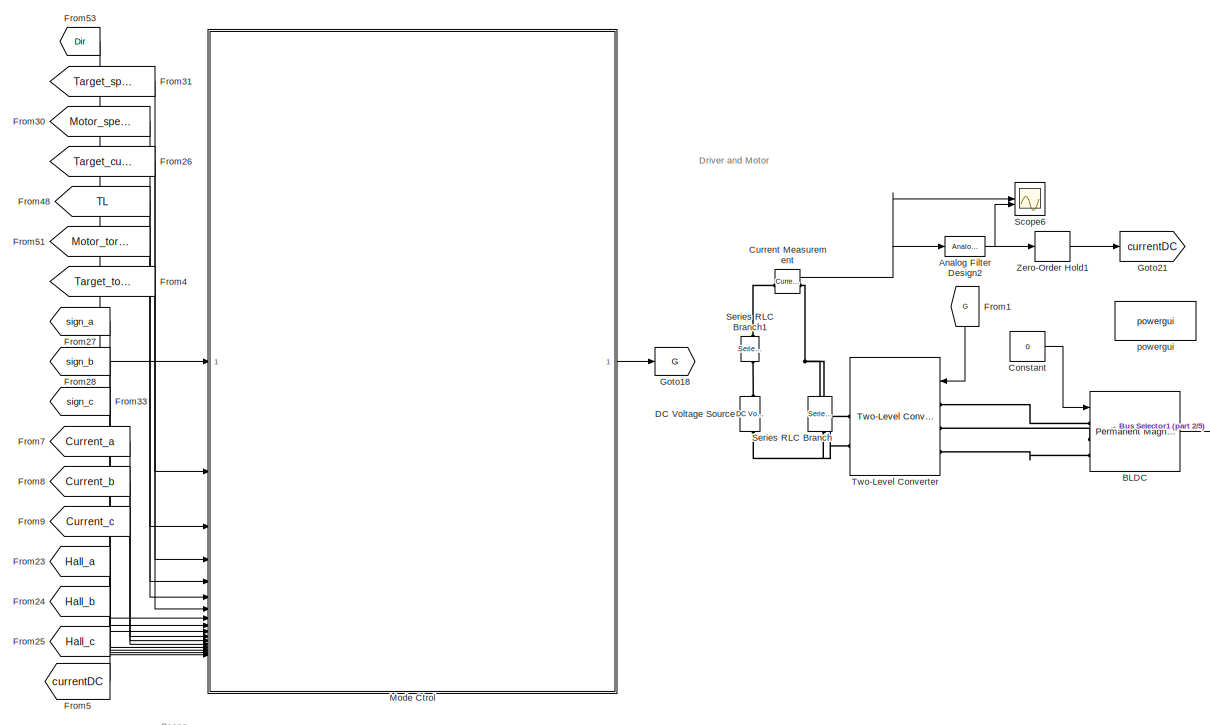
[diagram: root canvas - part 1/5, top center region]
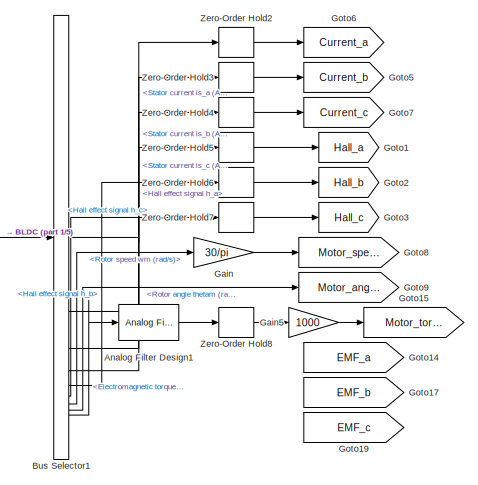
[diagram: root canvas - part 2/5, top right region]
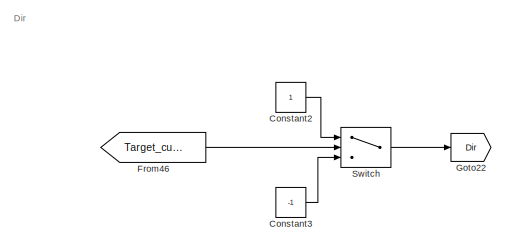
[diagram: root canvas - part 3/5, top left region]
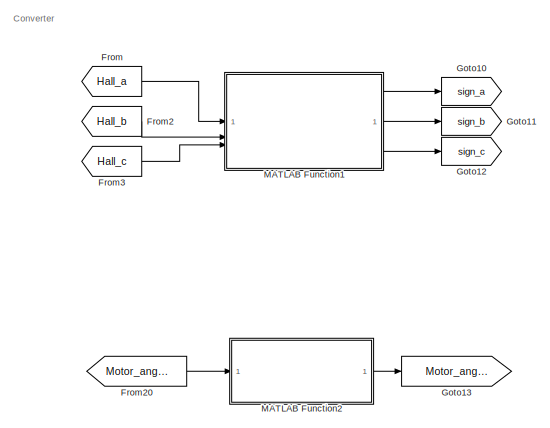
[diagram: root canvas - part 4/5, middle right region]
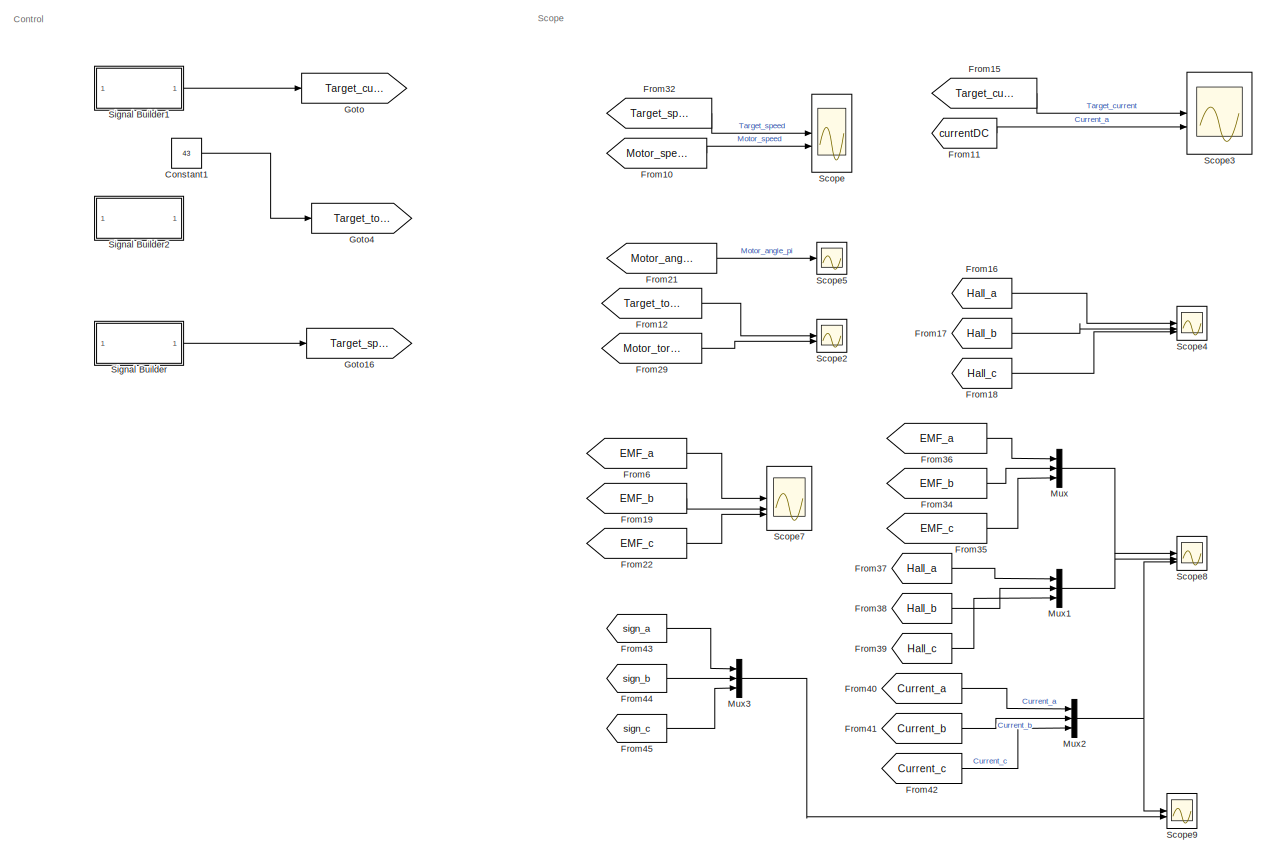
[diagram: root canvas - part 5/5, bottom left region]
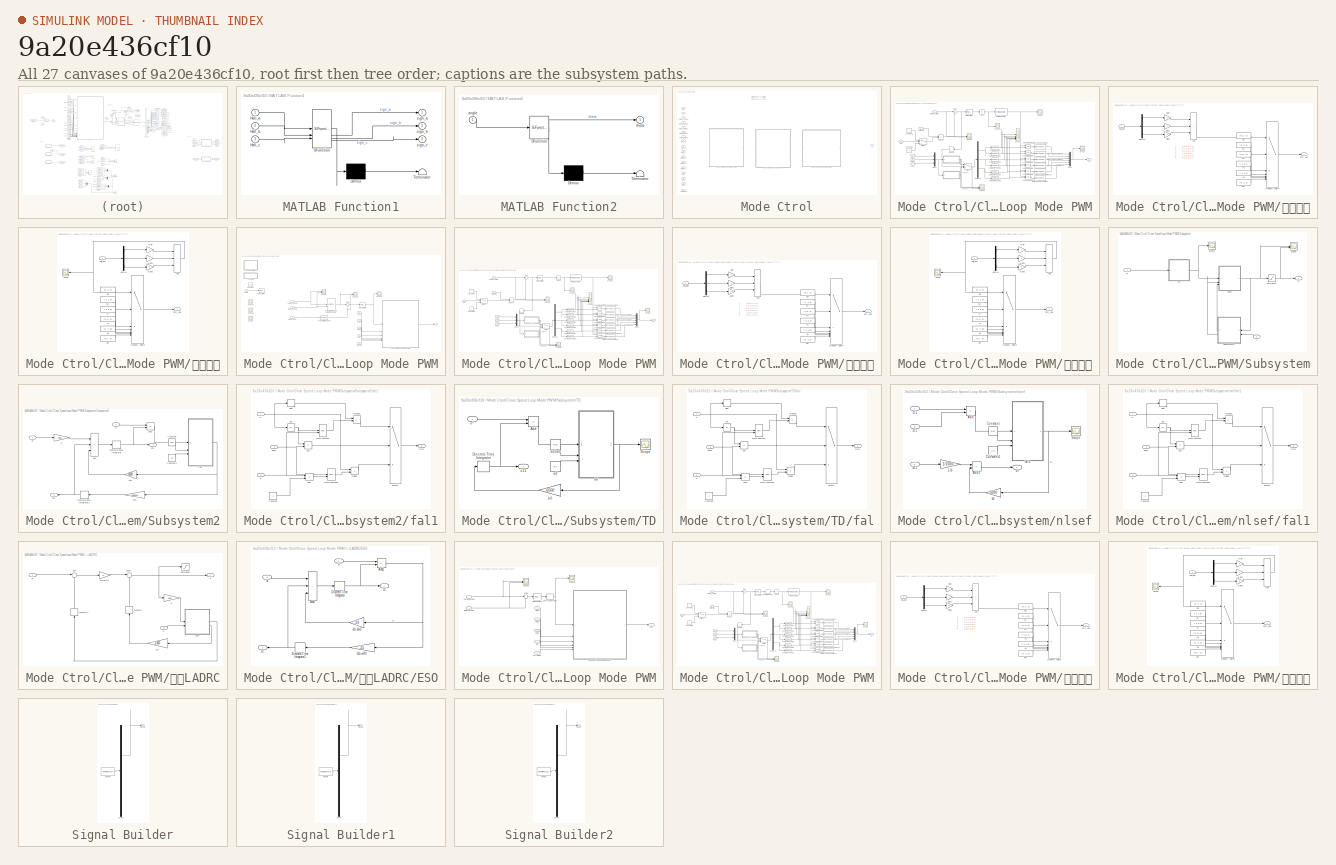
[diagram: thumbnail index - all 27 canvases of the model, root first then tree order]
MODEL slx_9a20e436cf10
KIND model
CONFIG AbsTol = auto
CONFIG EnableMultiTasking = off
CONFIG FixedStep = 1e-6
CONFIG MaxStep = auto
CONFIG MinStep = auto
CONFIG RelTol = 1e-3
CONFIG SampleTimeConstraint = Unconstrained
CONFIG SolverName = ode4
CONFIG StartTime = 0.0
CONFIG StopTime = 3
WORKSPACE source: mxarray member
WORKSPACE Ctrol_Mode = 4
WORKSPACE Current_Control_Mode = 2
WORKSPACE Current_PID_Upper_Limit = 1
WORKSPACE PWM_Period = 0.0001
WORKSPACE Speed_I = 10
WORKSPACE Speed_P = 10
WORKSPACE Speed_PID_Upper_Limit = 0.02
WORKSPACE Ts_time = 1e-06
WORKSPACE current_I = 10
WORKSPACE current_P = 100
WORKSPACE x20Khz1 = 5e-05
BLOCK [Reference] Analog Filter Design1  REF=dsparch4/Analog
Filter Design
  SourceBlock = dsparch4/Analog\nFilter Design
  SourceType = Analog Filter Design
BLOCK [Reference] Analog Filter Design2  REF=dsparch4/Analog
Filter Design
  SourceBlock = dsparch4/Analog\nFilter Design
  SourceType = Analog Filter Design
BLOCK [Reference] BLDC  REF=spsPermanentMagnetSynchronousMachineLib/Permanent Magnet
Synchronous Machine
  SourceBlock = spsPermanentMagnetSynchronousMachineLib/Permanent Magnet\nSynchronous Machine
  SourceType = Permanent Magnet Synchronous Machine
BLOCK [BusSelector] Bus Selector1
  NameLocation = top
  OutputSignals = Stator current is_a (A),Stator current is_b (A),Stator current is_c (A),Hall effect signal h_a,Hall effect signal h_b,Hall effect signal h_c,Rotor speed wm (rad/s),Rotor angle thetam (rad),Electromagnetic torque Te (N*m)
BLOCK [Constant] Constant
  Value = 0
BLOCK [Constant] Constant1
  Value = 43
BLOCK [Constant] Constant2
BLOCK [Constant] Constant3
  Value = -1
BLOCK [Reference] Current Measurement  REF=spsCurrentMeasurementLib/Current Measurement
  LibrarySourceBlock = sps_lib/Sensors and Measurements/Current Measurement
  SourceBlock = spsCurrentMeasurementLib/Current Measurement
  SourceType = Current Measurement
  UserDataPersistent = on
BLOCK [Reference] DC Voltage Source  REF=spsDCVoltageSourceLib/DC Voltage Source
  SourceBlock = spsDCVoltageSourceLib/DC Voltage Source
  SourceType = DC Voltage Source
BLOCK [From] From
  GotoTag = Hall_a
BLOCK [From] From1
  GotoTag = G
  NameLocation = left
BLOCK [From] From10
  GotoTag = Motor_speed
BLOCK [From] From11
  GotoTag = currentDC
BLOCK [From] From12
  GotoTag = Target_torque
BLOCK [From] From15
  GotoTag = Target_current
BLOCK [From] From16
  GotoTag = Hall_a
BLOCK [From] From17
  GotoTag = Hall_b
BLOCK [From] From18
  GotoTag = Hall_c
BLOCK [From] From19
  GotoTag = EMF_b
BLOCK [From] From2
  GotoTag = Hall_b
BLOCK [From] From20
  GotoTag = Motor_angle
BLOCK [From] From21
  GotoTag = Motor_angle_pi
BLOCK [From] From22
  GotoTag = EMF_c
BLOCK [From] From23
  GotoTag = Hall_a
BLOCK [From] From24
  GotoTag = Hall_b
BLOCK [From] From25
  GotoTag = Hall_c
BLOCK [From] From26
  GotoTag = Target_current
BLOCK [From] From27
  GotoTag = sign_a
BLOCK [From] From28
  GotoTag = sign_b
BLOCK [From] From29
  GotoTag = Motor_torque
BLOCK [From] From3
  GotoTag = Hall_c
BLOCK [From] From30
  GotoTag = Motor_speed
BLOCK [From] From31
  GotoTag = Target_speed
BLOCK [From] From32
  GotoTag = Target_speed
BLOCK [From] From33
  GotoTag = sign_c
BLOCK [From] From34
  GotoTag = EMF_b
BLOCK [From] From35
  GotoTag = EMF_c
BLOCK [From] From36
  GotoTag = EMF_a
BLOCK [From] From37
  GotoTag = Hall_a
BLOCK [From] From38
  GotoTag = Hall_b
BLOCK [From] From39
  GotoTag = Hall_c
BLOCK [From] From4
  GotoTag = Target_torque
BLOCK [From] From40
  GotoTag = Current_a
BLOCK [From] From41
  GotoTag = Current_b
BLOCK [From] From42
  GotoTag = Current_c
BLOCK [From] From43
  GotoTag = sign_a
BLOCK [From] From44
  GotoTag = sign_b
BLOCK [From] From45
  GotoTag = sign_c
BLOCK [From] From46
  GotoTag = Target_current
BLOCK [From] From48
  GotoTag = TL
BLOCK [From] From5
  GotoTag = currentDC
BLOCK [From] From51
  GotoTag = Motor_torque
BLOCK [From] From53
  GotoTag = Dir
BLOCK [From] From6
  GotoTag = EMF_a
BLOCK [From] From7
  GotoTag = Current_a
BLOCK [From] From8
  GotoTag = Current_b
BLOCK [From] From9
  GotoTag = Current_c
BLOCK [Gain] Gain
  Gain = 30/pi
BLOCK [Gain] Gain5
  Gain = 1000
BLOCK [Goto] Goto
  GotoTag = Target_current
BLOCK [Goto] Goto1
  GotoTag = Hall_a
BLOCK [Goto] Goto10
  GotoTag = sign_a
  NameLocation = top
BLOCK [Goto] Goto11
  GotoTag = sign_b
  NameLocation = top
BLOCK [Goto] Goto12
  GotoTag = sign_c
  NameLocation = top
BLOCK [Goto] Goto13
  GotoTag = Motor_angle_pi
BLOCK [Goto] Goto14
  GotoTag = EMF_a
BLOCK [Goto] Goto15
  GotoTag = Motor_torque
BLOCK [Goto] Goto16
  GotoTag = Target_speed
BLOCK [Goto] Goto17
  GotoTag = EMF_b
BLOCK [Goto] Goto18
  GotoTag = G
  NameLocation = top
BLOCK [Goto] Goto19
  GotoTag = EMF_c
BLOCK [Goto] Goto2
  GotoTag = Hall_b
BLOCK [Goto] Goto21
  GotoTag = currentDC
BLOCK [Goto] Goto22
  GotoTag = Dir
  NameLocation = top
BLOCK [Goto] Goto3
  GotoTag = Hall_c
BLOCK [Goto] Goto4
  GotoTag = Target_torque
BLOCK [Goto] Goto5
  GotoTag = Current_b
BLOCK [Goto] Goto6
  GotoTag = Current_a
BLOCK [Goto] Goto7
  GotoTag = Current_c
BLOCK [Goto] Goto8
  GotoTag = Motor_speed
BLOCK [Goto] Goto9
  GotoTag = Motor_angle
BLOCK [SubSystem] MATLAB Function1
  ErrorFcn = Stateflow.Translate.translate
  LibrarySourceBlock = simulink/User-Defined\nFunctions/MATLAB Function
  PermitHierarchicalResolution = ExplicitOnly
  SFBlockType = MATLAB Function
  TreatAsAtomicUnit = on
BLOCK [Demux] MATLAB Function1/ Demux 
  Outputs = 1
BLOCK [S-Function] MATLAB Function1/ SFunction 
  EnableBusSupport = on
  FunctionName = sf_sfun
  PortCounts = [3 4]
  SFcnIsStateOwnerBlock = off
  SFunctionDeploymentMode = off
  Tag = Stateflow S-Function 2
BLOCK [Terminator] MATLAB Function1/ Terminator 
BLOCK [Inport] MATLAB Function1/Hall_a
BLOCK [Inport] MATLAB Function1/Hall_b
  Port = 2
BLOCK [Inport] MATLAB Function1/Hall_c
  Port = 3
BLOCK [Outport] MATLAB Function1/sign_a
BLOCK [Outport] MATLAB Function1/sign_b
  Port = 2
BLOCK [Outport] MATLAB Function1/sign_c
  Port = 3
BLOCK [SubSystem] MATLAB Function2
  ErrorFcn = Stateflow.Translate.translate
  PermitHierarchicalResolution = ExplicitOnly
  SFBlockType = MATLAB Function
  TreatAsAtomicUnit = on
BLOCK [Demux] MATLAB Function2/ Demux 
  Outputs = 1
BLOCK [S-Function] MATLAB Function2/ SFunction 
  EnableBusSupport = on
  FunctionName = sf_sfun
  PortCounts = [1 2]
  SFcnIsStateOwnerBlock = off
  SFunctionDeploymentMode = off
  Tag = Stateflow S-Function 1
BLOCK [Terminator] MATLAB Function2/ Terminator 
BLOCK [Inport] MATLAB Function2/angle
BLOCK [Outport] MATLAB Function2/theta
BLOCK [SubSystem] Mode Ctrol
  Variant = on
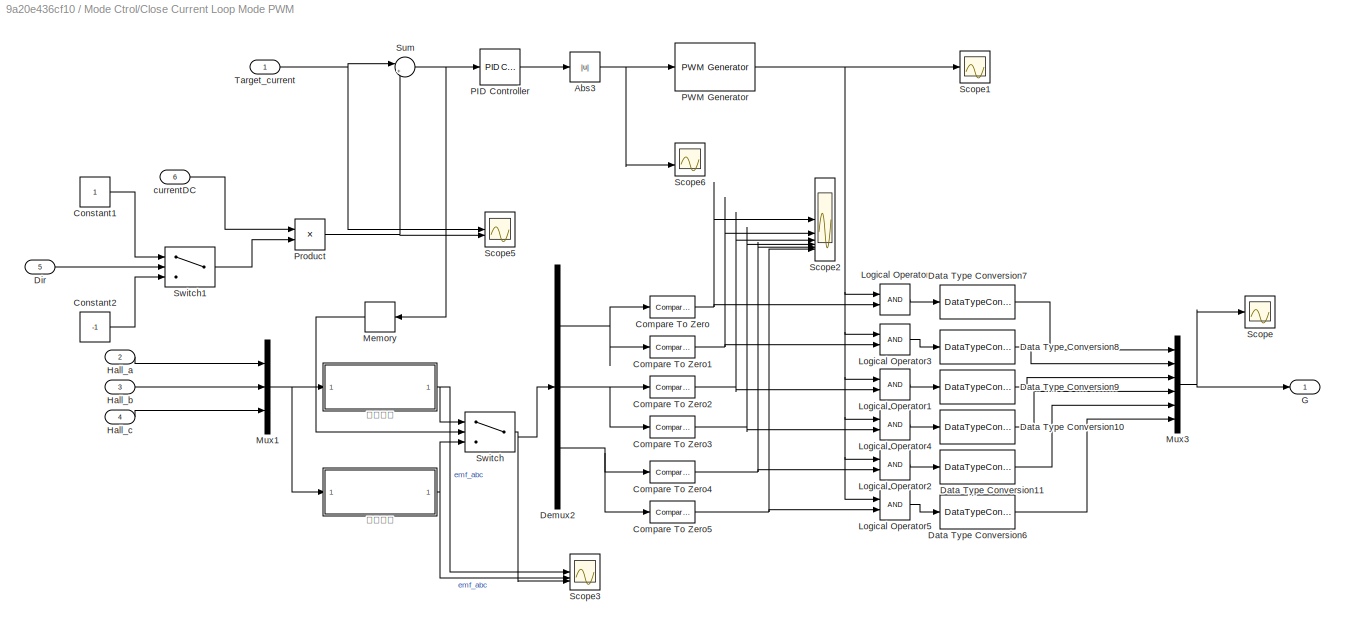
BLOCK [SubSystem] Mode Ctrol/Close Current Loop Mode PWM
  TreatAsAtomicUnit = on
  VariantControl = Ctrol_Mode==5
BLOCK [Abs] Mode Ctrol/Close Current Loop Mode PWM/Abs3
  SaturateOnIntegerOverflow = off
BLOCK [Reference] Mode Ctrol/Close Current Loop Mode PWM/Compare To Zero  REF=simulink/Logic and Bit
Operations/Compare
To Zero
  SourceBlock = simulink/Logic and Bit\nOperations/Compare\nTo Zero
  SourceType = Compare To Zero
BLOCK [Reference] Mode Ctrol/Close Current Loop Mode PWM/Compare To Zero1  REF=simulink/Logic and Bit
Operations/Compare
To Zero
  SourceBlock = simulink/Logic and Bit\nOperations/Compare\nTo Zero
  SourceType = Compare To Zero
BLOCK [Reference] Mode Ctrol/Close Current Loop Mode PWM/Compare To Zero2  REF=simulink/Logic and Bit
Operations/Compare
To Zero
  SourceBlock = simulink/Logic and Bit\nOperations/Compare\nTo Zero
  SourceType = Compare To Zero
BLOCK [Reference] Mode Ctrol/Close Current Loop Mode PWM/Compare To Zero3  REF=simulink/Logic and Bit
Operations/Compare
To Zero
  SourceBlock = simulink/Logic and Bit\nOperations/Compare\nTo Zero
  SourceType = Compare To Zero
BLOCK [Reference] Mode Ctrol/Close Current Loop Mode PWM/Compare To Zero4  REF=simulink/Logic and Bit
Operations/Compare
To Zero
  SourceBlock = simulink/Logic and Bit\nOperations/Compare\nTo Zero
  SourceType = Compare To Zero
BLOCK [Reference] Mode Ctrol/Close Current Loop Mode PWM/Compare To Zero5  REF=simulink/Logic and Bit
Operations/Compare
To Zero
  SourceBlock = simulink/Logic and Bit\nOperations/Compare\nTo Zero
  SourceType = Compare To Zero
BLOCK [Constant] Mode Ctrol/Close Current Loop Mode PWM/Constant1
BLOCK [Constant] Mode Ctrol/Close Current Loop Mode PWM/Constant2
  Value = -1
BLOCK [DataTypeConversion] Mode Ctrol/Close Current Loop Mode PWM/Data Type Conversion10
  RndMeth = Floor
  SaturateOnIntegerOverflow = off
BLOCK [DataTypeConversion] Mode Ctrol/Close Current Loop Mode PWM/Data Type Conversion11
  RndMeth = Floor
  SaturateOnIntegerOverflow = off
BLOCK [DataTypeConversion] Mode Ctrol/Close Current Loop Mode PWM/Data Type Conversion6
  RndMeth = Floor
  SaturateOnIntegerOverflow = off
BLOCK [DataTypeConversion] Mode Ctrol/Close Current Loop Mode PWM/Data Type Conversion7
  RndMeth = Floor
  SaturateOnIntegerOverflow = off
BLOCK [DataTypeConversion] Mode Ctrol/Close Current Loop Mode PWM/Data Type Conversion8
  RndMeth = Floor
  SaturateOnIntegerOverflow = off
BLOCK [DataTypeConversion] Mode Ctrol/Close Current Loop Mode PWM/Data Type Conversion9
  RndMeth = Floor
  SaturateOnIntegerOverflow = off
BLOCK [Demux] Mode Ctrol/Close Current Loop Mode PWM/Demux2
  Outputs = 3
BLOCK [Inport] Mode Ctrol/Close Current Loop Mode PWM/Dir
  Port = 5
BLOCK [Outport] Mode Ctrol/Close Current Loop Mode PWM/G
BLOCK [Inport] Mode Ctrol/Close Current Loop Mode PWM/Hall_a
  Port = 2
BLOCK [Inport] Mode Ctrol/Close Current Loop Mode PWM/Hall_b
  Port = 3
BLOCK [Inport] Mode Ctrol/Close Current Loop Mode PWM/Hall_c
  Port = 4
BLOCK [Logic] Mode Ctrol/Close Current Loop Mode PWM/Logical Operator
  AllPortsSameDT = off
  OutDataTypeStr = boolean
BLOCK [Logic] Mode Ctrol/Close Current Loop Mode PWM/Logical Operator1
  AllPortsSameDT = off
  OutDataTypeStr = boolean
BLOCK [Logic] Mode Ctrol/Close Current Loop Mode PWM/Logical Operator2
  AllPortsSameDT = off
  OutDataTypeStr = boolean
BLOCK [Logic] Mode Ctrol/Close Current Loop Mode PWM/Logical Operator3
  AllPortsSameDT = off
  OutDataTypeStr = boolean
BLOCK [Logic] Mode Ctrol/Close Current Loop Mode PWM/Logical Operator4
  AllPortsSameDT = off
  OutDataTypeStr = boolean
BLOCK [Logic] Mode Ctrol/Close Current Loop Mode PWM/Logical Operator5
  AllPortsSameDT = off
  OutDataTypeStr = boolean
BLOCK [Memory] Mode Ctrol/Close Current Loop Mode PWM/Memory
  NameLocation = top
BLOCK [Mux] Mode Ctrol/Close Current Loop Mode PWM/Mux1
  DisplayOption = bar
  Inputs = 3
BLOCK [Mux] Mode Ctrol/Close Current Loop Mode PWM/Mux3
  DisplayOption = bar
  Inputs = 6
BLOCK [Reference] Mode Ctrol/Close Current Loop Mode PWM/PID Controller  REF=slpidlib/PID Controller
  LibrarySourceBlock = simulink/Continuous/PID Controller
  SourceBlock = slpidlib/PID Controller
  SourceType = PID 1dof
BLOCK [Reference] Mode Ctrol/Close Current Loop Mode PWM/PWM Generator  REF=eePwmGenerator/PWM Generator
  LibrarySourceBlock = ee_sl_lib/Pulse Width\nModulation/PWM Generator
  SourceBlock = eePwmGenerator/PWM Generator
  SourceType = PWM Generator
BLOCK [Product] Mode Ctrol/Close Current Loop Mode PWM/Product
BLOCK [Scope] Mode Ctrol/Close Current Loop Mode PWM/Scope
  Floating = off
  NumInputPorts = 1
  ScopeSpecificationString = Simulink.scopes.TimeScopeBlockCfg('CurrentConfiguration', extmgr.ConfigurationSet(extmgr.Configuration('Core','General UI',true),extmgr.Configuration('Core','Source UI',true),extmgr.Configuration('Sources','WiredSimulink',true,'DataLoggingVariableName','ScopeData1'),extmgr.Configuration('Visuals','Time Domain',true,'SerializedDisplays',{struct('MinYLimReal','-0.125','MaxYLimReal','1.125','YLabelRe...<+1697ch>
BLOCK [Scope] Mode Ctrol/Close Current Loop Mode PWM/Scope1
  Floating = off
  NumInputPorts = 1
  ScopeSpecificationString = Simulink.scopes.TimeScopeBlockCfg('CurrentConfiguration', extmgr.ConfigurationSet(extmgr.Configuration('Core','General UI',true),extmgr.Configuration('Core','Source UI',true),extmgr.Configuration('Sources','WiredSimulink',true,'DataLoggingVariableName','ScopeData2'),extmgr.Configuration('Visuals','Time Domain',true,'SerializedDisplays',{struct('MinYLimReal','0.9','MaxYLimReal','1.1','YLabelReal','...<+1411ch>
BLOCK [Scope] Mode Ctrol/Close Current Loop Mode PWM/Scope2
  Floating = off
  NumInputPorts = 6
  ScopeSpecificationString = Simulink.scopes.TimeScopeBlockCfg('CurrentConfiguration', extmgr.ConfigurationSet(extmgr.Configuration('Core','General UI',true),extmgr.Configuration('Core','Source UI',true),extmgr.Configuration('Sources','WiredSimulink',true,'DataLoggingVariableName','ScopeData3'),extmgr.Configuration('Visuals','Time Domain',true,'SerializedDisplays',{struct('MinYLimReal','-0.04789','MaxYLimReal','1.03549','YLab...<+3848ch>
BLOCK [Scope] Mode Ctrol/Close Current Loop Mode PWM/Scope3
  Floating = off
  NumInputPorts = 3
  ScopeSpecificationString = Simulink.scopes.TimeScopeBlockCfg('CurrentConfiguration', extmgr.ConfigurationSet(extmgr.Configuration('Core','General UI',true),extmgr.Configuration('Core','Source UI',true),extmgr.Configuration('Sources','WiredSimulink',true,'DataLoggingVariableName','ScopeData4'),extmgr.Configuration('Visuals','Time Domain',true,'SerializedDisplays',{struct('MinYLimReal','-1.25','MaxYLimReal','1.25','YLabelReal...<+3161ch>
BLOCK [Scope] Mode Ctrol/Close Current Loop Mode PWM/Scope5
  Floating = off
  NumInputPorts = 2
  ScopeSpecificationString = Simulink.scopes.TimeScopeBlockCfg('CurrentConfiguration', extmgr.ConfigurationSet(extmgr.Configuration('Core','General UI',true,'FigureColor',[1 1 1]),extmgr.Configuration('Core','Source UI',true),extmgr.Configuration('Sources','WiredSimulink',true,'DataLoggingVariableName','ScopeData5'),extmgr.Configuration('Visuals','Time Domain',true,'SerializedDisplays',{struct('MinYLimReal','-0.125','MaxYLimR...<+2529ch>
BLOCK [Scope] Mode Ctrol/Close Current Loop Mode PWM/Scope6
  Floating = off
  NumInputPorts = 2
  ScopeSpecificationString = Simulink.scopes.TimeScopeBlockCfg('CurrentConfiguration', extmgr.ConfigurationSet(extmgr.Configuration('Core','General UI',true),extmgr.Configuration('Core','Source UI',true),extmgr.Configuration('Sources','WiredSimulink',true,'DataLoggingVariableName','ScopeData6'),extmgr.Configuration('Visuals','Time Domain',true,'SerializedDisplays',{struct('MinYLimReal','-2.86193','MaxYLimReal','7.05201','YLab...<+1452ch>
BLOCK [Sum] Mode Ctrol/Close Current Loop Mode PWM/Sum
  Inputs = |+-
BLOCK [Switch] Mode Ctrol/Close Current Loop Mode PWM/Switch
  InputSameDT = off
  SaturateOnIntegerOverflow = off
BLOCK [Switch] Mode Ctrol/Close Current Loop Mode PWM/Switch1
  InputSameDT = off
  SaturateOnIntegerOverflow = off
BLOCK [Inport] Mode Ctrol/Close Current Loop Mode PWM/Target_current
BLOCK [Inport] Mode Ctrol/Close Current Loop Mode PWM/currentDC
  Port = 6
BLOCK [SubSystem] Mode Ctrol/Close Current Loop Mode PWM/反转逻辑
BLOCK [Constant] Mode Ctrol/Close Current Loop Mode PWM/反转逻辑/AB
  Value = [-1 1 0]
BLOCK [Constant] Mode Ctrol/Close Current Loop Mode PWM/反转逻辑/AC
  Value = [-1 0 1]
BLOCK [Sum] Mode Ctrol/Close Current Loop Mode PWM/反转逻辑/Add
  IconShape = rectangular
  Inputs = +++
BLOCK [Constant] Mode Ctrol/Close Current Loop Mode PWM/反转逻辑/BA
  Value = [1 -1 0]
BLOCK [Constant] Mode Ctrol/Close Current Loop Mode PWM/反转逻辑/BC
  Value = [0 -1 1]
BLOCK [Constant] Mode Ctrol/Close Current Loop Mode PWM/反转逻辑/CA
  Value = [1 0 -1]
BLOCK [Constant] Mode Ctrol/Close Current Loop Mode PWM/反转逻辑/CB
  Value = [0 1 -1]
BLOCK [Demux] Mode Ctrol/Close Current Loop Mode PWM/反转逻辑/Demux
  Outputs = 3
BLOCK [Gain] Mode Ctrol/Close Current Loop Mode PWM/反转逻辑/Gain
  Gain = 4
BLOCK [Gain] Mode Ctrol/Close Current Loop Mode PWM/反转逻辑/Gain1
  Gain = 2
BLOCK [Gain] Mode Ctrol/Close Current Loop Mode PWM/反转逻辑/Gain2
BLOCK [MultiPortSwitch] Mode Ctrol/Close Current Loop Mode PWM/反转逻辑/Multiport Switch
  DiagnosticForDefault = None
  InputSameDT = off
  Inputs = 6
  SaturateOnIntegerOverflow = off
BLOCK [Outport] Mode Ctrol/Close Current Loop Mode PWM/反转逻辑/emf_abc
BLOCK [Inport] Mode Ctrol/Close Current Loop Mode PWM/反转逻辑/hall_abc
BLOCK [SubSystem] Mode Ctrol/Close Current Loop Mode PWM/正转逻辑
  NameLocation = top
BLOCK [Constant] Mode Ctrol/Close Current Loop Mode PWM/正转逻辑/AB
  Value = [1 -1 0]
BLOCK [Constant] Mode Ctrol/Close Current Loop Mode PWM/正转逻辑/AC
  Value = [1 0 -1]
BLOCK [Sum] Mode Ctrol/Close Current Loop Mode PWM/正转逻辑/Add
  IconShape = rectangular
  Inputs = +++
BLOCK [Constant] Mode Ctrol/Close Current Loop Mode PWM/正转逻辑/BA
  Value = [-1 1 0]
BLOCK [Constant] Mode Ctrol/Close Current Loop Mode PWM/正转逻辑/BC
  Value = [0 1 -1]
BLOCK [Constant] Mode Ctrol/Close Current Loop Mode PWM/正转逻辑/CA
  Value = [-1 0 1]
BLOCK [Constant] Mode Ctrol/Close Current Loop Mode PWM/正转逻辑/CB
  Value = [0 -1 1]
BLOCK [Demux] Mode Ctrol/Close Current Loop Mode PWM/正转逻辑/Demux
  Outputs = 3
BLOCK [Gain] Mode Ctrol/Close Current Loop Mode PWM/正转逻辑/Gain
  Gain = 4
BLOCK [Gain] Mode Ctrol/Close Current Loop Mode PWM/正转逻辑/Gain1
  Gain = 2
BLOCK [Gain] Mode Ctrol/Close Current Loop Mode PWM/正转逻辑/Gain2
BLOCK [MultiPortSwitch] Mode Ctrol/Close Current Loop Mode PWM/正转逻辑/Multiport Switch
  DiagnosticForDefault = None
  InputSameDT = off
  Inputs = 6
  SaturateOnIntegerOverflow = off
BLOCK [Scope] Mode Ctrol/Close Current Loop Mode PWM/正转逻辑/Scope
  Floating = off
  NameLocation = top
  NumInputPorts = 1
  ScopeSpecificationString = Simulink.scopes.TimeScopeBlockCfg('CurrentConfiguration', extmgr.ConfigurationSet(extmgr.Configuration('Core','General UI',true),extmgr.Configuration('Core','Source UI',true),extmgr.Configuration('Sources','WiredSimulink',true,'DataLoggingVariableName','ScopeData5'),extmgr.Configuration('Visuals','Time Domain',true,'SerializedDisplays',{struct('MinYLimReal','0.75967','MaxYLimReal','6.20629','YLabe...<+1418ch>  <repeated x3 — deduplicated; at blocks: Scope>
BLOCK [Outport] Mode Ctrol/Close Current Loop Mode PWM/正转逻辑/emf_abc
BLOCK [Inport] Mode Ctrol/Close Current Loop Mode PWM/正转逻辑/hall_abc
BLOCK [SubSystem] Mode Ctrol/Close Speed Loop Mode PWM
  TreatAsAtomicUnit = on
  VariantControl = Ctrol_Mode==6
BLOCK [Reference] Mode Ctrol/Close Speed Loop Mode PWM/Active Disturbance Rejection Control  REF=slctrlblks/Active Disturbance Rejection Control
  SourceBlock = slctrlblks/Active Disturbance Rejection Control
  SourceType = Active Disturbance Rejection Control (ADRC)
BLOCK [Reference] Mode Ctrol/Close Speed Loop Mode PWM/Analog Filter Design2  REF=dsparch4/Analog
Filter Design
  SourceBlock = dsparch4/Analog\nFilter Design
  SourceType = Analog Filter Design
BLOCK [SubSystem] Mode Ctrol/Close Speed Loop Mode PWM/Close Current Loop Mode PWM
  TreatAsAtomicUnit = on
  VariantControl = Ctrol_Mode==5
BLOCK [Abs] Mode Ctrol/Close Speed Loop Mode PWM/Close Current Loop Mode PWM/Abs3
  SaturateOnIntegerOverflow = off
BLOCK [Reference] Mode Ctrol/Close Speed Loop Mode PWM/Close Current Loop Mode PWM/Compare To Zero  REF=simulink/Logic and Bit
Operations/Compare
To Zero
  SourceBlock = simulink/Logic and Bit\nOperations/Compare\nTo Zero
  SourceType = Compare To Zero
BLOCK [Reference] Mode Ctrol/Close Speed Loop Mode PWM/Close Current Loop Mode PWM/Compare To Zero1  REF=simulink/Logic and Bit
Operations/Compare
To Zero
  SourceBlock = simulink/Logic and Bit\nOperations/Compare\nTo Zero
  SourceType = Compare To Zero
BLOCK [Reference] Mode Ctrol/Close Speed Loop Mode PWM/Close Current Loop Mode PWM/Compare To Zero2  REF=simulink/Logic and Bit
Operations/Compare
To Zero
  SourceBlock = simulink/Logic and Bit\nOperations/Compare\nTo Zero
  SourceType = Compare To Zero
BLOCK [Reference] Mode Ctrol/Close Speed Loop Mode PWM/Close Current Loop Mode PWM/Compare To Zero3  REF=simulink/Logic and Bit
Operations/Compare
To Zero
  SourceBlock = simulink/Logic and Bit\nOperations/Compare\nTo Zero
  SourceType = Compare To Zero
BLOCK [Reference] Mode Ctrol/Close Speed Loop Mode PWM/Close Current Loop Mode PWM/Compare To Zero4  REF=simulink/Logic and Bit
Operations/Compare
To Zero
  SourceBlock = simulink/Logic and Bit\nOperations/Compare\nTo Zero
  SourceType = Compare To Zero
BLOCK [Reference] Mode Ctrol/Close Speed Loop Mode PWM/Close Current Loop Mode PWM/Compare To Zero5  REF=simulink/Logic and Bit
Operations/Compare
To Zero
  SourceBlock = simulink/Logic and Bit\nOperations/Compare\nTo Zero
  SourceType = Compare To Zero
BLOCK [Constant] Mode Ctrol/Close Speed Loop Mode PWM/Close Current Loop Mode PWM/Constant1
BLOCK [Constant] Mode Ctrol/Close Speed Loop Mode PWM/Close Current Loop Mode PWM/Constant2
  Value = -1
BLOCK [DataTypeConversion] Mode Ctrol/Close Speed Loop Mode PWM/Close Current Loop Mode PWM/Data Type Conversion10
  RndMeth = Floor
  SaturateOnIntegerOverflow = off
BLOCK [DataTypeConversion] Mode Ctrol/Close Speed Loop Mode PWM/Close Current Loop Mode PWM/Data Type Conversion11
  RndMeth = Floor
  SaturateOnIntegerOverflow = off
BLOCK [DataTypeConversion] Mode Ctrol/Close Speed Loop Mode PWM/Close Current Loop Mode PWM/Data Type Conversion6
  RndMeth = Floor
  SaturateOnIntegerOverflow = off
BLOCK [DataTypeConversion] Mode Ctrol/Close Speed Loop Mode PWM/Close Current Loop Mode PWM/Data Type Conversion7
  RndMeth = Floor
  SaturateOnIntegerOverflow = off
BLOCK [DataTypeConversion] Mode Ctrol/Close Speed Loop Mode PWM/Close Current Loop Mode PWM/Data Type Conversion8
  RndMeth = Floor
  SaturateOnIntegerOverflow = off
BLOCK [DataTypeConversion] Mode Ctrol/Close Speed Loop Mode PWM/Close Current Loop Mode PWM/Data Type Conversion9
  RndMeth = Floor
  SaturateOnIntegerOverflow = off
BLOCK [Demux] Mode Ctrol/Close Speed Loop Mode PWM/Close Current Loop Mode PWM/Demux2
  Outputs = 3
BLOCK [Inport] Mode Ctrol/Close Speed Loop Mode PWM/Close Current Loop Mode PWM/Dir
  Port = 5
BLOCK [Outport] Mode Ctrol/Close Speed Loop Mode PWM/Close Current Loop Mode PWM/G
BLOCK [Inport] Mode Ctrol/Close Speed Loop Mode PWM/Close Current Loop Mode PWM/Hall_a
  Port = 2
BLOCK [Inport] Mode Ctrol/Close Speed Loop Mode PWM/Close Current Loop Mode PWM/Hall_b
  Port = 3
BLOCK [Inport] Mode Ctrol/Close Speed Loop Mode PWM/Close Current Loop Mode PWM/Hall_c
  Port = 4
BLOCK [Logic] Mode Ctrol/Close Speed Loop Mode PWM/Close Current Loop Mode PWM/Logical Operator
  AllPortsSameDT = off
  OutDataTypeStr = boolean
BLOCK [Logic] Mode Ctrol/Close Speed Loop Mode PWM/Close Current Loop Mode PWM/Logical Operator1
  AllPortsSameDT = off
  OutDataTypeStr = boolean
BLOCK [Logic] Mode Ctrol/Close Speed Loop Mode PWM/Close Current Loop Mode PWM/Logical Operator2
  AllPortsSameDT = off
  OutDataTypeStr = boolean
BLOCK [Logic] Mode Ctrol/Close Speed Loop Mode PWM/Close Current Loop Mode PWM/Logical Operator3
  AllPortsSameDT = off
  OutDataTypeStr = boolean
BLOCK [Logic] Mode Ctrol/Close Speed Loop Mode PWM/Close Current Loop Mode PWM/Logical Operator4
  AllPortsSameDT = off
  OutDataTypeStr = boolean
BLOCK [Logic] Mode Ctrol/Close Speed Loop Mode PWM/Close Current Loop Mode PWM/Logical Operator5
  AllPortsSameDT = off
  OutDataTypeStr = boolean
BLOCK [Memory] Mode Ctrol/Close Speed Loop Mode PWM/Close Current Loop Mode PWM/Memory
  NameLocation = top
BLOCK [Mux] Mode Ctrol/Close Speed Loop Mode PWM/Close Current Loop Mode PWM/Mux1
  DisplayOption = bar
  Inputs = 3
BLOCK [Mux] Mode Ctrol/Close Speed Loop Mode PWM/Close Current Loop Mode PWM/Mux3
  DisplayOption = bar
  Inputs = 6
BLOCK [Reference] Mode Ctrol/Close Speed Loop Mode PWM/Close Current Loop Mode PWM/PID Controller  REF=slpidlib/PID Controller
  LibrarySourceBlock = simulink/Continuous/PID Controller
  SourceBlock = slpidlib/PID Controller
  SourceType = PID 1dof
BLOCK [Reference] Mode Ctrol/Close Speed Loop Mode PWM/Close Current Loop Mode PWM/PWM Generator  REF=eePwmGenerator/PWM Generator
  LibrarySourceBlock = ee_sl_lib/Pulse Width\nModulation/PWM Generator
  SourceBlock = eePwmGenerator/PWM Generator
  SourceType = PWM Generator
BLOCK [Product] Mode Ctrol/Close Speed Loop Mode PWM/Close Current Loop Mode PWM/Product
BLOCK [Scope] Mode Ctrol/Close Speed Loop Mode PWM/Close Current Loop Mode PWM/Scope
  Floating = off
  NumInputPorts = 1
  ScopeSpecificationString = Simulink.scopes.TimeScopeBlockCfg('CurrentConfiguration', extmgr.ConfigurationSet(extmgr.Configuration('Core','General UI',true),extmgr.Configuration('Core','Source UI',true),extmgr.Configuration('Sources','WiredSimulink',true,'DataLoggingVariableName','ScopeData7'),extmgr.Configuration('Visuals','Time Domain',true,'SerializedDisplays',{struct('MinYLimReal','-0.125','MaxYLimReal','1.125','YLabelRe...<+1697ch>
BLOCK [Scope] Mode Ctrol/Close Speed Loop Mode PWM/Close Current Loop Mode PWM/Scope1
  Floating = off
  NumInputPorts = 1
  ScopeSpecificationString = Simulink.scopes.TimeScopeBlockCfg('CurrentConfiguration', extmgr.ConfigurationSet(extmgr.Configuration('Core','General UI',true),extmgr.Configuration('Core','Source UI',true),extmgr.Configuration('Sources','WiredSimulink',true,'DataLoggingVariableName','ScopeData8'),extmgr.Configuration('Visuals','Time Domain',true,'SerializedDisplays',{struct('MinYLimReal','0.9','MaxYLimReal','1.1','YLabelReal','...<+1411ch>
BLOCK [Scope] Mode Ctrol/Close Speed Loop Mode PWM/Close Current Loop Mode PWM/Scope2
  Floating = off
  NumInputPorts = 6
  ScopeSpecificationString = Simulink.scopes.TimeScopeBlockCfg('CurrentConfiguration', extmgr.ConfigurationSet(extmgr.Configuration('Core','General UI',true),extmgr.Configuration('Core','Source UI',true),extmgr.Configuration('Sources','WiredSimulink',true,'DataLoggingVariableName','ScopeData9'),extmgr.Configuration('Visuals','Time Domain',true,'SerializedDisplays',{struct('MinYLimReal','-0.04789','MaxYLimReal','1.03549','YLab...<+3848ch>
BLOCK [Scope] Mode Ctrol/Close Speed Loop Mode PWM/Close Current Loop Mode PWM/Scope3
  Floating = off
  NumInputPorts = 3
  ScopeSpecificationString = Simulink.scopes.TimeScopeBlockCfg('CurrentConfiguration', extmgr.ConfigurationSet(extmgr.Configuration('Core','General UI',true),extmgr.Configuration('Core','Source UI',true),extmgr.Configuration('Sources','WiredSimulink',true,'DataLoggingVariableName','ScopeData10'),extmgr.Configuration('Visuals','Time Domain',true,'SerializedDisplays',{struct('MinYLimReal','-1.25','MaxYLimReal','1.25','YLabelRea...<+3162ch>
BLOCK [Scope] Mode Ctrol/Close Speed Loop Mode PWM/Close Current Loop Mode PWM/Scope5
  Floating = off
  NumInputPorts = 2
  ScopeSpecificationString = Simulink.scopes.TimeScopeBlockCfg('CurrentConfiguration', extmgr.ConfigurationSet(extmgr.Configuration('Core','General UI',true,'FigureColor',[1 1 1]),extmgr.Configuration('Core','Source UI',true),extmgr.Configuration('Sources','WiredSimulink',true,'DataLoggingVariableName','ScopeData11'),extmgr.Configuration('Visuals','Time Domain',true,'SerializedDisplays',{struct('MinYLimReal','1.00000','MaxYLi...<+2539ch>
BLOCK [Scope] Mode Ctrol/Close Speed Loop Mode PWM/Close Current Loop Mode PWM/Scope6
  Floating = off
  NumInputPorts = 2
  ScopeSpecificationString = Simulink.scopes.TimeScopeBlockCfg('CurrentConfiguration', extmgr.ConfigurationSet(extmgr.Configuration('Core','General UI',true),extmgr.Configuration('Core','Source UI',true),extmgr.Configuration('Sources','WiredSimulink',true,'DataLoggingVariableName','ScopeData12'),extmgr.Configuration('Visuals','Time Domain',true,'SerializedDisplays',{struct('MinYLimReal','-2.86193','MaxYLimReal','7.05201','YLa...<+1453ch>
BLOCK [Sum] Mode Ctrol/Close Speed Loop Mode PWM/Close Current Loop Mode PWM/Sum
  Inputs = |+-
BLOCK [Switch] Mode Ctrol/Close Speed Loop Mode PWM/Close Current Loop Mode PWM/Switch
  InputSameDT = off
  SaturateOnIntegerOverflow = off
BLOCK [Switch] Mode Ctrol/Close Speed Loop Mode PWM/Close Current Loop Mode PWM/Switch1
  InputSameDT = off
  SaturateOnIntegerOverflow = off
BLOCK [Inport] Mode Ctrol/Close Speed Loop Mode PWM/Close Current Loop Mode PWM/Target_current
BLOCK [Inport] Mode Ctrol/Close Speed Loop Mode PWM/Close Current Loop Mode PWM/currentDC
  Port = 6
BLOCK [SubSystem] Mode Ctrol/Close Speed Loop Mode PWM/Close Current Loop Mode PWM/反转逻辑
BLOCK [Constant] Mode Ctrol/Close Speed Loop Mode PWM/Close Current Loop Mode PWM/反转逻辑/AB
  Value = [-1 1 0]
BLOCK [Constant] Mode Ctrol/Close Speed Loop Mode PWM/Close Current Loop Mode PWM/反转逻辑/AC
  Value = [-1 0 1]
BLOCK [Sum] Mode Ctrol/Close Speed Loop Mode PWM/Close Current Loop Mode PWM/反转逻辑/Add
  IconShape = rectangular
  Inputs = +++
BLOCK [Constant] Mode Ctrol/Close Speed Loop Mode PWM/Close Current Loop Mode PWM/反转逻辑/BA
  Value = [1 -1 0]
BLOCK [Constant] Mode Ctrol/Close Speed Loop Mode PWM/Close Current Loop Mode PWM/反转逻辑/BC
  Value = [0 -1 1]
BLOCK [Constant] Mode Ctrol/Close Speed Loop Mode PWM/Close Current Loop Mode PWM/反转逻辑/CA
  Value = [1 0 -1]
BLOCK [Constant] Mode Ctrol/Close Speed Loop Mode PWM/Close Current Loop Mode PWM/反转逻辑/CB
  Value = [0 1 -1]
BLOCK [Demux] Mode Ctrol/Close Speed Loop Mode PWM/Close Current Loop Mode PWM/反转逻辑/Demux
  Outputs = 3
BLOCK [Gain] Mode Ctrol/Close Speed Loop Mode PWM/Close Current Loop Mode PWM/反转逻辑/Gain
  Gain = 4
BLOCK [Gain] Mode Ctrol/Close Speed Loop Mode PWM/Close Current Loop Mode PWM/反转逻辑/Gain1
  Gain = 2
BLOCK [Gain] Mode Ctrol/Close Speed Loop Mode PWM/Close Current Loop Mode PWM/反转逻辑/Gain2
BLOCK [MultiPortSwitch] Mode Ctrol/Close Speed Loop Mode PWM/Close Current Loop Mode PWM/反转逻辑/Multiport Switch
  DiagnosticForDefault = None
  InputSameDT = off
  Inputs = 6
  SaturateOnIntegerOverflow = off
BLOCK [Outport] Mode Ctrol/Close Speed Loop Mode PWM/Close Current Loop Mode PWM/反转逻辑/emf_abc
BLOCK [Inport] Mode Ctrol/Close Speed Loop Mode PWM/Close Current Loop Mode PWM/反转逻辑/hall_abc
BLOCK [SubSystem] Mode Ctrol/Close Speed Loop Mode PWM/Close Current Loop Mode PWM/正转逻辑
  NameLocation = top
BLOCK [Constant] Mode Ctrol/Close Speed Loop Mode PWM/Close Current Loop Mode PWM/正转逻辑/AB
  Value = [1 -1 0]
BLOCK [Constant] Mode Ctrol/Close Speed Loop Mode PWM/Close Current Loop Mode PWM/正转逻辑/AC
  Value = [1 0 -1]
BLOCK [Sum] Mode Ctrol/Close Speed Loop Mode PWM/Close Current Loop Mode PWM/正转逻辑/Add
  IconShape = rectangular
  Inputs = +++
BLOCK [Constant] Mode Ctrol/Close Speed Loop Mode PWM/Close Current Loop Mode PWM/正转逻辑/BA
  Value = [-1 1 0]
BLOCK [Constant] Mode Ctrol/Close Speed Loop Mode PWM/Close Current Loop Mode PWM/正转逻辑/BC
  Value = [0 1 -1]
BLOCK [Constant] Mode Ctrol/Close Speed Loop Mode PWM/Close Current Loop Mode PWM/正转逻辑/CA
  Value = [-1 0 1]
BLOCK [Constant] Mode Ctrol/Close Speed Loop Mode PWM/Close Current Loop Mode PWM/正转逻辑/CB
  Value = [0 -1 1]
BLOCK [Demux] Mode Ctrol/Close Speed Loop Mode PWM/Close Current Loop Mode PWM/正转逻辑/Demux
  Outputs = 3
BLOCK [Gain] Mode Ctrol/Close Speed Loop Mode PWM/Close Current Loop Mode PWM/正转逻辑/Gain
  Gain = 4
BLOCK [Gain] Mode Ctrol/Close Speed Loop Mode PWM/Close Current Loop Mode PWM/正转逻辑/Gain1
  Gain = 2
BLOCK [Gain] Mode Ctrol/Close Speed Loop Mode PWM/Close Current Loop Mode PWM/正转逻辑/Gain2
BLOCK [MultiPortSwitch] Mode Ctrol/Close Speed Loop Mode PWM/Close Current Loop Mode PWM/正转逻辑/Multiport Switch
  DiagnosticForDefault = None
  InputSameDT = off
  Inputs = 6
  SaturateOnIntegerOverflow = off
BLOCK [Scope] Mode Ctrol/Close Speed Loop Mode PWM/Close Current Loop Mode PWM/正转逻辑/Scope
  Floating = off
  NameLocation = top
  NumInputPorts = 1
BLOCK [Outport] Mode Ctrol/Close Speed Loop Mode PWM/Close Current Loop Mode PWM/正转逻辑/emf_abc
BLOCK [Inport] Mode Ctrol/Close Speed Loop Mode PWM/Close Current Loop Mode PWM/正转逻辑/hall_abc
BLOCK [Constant] Mode Ctrol/Close Speed Loop Mode PWM/Constant
  Value = 1000
BLOCK [Inport] Mode Ctrol/Close Speed Loop Mode PWM/Dir
BLOCK [Outport] Mode Ctrol/Close Speed Loop Mode PWM/G
BLOCK [Inport] Mode Ctrol/Close Speed Loop Mode PWM/Hall_a
  Port = 4
BLOCK [Inport] Mode Ctrol/Close Speed Loop Mode PWM/Hall_b
  Port = 5
BLOCK [Inport] Mode Ctrol/Close Speed Loop Mode PWM/Hall_c
  Port = 6
BLOCK [Inport] Mode Ctrol/Close Speed Loop Mode PWM/Motor Torque
  Port = 7
BLOCK [Inport] Mode Ctrol/Close Speed Loop Mode PWM/Motor_speed
  Port = 3
BLOCK [Reference] Mode Ctrol/Close Speed Loop Mode PWM/PID Controller  REF=slpidlib/PID Controller
  LibrarySourceBlock = simulink/Continuous/PID Controller
  SourceBlock = slpidlib/PID Controller
  SourceType = PID 1dof
BLOCK [Reference] Mode Ctrol/Close Speed Loop Mode PWM/PID Controller1  REF=slpidlib/PID Controller
  LibrarySourceBlock = simulink/Continuous/PID Controller
  SourceBlock = slpidlib/PID Controller
  SourceType = PID 1dof
BLOCK [Scope] Mode Ctrol/Close Speed Loop Mode PWM/Scope
  Floating = off
  NumInputPorts = 1
  ScopeSpecificationString = Simulink.scopes.TimeScopeBlockCfg('CurrentConfiguration', extmgr.ConfigurationSet(extmgr.Configuration('Core','General UI',true),extmgr.Configuration('Core','Source UI',true),extmgr.Configuration('Sources','WiredSimulink',true,'DataLoggingVariableName','ScopeData1'),extmgr.Configuration('Visuals','Time Domain',true,'SerializedDisplays',{struct('MinYLimReal','-2.13271','MaxYLimReal','22.45919','YLa...<+1425ch>
BLOCK [Scope] Mode Ctrol/Close Speed Loop Mode PWM/Scope1
  Floating = off
  NumInputPorts = 2
  ScopeSpecificationString = Simulink.scopes.TimeScopeBlockCfg('CurrentConfiguration', extmgr.ConfigurationSet(extmgr.Configuration('Core','General UI',true,'FigureColor',[1 1 1]),extmgr.Configuration('Core','Source UI',true),extmgr.Configuration('Sources','WiredSimulink',true,'DataLoggingVariableName','ScopeData4'),extmgr.Configuration('Visuals','Time Domain',true,'SerializedDisplays',{struct('MinYLimReal','-1250.00000','Max...<+2463ch>
BLOCK [Scope] Mode Ctrol/Close Speed Loop Mode PWM/Scope2
  Floating = off
  NumInputPorts = 2
  ScopeSpecificationString = Simulink.scopes.TimeScopeBlockCfg('CurrentConfiguration', extmgr.ConfigurationSet(extmgr.Configuration('Core','General UI',true),extmgr.Configuration('Core','Source UI',true),extmgr.Configuration('Sources','WiredSimulink',true,'DataLoggingVariableName','ScopeData2'),extmgr.Configuration('Visuals','Time Domain',true,'SerializedDisplays',{struct('MinYLimReal','-2.82997','MaxYLimReal','22.98575','YLa...<+1928ch>
BLOCK [Scope] Mode Ctrol/Close Speed Loop Mode PWM/Scope3
  Floating = off
  NumInputPorts = 1
  ScopeSpecificationString = Simulink.scopes.TimeScopeBlockCfg('CurrentConfiguration', extmgr.ConfigurationSet(extmgr.Configuration('Core','General UI',true),extmgr.Configuration('Core','Source UI',true),extmgr.Configuration('Sources','WiredSimulink',true,'DataLoggingVariableName','ScopeData3'),extmgr.Configuration('Visuals','Time Domain',true,'SerializedDisplays',{struct('MinYLimReal','1.00000','MaxYLimReal','3.00000','YLabe...<+1445ch>
BLOCK [Scope] Mode Ctrol/Close Speed Loop Mode PWM/Scope5
  Floating = off
  NumInputPorts = 2
  ScopeSpecificationString = Simulink.scopes.TimeScopeBlockCfg('CurrentConfiguration', extmgr.ConfigurationSet(extmgr.Configuration('Core','General UI',true),extmgr.Configuration('Core','Source UI',true),extmgr.Configuration('Sources','WiredSimulink',true,'DataLoggingVariableName','ScopeData1'),extmgr.Configuration('Visuals','Time Domain',true,'SerializedDisplays',{struct('MinYLimReal','-647.5','MaxYLimReal','5627.5','YLabelR...<+1500ch>
BLOCK [Scope] Mode Ctrol/Close Speed Loop Mode PWM/Scope6
  Floating = off
  NumInputPorts = 2
  ScopeSpecificationString = Simulink.scopes.TimeScopeBlockCfg('CurrentConfiguration', extmgr.ConfigurationSet(extmgr.Configuration('Core','General UI',true),extmgr.Configuration('Core','Source UI',true),extmgr.Configuration('Sources','WiredSimulink',true,'DataLoggingVariableName','ScopeData1'),extmgr.Configuration('Visuals','Time Domain',true,'SerializedDisplays',{struct('MinYLimReal','-25.00000','MaxYLimReal','25.00000','YL...<+1541ch>
BLOCK [SubSystem] Mode Ctrol/Close Speed Loop Mode PWM/Subsystem
BLOCK [Saturate] Mode Ctrol/Close Speed Loop Mode PWM/Subsystem/Saturation
  LowerLimit = -30
  UpperLimit = 30
BLOCK [Scope] Mode Ctrol/Close Speed Loop Mode PWM/Subsystem/Scope
  Floating = off
  NumInputPorts = 2
  ScopeSpecificationString = Simulink.scopes.TimeScopeBlockCfg('CurrentConfiguration', extmgr.ConfigurationSet(extmgr.Configuration('Core','General UI',true),extmgr.Configuration('Core','Source UI',true),extmgr.Configuration('Sources','WiredSimulink',true,'DataLoggingVariableName','ScopeData2'),extmgr.Configuration('Visuals','Time Domain',true,'SerializedDisplays',{struct('MinYLimReal','-24214491.32187','MaxYLimReal','2420991...<+2101ch>
BLOCK [Scope] Mode Ctrol/Close Speed Loop Mode PWM/Subsystem/Scope1
  Floating = off
  NumInputPorts = 1
  ScopeSpecificationString = Simulink.scopes.TimeScopeBlockCfg('CurrentConfiguration', extmgr.ConfigurationSet(extmgr.Configuration('Core','General UI',true),extmgr.Configuration('Core','Source UI',true),extmgr.Configuration('Sources','WiredSimulink',true,'DataLoggingVariableName','ScopeData3'),extmgr.Configuration('Visuals','Time Domain',true,'SerializedDisplays',{struct('MinYLimReal','-1.00000','MaxYLimReal','1.00000','YLab...<+1390ch>
BLOCK [SubSystem] Mode Ctrol/Close Speed Loop Mode PWM/Subsystem/Subsystem2
  NameLocation = top
BLOCK [Gain] Mode Ctrol/Close Speed Loop Mode PWM/Subsystem/Subsystem2/-k21
  Gain = -8500
  NameLocation = top
BLOCK [Gain] Mode Ctrol/Close Speed Loop Mode PWM/Subsystem/Subsystem2/-k22
  Gain = -500000
  NameLocation = top
BLOCK [Sum] Mode Ctrol/Close Speed Loop Mode PWM/Subsystem/Subsystem2/Add
  IconShape = rectangular
  Inputs = +++
BLOCK [Sum] Mode Ctrol/Close Speed Loop Mode PWM/Subsystem/Subsystem2/Add1
  IconShape = rectangular
  Inputs = -+
BLOCK [Constant] Mode Ctrol/Close Speed Loop Mode PWM/Subsystem/Subsystem2/Constant
  Value = 0.01
BLOCK [Constant] Mode Ctrol/Close Speed Loop Mode PWM/Subsystem/Subsystem2/Constant1
  Value = 0.9
BLOCK [DiscreteIntegrator] Mode Ctrol/Close Speed Loop Mode PWM/Subsystem/Subsystem2/Discrete-Time Integrator
  ICPrevOutput = DiscIntNeverNeededParam
  ICPrevScaledInput = DiscIntNeverNeededParam
  InitialConditionSetting = Auto
  SampleTime = -1
BLOCK [DiscreteIntegrator] Mode Ctrol/Close Speed Loop Mode PWM/Subsystem/Subsystem2/Discrete-Time Integrator1
  ICPrevOutput = DiscIntNeverNeededParam
  ICPrevScaledInput = DiscIntNeverNeededParam
  InitialConditionSetting = Auto
  NameLocation = top
  SampleTime = -1
BLOCK [Gain] Mode Ctrol/Close Speed Loop Mode PWM/Subsystem/Subsystem2/b
  Gain = 1250
BLOCK [SubSystem] Mode Ctrol/Close Speed Loop Mode PWM/Subsystem/Subsystem2/fal1
BLOCK [Abs] Mode Ctrol/Close Speed Loop Mode PWM/Subsystem/Subsystem2/fal1/Abs
  SaturateOnIntegerOverflow = off
BLOCK [Sum] Mode Ctrol/Close Speed Loop Mode PWM/Subsystem/Subsystem2/fal1/Add
  IconShape = rectangular
  Inputs = +-
BLOCK [Sum] Mode Ctrol/Close Speed Loop Mode PWM/Subsystem/Subsystem2/fal1/Add1
  IconShape = rectangular
  Inputs = -+
BLOCK [Constant] Mode Ctrol/Close Speed Loop Mode PWM/Subsystem/Subsystem2/fal1/Constant
BLOCK [Product] Mode Ctrol/Close Speed Loop Mode PWM/Subsystem/Subsystem2/fal1/Divide
  Inputs = */
BLOCK [Math] Mode Ctrol/Close Speed Loop Mode PWM/Subsystem/Subsystem2/fal1/Math Function
  Operator = pow
  SignedPower = on
BLOCK [Math] Mode Ctrol/Close Speed Loop Mode PWM/Subsystem/Subsystem2/fal1/Math Function1
  Operator = pow
  SignedPower = on
BLOCK [Outport] Mode Ctrol/Close Speed Loop Mode PWM/Subsystem/Subsystem2/fal1/Out1
BLOCK [Product] Mode Ctrol/Close Speed Loop Mode PWM/Subsystem/Subsystem2/fal1/Product
BLOCK [Signum] Mode Ctrol/Close Speed Loop Mode PWM/Subsystem/Subsystem2/fal1/Sign
BLOCK [Switch] Mode Ctrol/Close Speed Loop Mode PWM/Subsystem/Subsystem2/fal1/Switch
  Criteria = u2 > Threshold
  InputSameDT = off
  SaturateOnIntegerOverflow = off
BLOCK [Inport] Mode Ctrol/Close Speed Loop Mode PWM/Subsystem/Subsystem2/fal1/a
  Port = 3
BLOCK [Inport] Mode Ctrol/Close Speed Loop Mode PWM/Subsystem/Subsystem2/fal1/delta
  Port = 2
BLOCK [Inport] Mode Ctrol/Close Speed Loop Mode PWM/Subsystem/Subsystem2/fal1/e
BLOCK [Inport] Mode Ctrol/Close Speed Loop Mode PWM/Subsystem/Subsystem2/n
  Port = 2
BLOCK [Inport] Mode Ctrol/Close Speed Loop Mode PWM/Subsystem/Subsystem2/ut
BLOCK [Outport] Mode Ctrol/Close Speed Loop Mode PWM/Subsystem/Subsystem2/z21
BLOCK [Outport] Mode Ctrol/Close Speed Loop Mode PWM/Subsystem/Subsystem2/z22
  NameLocation = top
  Port = 2
BLOCK [SubSystem] Mode Ctrol/Close Speed Loop Mode PWM/Subsystem/TD
BLOCK [Gain] Mode Ctrol/Close Speed Loop Mode PWM/Subsystem/TD/-k0
  Gain = -6500
  NameLocation = top
BLOCK [Sum] Mode Ctrol/Close Speed Loop Mode PWM/Subsystem/TD/Add
  IconShape = rectangular
  Inputs = -+
BLOCK [DiscreteIntegrator] Mode Ctrol/Close Speed Loop Mode PWM/Subsystem/TD/Discrete-Time Integrator
  ICPrevOutput = DiscIntNeverNeededParam
  ICPrevScaledInput = DiscIntNeverNeededParam
  InitialConditionSetting = Auto
  SampleTime = -1
BLOCK [Scope] Mode Ctrol/Close Speed Loop Mode PWM/Subsystem/TD/Scope
  Floating = off
  NumInputPorts = 1
  ScopeSpecificationString = Simulink.scopes.TimeScopeBlockCfg('CurrentConfiguration', extmgr.ConfigurationSet(extmgr.Configuration('Core','General UI',true),extmgr.Configuration('Core','Source UI',true),extmgr.Configuration('Sources','WiredSimulink',true,'DataLoggingVariableName','ScopeData6'),extmgr.Configuration('Visuals','Time Domain',true,'SerializedDisplays',{struct('MinYLimReal','-1.00000','MaxYLimReal','1.00000','YLab...<+1391ch>
BLOCK [Constant] Mode Ctrol/Close Speed Loop Mode PWM/Subsystem/TD/a0
  Value = 0.4
BLOCK [Constant] Mode Ctrol/Close Speed Loop Mode PWM/Subsystem/TD/delta0
  Value = 0.01
BLOCK [SubSystem] Mode Ctrol/Close Speed Loop Mode PWM/Subsystem/TD/fal
BLOCK [Abs] Mode Ctrol/Close Speed Loop Mode PWM/Subsystem/TD/fal/Abs
  SaturateOnIntegerOverflow = off
BLOCK [Sum] Mode Ctrol/Close Speed Loop Mode PWM/Subsystem/TD/fal/Add
  IconShape = rectangular
  Inputs = +-
BLOCK [Sum] Mode Ctrol/Close Speed Loop Mode PWM/Subsystem/TD/fal/Add1
  IconShape = rectangular
  Inputs = -+
BLOCK [Constant] Mode Ctrol/Close Speed Loop Mode PWM/Subsystem/TD/fal/Constant
BLOCK [Product] Mode Ctrol/Close Speed Loop Mode PWM/Subsystem/TD/fal/Divide
  Inputs = */
BLOCK [Math] Mode Ctrol/Close Speed Loop Mode PWM/Subsystem/TD/fal/Math Function
  Operator = pow
  SignedPower = on
BLOCK [Math] Mode Ctrol/Close Speed Loop Mode PWM/Subsystem/TD/fal/Math Function1
  Operator = pow
  SignedPower = on
BLOCK [Outport] Mode Ctrol/Close Speed Loop Mode PWM/Subsystem/TD/fal/Out1
BLOCK [Product] Mode Ctrol/Close Speed Loop Mode PWM/Subsystem/TD/fal/Product
BLOCK [Signum] Mode Ctrol/Close Speed Loop Mode PWM/Subsystem/TD/fal/Sign
BLOCK [Switch] Mode Ctrol/Close Speed Loop Mode PWM/Subsystem/TD/fal/Switch
  Criteria = u2 > Threshold
  InputSameDT = off
  SaturateOnIntegerOverflow = off
BLOCK [Inport] Mode Ctrol/Close Speed Loop Mode PWM/Subsystem/TD/fal/a
  Port = 3
BLOCK [Inport] Mode Ctrol/Close Speed Loop Mode PWM/Subsystem/TD/fal/delta
  Port = 2
BLOCK [Inport] Mode Ctrol/Close Speed Loop Mode PWM/Subsystem/TD/fal/e
BLOCK [Inport] Mode Ctrol/Close Speed Loop Mode PWM/Subsystem/TD/n*
BLOCK [Outport] Mode Ctrol/Close Speed Loop Mode PWM/Subsystem/TD/z11
BLOCK [Outport] Mode Ctrol/Close Speed Loop Mode PWM/Subsystem/i*
BLOCK [Inport] Mode Ctrol/Close Speed Loop Mode PWM/Subsystem/n
  NameLocation = top
  Port = 2
BLOCK [Inport] Mode Ctrol/Close Speed Loop Mode PWM/Subsystem/n*
BLOCK [SubSystem] Mode Ctrol/Close Speed Loop Mode PWM/Subsystem/nlsef
BLOCK [Gain] Mode Ctrol/Close Speed Loop Mode PWM/Subsystem/nlsef/1//b
  Gain = 1/1000
BLOCK [Sum] Mode Ctrol/Close Speed Loop Mode PWM/Subsystem/nlsef/Add
  IconShape = rectangular
  Inputs = +-
BLOCK [Sum] Mode Ctrol/Close Speed Loop Mode PWM/Subsystem/nlsef/Add1
  IconShape = rectangular
  Inputs = -+
BLOCK [Constant] Mode Ctrol/Close Speed Loop Mode PWM/Subsystem/nlsef/Constant
  Value = 0.01
BLOCK [Constant] Mode Ctrol/Close Speed Loop Mode PWM/Subsystem/nlsef/Constant1
  Value = 0.9
BLOCK [Scope] Mode Ctrol/Close Speed Loop Mode PWM/Subsystem/nlsef/Scope
  Floating = off
  NumInputPorts = 1
  ScopeSpecificationString = Simulink.scopes.TimeScopeBlockCfg('CurrentConfiguration', extmgr.ConfigurationSet(extmgr.Configuration('Core','General UI',true),extmgr.Configuration('Core','Source UI',true),extmgr.Configuration('Sources','WiredSimulink',true,'DataLoggingVariableName','ScopeData5'),extmgr.Configuration('Visuals','Time Domain',true),extmgr.Configuration('Tools','Plot Navigation',true),extmgr.Configuration('Tools',...<+40ch>
BLOCK [SubSystem] Mode Ctrol/Close Speed Loop Mode PWM/Subsystem/nlsef/fal1
BLOCK [Abs] Mode Ctrol/Close Speed Loop Mode PWM/Subsystem/nlsef/fal1/Abs
  SaturateOnIntegerOverflow = off
BLOCK [Sum] Mode Ctrol/Close Speed Loop Mode PWM/Subsystem/nlsef/fal1/Add
  IconShape = rectangular
  Inputs = +-
BLOCK [Sum] Mode Ctrol/Close Speed Loop Mode PWM/Subsystem/nlsef/fal1/Add1
  IconShape = rectangular
  Inputs = -+
BLOCK [Constant] Mode Ctrol/Close Speed Loop Mode PWM/Subsystem/nlsef/fal1/Constant
BLOCK [Product] Mode Ctrol/Close Speed Loop Mode PWM/Subsystem/nlsef/fal1/Divide
  Inputs = */
BLOCK [Math] Mode Ctrol/Close Speed Loop Mode PWM/Subsystem/nlsef/fal1/Math Function
  Operator = pow
  SignedPower = on
BLOCK [Math] Mode Ctrol/Close Speed Loop Mode PWM/Subsystem/nlsef/fal1/Math Function1
  Operator = pow
  SignedPower = on
BLOCK [Outport] Mode Ctrol/Close Speed Loop Mode PWM/Subsystem/nlsef/fal1/Out1
BLOCK [Product] Mode Ctrol/Close Speed Loop Mode PWM/Subsystem/nlsef/fal1/Product
BLOCK [Signum] Mode Ctrol/Close Speed Loop Mode PWM/Subsystem/nlsef/fal1/Sign
BLOCK [Switch] Mode Ctrol/Close Speed Loop Mode PWM/Subsystem/nlsef/fal1/Switch
  Criteria = u2 > Threshold
  InputSameDT = off
  SaturateOnIntegerOverflow = off
BLOCK [Inport] Mode Ctrol/Close Speed Loop Mode PWM/Subsystem/nlsef/fal1/a
  Port = 3
BLOCK [Inport] Mode Ctrol/Close Speed Loop Mode PWM/Subsystem/nlsef/fal1/delta
  Port = 2
BLOCK [Inport] Mode Ctrol/Close Speed Loop Mode PWM/Subsystem/nlsef/fal1/e
BLOCK [Gain] Mode Ctrol/Close Speed Loop Mode PWM/Subsystem/nlsef/k3
  Gain = 5000
  NameLocation = top
BLOCK [Outport] Mode Ctrol/Close Speed Loop Mode PWM/Subsystem/nlsef/ut
BLOCK [Inport] Mode Ctrol/Close Speed Loop Mode PWM/Subsystem/nlsef/z11
BLOCK [Inport] Mode Ctrol/Close Speed Loop Mode PWM/Subsystem/nlsef/z21
  Port = 3
BLOCK [Inport] Mode Ctrol/Close Speed Loop Mode PWM/Subsystem/nlsef/z22
  Port = 2
BLOCK [Sum] Mode Ctrol/Close Speed Loop Mode PWM/Sum1
  Inputs = |+-
BLOCK [Sum] Mode Ctrol/Close Speed Loop Mode PWM/Sum6
  Inputs = |+-
BLOCK [Inport] Mode Ctrol/Close Speed Loop Mode PWM/Target_speed
  Port = 2
BLOCK [Inport] Mode Ctrol/Close Speed Loop Mode PWM/currentDC
  Port = 8
BLOCK [SubSystem] Mode Ctrol/Close Speed Loop Mode PWM/一阶LADRC
BLOCK [Gain] Mode Ctrol/Close Speed Loop Mode PWM/一阶LADRC/1//b
  Gain = 1/350
  NameLocation = top
BLOCK [SubSystem] Mode Ctrol/Close Speed Loop Mode PWM/一阶LADRC/ESO
BLOCK [Gain] Mode Ctrol/Close Speed Loop Mode PWM/一阶LADRC/ESO/-k1=2w0
  Gain = -10
  NameLocation = top
BLOCK [Gain] Mode Ctrol/Close Speed Loop Mode PWM/一阶LADRC/ESO/-k2=w0^2
  Gain = -25
  NameLocation = top
BLOCK [Sum] Mode Ctrol/Close Speed Loop Mode PWM/一阶LADRC/ESO/Add
  IconShape = rectangular
  Inputs = +++
BLOCK [Sum] Mode Ctrol/Close Speed Loop Mode PWM/一阶LADRC/ESO/Add1
  IconShape = rectangular
  Inputs = -+
BLOCK [DiscreteIntegrator] Mode Ctrol/Close Speed Loop Mode PWM/一阶LADRC/ESO/Discrete-Time Integrator
  ICPrevOutput = DiscIntNeverNeededParam
  ICPrevScaledInput = DiscIntNeverNeededParam
  InitialConditionSetting = Auto
  SampleTime = -1
BLOCK [DiscreteIntegrator] Mode Ctrol/Close Speed Loop Mode PWM/一阶LADRC/ESO/Discrete-Time Integrator1
  ICPrevOutput = DiscIntNeverNeededParam
  ICPrevScaledInput = DiscIntNeverNeededParam
  InitialConditionSetting = Auto
  NameLocation = top
  SampleTime = -1
BLOCK [Inport] Mode Ctrol/Close Speed Loop Mode PWM/一阶LADRC/ESO/n
  Port = 2
BLOCK [Inport] Mode Ctrol/Close Speed Loop Mode PWM/一阶LADRC/ESO/ut
BLOCK [Outport] Mode Ctrol/Close Speed Loop Mode PWM/一阶LADRC/ESO/z1
BLOCK [Outport] Mode Ctrol/Close Speed Loop Mode PWM/一阶LADRC/ESO/z2
  NameLocation = top
  Port = 2
BLOCK [Memory] Mode Ctrol/Close Speed Loop Mode PWM/一阶LADRC/Memory
  NameLocation = right
BLOCK [Memory] Mode Ctrol/Close Speed Loop Mode PWM/一阶LADRC/Memory1
  NameLocation = right
BLOCK [Saturate] Mode Ctrol/Close Speed Loop Mode PWM/一阶LADRC/Saturation
  LowerLimit = -20
  UpperLimit = 20
BLOCK [Sum] Mode Ctrol/Close Speed Loop Mode PWM/一阶LADRC/Sum
  Inputs = |+-
BLOCK [Sum] Mode Ctrol/Close Speed Loop Mode PWM/一阶LADRC/Sum1
  Inputs = |+-
BLOCK [Gain] Mode Ctrol/Close Speed Loop Mode PWM/一阶LADRC/b
  Gain = 350
BLOCK [Outport] Mode Ctrol/Close Speed Loop Mode PWM/一阶LADRC/i*
BLOCK [Inport] Mode Ctrol/Close Speed Loop Mode PWM/一阶LADRC/n
  Port = 2
BLOCK [Inport] Mode Ctrol/Close Speed Loop Mode PWM/一阶LADRC/n*
BLOCK [Gain] Mode Ctrol/Close Speed Loop Mode PWM/一阶LADRC/wc=w0//4
BLOCK [SubSystem] Mode Ctrol/Close Torque Loop Mode PWM
  TreatAsAtomicUnit = on
  VariantControl = Ctrol_Mode==4
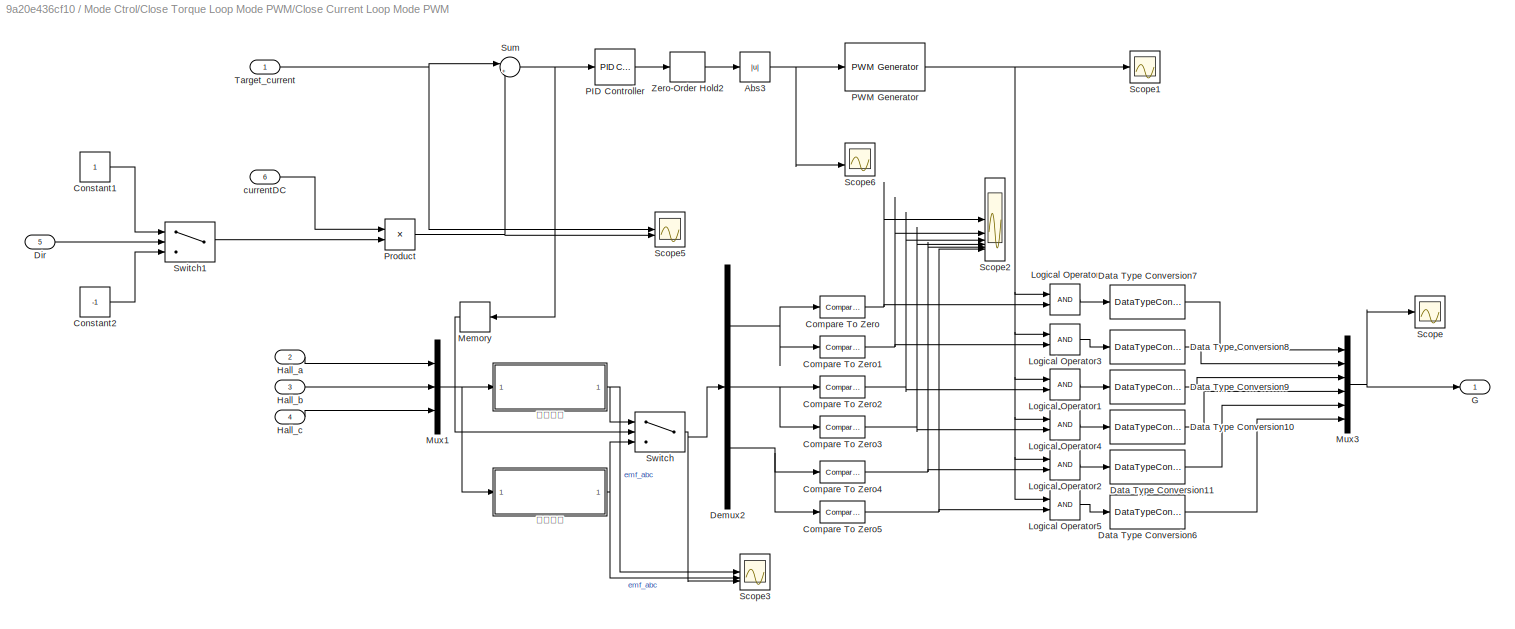
BLOCK [SubSystem] Mode Ctrol/Close Torque Loop Mode PWM/Close Current Loop Mode PWM
  TreatAsAtomicUnit = on
  VariantControl = Ctrol_Mode==5
BLOCK [Abs] Mode Ctrol/Close Torque Loop Mode PWM/Close Current Loop Mode PWM/Abs3
  SaturateOnIntegerOverflow = off
BLOCK [Reference] Mode Ctrol/Close Torque Loop Mode PWM/Close Current Loop Mode PWM/Compare To Zero  REF=simulink/Logic and Bit
Operations/Compare
To Zero
  SourceBlock = simulink/Logic and Bit\nOperations/Compare\nTo Zero
  SourceType = Compare To Zero
BLOCK [Reference] Mode Ctrol/Close Torque Loop Mode PWM/Close Current Loop Mode PWM/Compare To Zero1  REF=simulink/Logic and Bit
Operations/Compare
To Zero
  SourceBlock = simulink/Logic and Bit\nOperations/Compare\nTo Zero
  SourceType = Compare To Zero
BLOCK [Reference] Mode Ctrol/Close Torque Loop Mode PWM/Close Current Loop Mode PWM/Compare To Zero2  REF=simulink/Logic and Bit
Operations/Compare
To Zero
  SourceBlock = simulink/Logic and Bit\nOperations/Compare\nTo Zero
  SourceType = Compare To Zero
BLOCK [Reference] Mode Ctrol/Close Torque Loop Mode PWM/Close Current Loop Mode PWM/Compare To Zero3  REF=simulink/Logic and Bit
Operations/Compare
To Zero
  SourceBlock = simulink/Logic and Bit\nOperations/Compare\nTo Zero
  SourceType = Compare To Zero
BLOCK [Reference] Mode Ctrol/Close Torque Loop Mode PWM/Close Current Loop Mode PWM/Compare To Zero4  REF=simulink/Logic and Bit
Operations/Compare
To Zero
  SourceBlock = simulink/Logic and Bit\nOperations/Compare\nTo Zero
  SourceType = Compare To Zero
BLOCK [Reference] Mode Ctrol/Close Torque Loop Mode PWM/Close Current Loop Mode PWM/Compare To Zero5  REF=simulink/Logic and Bit
Operations/Compare
To Zero
  SourceBlock = simulink/Logic and Bit\nOperations/Compare\nTo Zero
  SourceType = Compare To Zero
BLOCK [Constant] Mode Ctrol/Close Torque Loop Mode PWM/Close Current Loop Mode PWM/Constant1
BLOCK [Constant] Mode Ctrol/Close Torque Loop Mode PWM/Close Current Loop Mode PWM/Constant2
  Value = -1
BLOCK [DataTypeConversion] Mode Ctrol/Close Torque Loop Mode PWM/Close Current Loop Mode PWM/Data Type Conversion10
  RndMeth = Floor
  SaturateOnIntegerOverflow = off
BLOCK [DataTypeConversion] Mode Ctrol/Close Torque Loop Mode PWM/Close Current Loop Mode PWM/Data Type Conversion11
  RndMeth = Floor
  SaturateOnIntegerOverflow = off
BLOCK [DataTypeConversion] Mode Ctrol/Close Torque Loop Mode PWM/Close Current Loop Mode PWM/Data Type Conversion6
  RndMeth = Floor
  SaturateOnIntegerOverflow = off
BLOCK [DataTypeConversion] Mode Ctrol/Close Torque Loop Mode PWM/Close Current Loop Mode PWM/Data Type Conversion7
  RndMeth = Floor
  SaturateOnIntegerOverflow = off
BLOCK [DataTypeConversion] Mode Ctrol/Close Torque Loop Mode PWM/Close Current Loop Mode PWM/Data Type Conversion8
  RndMeth = Floor
  SaturateOnIntegerOverflow = off
BLOCK [DataTypeConversion] Mode Ctrol/Close Torque Loop Mode PWM/Close Current Loop Mode PWM/Data Type Conversion9
  RndMeth = Floor
  SaturateOnIntegerOverflow = off
BLOCK [Demux] Mode Ctrol/Close Torque Loop Mode PWM/Close Current Loop Mode PWM/Demux2
  Outputs = 3
BLOCK [Inport] Mode Ctrol/Close Torque Loop Mode PWM/Close Current Loop Mode PWM/Dir
  Port = 5
BLOCK [Outport] Mode Ctrol/Close Torque Loop Mode PWM/Close Current Loop Mode PWM/G
BLOCK [Inport] Mode Ctrol/Close Torque Loop Mode PWM/Close Current Loop Mode PWM/Hall_a
  Port = 2
BLOCK [Inport] Mode Ctrol/Close Torque Loop Mode PWM/Close Current Loop Mode PWM/Hall_b
  Port = 3
BLOCK [Inport] Mode Ctrol/Close Torque Loop Mode PWM/Close Current Loop Mode PWM/Hall_c
  Port = 4
BLOCK [Logic] Mode Ctrol/Close Torque Loop Mode PWM/Close Current Loop Mode PWM/Logical Operator
  AllPortsSameDT = off
  OutDataTypeStr = boolean
BLOCK [Logic] Mode Ctrol/Close Torque Loop Mode PWM/Close Current Loop Mode PWM/Logical Operator1
  AllPortsSameDT = off
  OutDataTypeStr = boolean
BLOCK [Logic] Mode Ctrol/Close Torque Loop Mode PWM/Close Current Loop Mode PWM/Logical Operator2
  AllPortsSameDT = off
  OutDataTypeStr = boolean
BLOCK [Logic] Mode Ctrol/Close Torque Loop Mode PWM/Close Current Loop Mode PWM/Logical Operator3
  AllPortsSameDT = off
  OutDataTypeStr = boolean
BLOCK [Logic] Mode Ctrol/Close Torque Loop Mode PWM/Close Current Loop Mode PWM/Logical Operator4
  AllPortsSameDT = off
  OutDataTypeStr = boolean
BLOCK [Logic] Mode Ctrol/Close Torque Loop Mode PWM/Close Current Loop Mode PWM/Logical Operator5
  AllPortsSameDT = off
  OutDataTypeStr = boolean
BLOCK [Memory] Mode Ctrol/Close Torque Loop Mode PWM/Close Current Loop Mode PWM/Memory
  NameLocation = top
BLOCK [Mux] Mode Ctrol/Close Torque Loop Mode PWM/Close Current Loop Mode PWM/Mux1
  DisplayOption = bar
  Inputs = 3
BLOCK [Mux] Mode Ctrol/Close Torque Loop Mode PWM/Close Current Loop Mode PWM/Mux3
  DisplayOption = bar
  Inputs = 6
BLOCK [Reference] Mode Ctrol/Close Torque Loop Mode PWM/Close Current Loop Mode PWM/PID Controller  REF=slpidlib/PID Controller
  LibrarySourceBlock = simulink/Continuous/PID Controller
  SourceBlock = slpidlib/PID Controller
  SourceType = PID 1dof
BLOCK [Reference] Mode Ctrol/Close Torque Loop Mode PWM/Close Current Loop Mode PWM/PWM Generator  REF=eePwmGenerator/PWM Generator
  LibrarySourceBlock = ee_sl_lib/Pulse Width\nModulation/PWM Generator
  SourceBlock = eePwmGenerator/PWM Generator
  SourceType = PWM Generator
BLOCK [Product] Mode Ctrol/Close Torque Loop Mode PWM/Close Current Loop Mode PWM/Product
BLOCK [Scope] Mode Ctrol/Close Torque Loop Mode PWM/Close Current Loop Mode PWM/Scope
  Floating = off
  NumInputPorts = 1
  ScopeSpecificationString = Simulink.scopes.TimeScopeBlockCfg('CurrentConfiguration', extmgr.ConfigurationSet(extmgr.Configuration('Core','General UI',true),extmgr.Configuration('Core','Source UI',true),extmgr.Configuration('Sources','WiredSimulink',true,'DataLoggingVariableName','ScopeData1'),extmgr.Configuration('Visuals','Time Domain',true,'SerializedDisplays',{struct('MinYLimReal','-0.125','MaxYLimReal','1.125','YLabelRe...<+1697ch>
BLOCK [Scope] Mode Ctrol/Close Torque Loop Mode PWM/Close Current Loop Mode PWM/Scope1
  Floating = off
  NumInputPorts = 1
  ScopeSpecificationString = Simulink.scopes.TimeScopeBlockCfg('CurrentConfiguration', extmgr.ConfigurationSet(extmgr.Configuration('Core','General UI',true),extmgr.Configuration('Core','Source UI',true),extmgr.Configuration('Sources','WiredSimulink',true,'DataLoggingVariableName','ScopeData2'),extmgr.Configuration('Visuals','Time Domain',true,'SerializedDisplays',{struct('MinYLimReal','0.9','MaxYLimReal','1.1','YLabelReal','...<+1411ch>
BLOCK [Scope] Mode Ctrol/Close Torque Loop Mode PWM/Close Current Loop Mode PWM/Scope2
  Floating = off
  NumInputPorts = 6
  ScopeSpecificationString = Simulink.scopes.TimeScopeBlockCfg('CurrentConfiguration', extmgr.ConfigurationSet(extmgr.Configuration('Core','General UI',true),extmgr.Configuration('Core','Source UI',true),extmgr.Configuration('Sources','WiredSimulink',true,'DataLoggingVariableName','ScopeData5'),extmgr.Configuration('Visuals','Time Domain',true,'SerializedDisplays',{struct('MinYLimReal','-0.04789','MaxYLimReal','1.03549','YLab...<+3848ch>
BLOCK [Scope] Mode Ctrol/Close Torque Loop Mode PWM/Close Current Loop Mode PWM/Scope3
  Floating = off
  NumInputPorts = 3
  ScopeSpecificationString = Simulink.scopes.TimeScopeBlockCfg('CurrentConfiguration', extmgr.ConfigurationSet(extmgr.Configuration('Core','General UI',true),extmgr.Configuration('Core','Source UI',true),extmgr.Configuration('Sources','WiredSimulink',true,'DataLoggingVariableName','ScopeData6'),extmgr.Configuration('Visuals','Time Domain',true,'SerializedDisplays',{struct('MinYLimReal','-1.25','MaxYLimReal','1.25','YLabelReal...<+3161ch>
BLOCK [Scope] Mode Ctrol/Close Torque Loop Mode PWM/Close Current Loop Mode PWM/Scope5
  Floating = off
  NumInputPorts = 2
  ScopeSpecificationString = Simulink.scopes.TimeScopeBlockCfg('CurrentConfiguration', extmgr.ConfigurationSet(extmgr.Configuration('Core','General UI',true,'FigureColor',[1 1 1]),extmgr.Configuration('Core','Source UI',true),extmgr.Configuration('Sources','WiredSimulink',true,'DataLoggingVariableName','ScopeData8'),extmgr.Configuration('Visuals','Time Domain',true,'SerializedDisplays',{struct('MinYLimReal','1.00000','MaxYLim...<+2538ch>
BLOCK [Scope] Mode Ctrol/Close Torque Loop Mode PWM/Close Current Loop Mode PWM/Scope6
  Floating = off
  NumInputPorts = 2
  ScopeSpecificationString = Simulink.scopes.TimeScopeBlockCfg('CurrentConfiguration', extmgr.ConfigurationSet(extmgr.Configuration('Core','General UI',true),extmgr.Configuration('Core','Source UI',true),extmgr.Configuration('Sources','WiredSimulink',true,'DataLoggingVariableName','ScopeData9'),extmgr.Configuration('Visuals','Time Domain',true,'SerializedDisplays',{struct('MinYLimReal','-2.86193','MaxYLimReal','7.05201','YLab...<+1452ch>
BLOCK [Sum] Mode Ctrol/Close Torque Loop Mode PWM/Close Current Loop Mode PWM/Sum
  Inputs = |+-
BLOCK [Switch] Mode Ctrol/Close Torque Loop Mode PWM/Close Current Loop Mode PWM/Switch
  InputSameDT = off
  SaturateOnIntegerOverflow = off
BLOCK [Switch] Mode Ctrol/Close Torque Loop Mode PWM/Close Current Loop Mode PWM/Switch1
  InputSameDT = off
  SaturateOnIntegerOverflow = off
BLOCK [Inport] Mode Ctrol/Close Torque Loop Mode PWM/Close Current Loop Mode PWM/Target_current
BLOCK [ZeroOrderHold] Mode Ctrol/Close Torque Loop Mode PWM/Close Current Loop Mode PWM/Zero-Order Hold2
  SampleTime = x20Khz1
BLOCK [Inport] Mode Ctrol/Close Torque Loop Mode PWM/Close Current Loop Mode PWM/currentDC
  Port = 6
BLOCK [SubSystem] Mode Ctrol/Close Torque Loop Mode PWM/Close Current Loop Mode PWM/反转逻辑
BLOCK [Constant] Mode Ctrol/Close Torque Loop Mode PWM/Close Current Loop Mode PWM/反转逻辑/AB
  Value = [-1 1 0]
BLOCK [Constant] Mode Ctrol/Close Torque Loop Mode PWM/Close Current Loop Mode PWM/反转逻辑/AC
  Value = [-1 0 1]
BLOCK [Sum] Mode Ctrol/Close Torque Loop Mode PWM/Close Current Loop Mode PWM/反转逻辑/Add
  IconShape = rectangular
  Inputs = +++
BLOCK [Constant] Mode Ctrol/Close Torque Loop Mode PWM/Close Current Loop Mode PWM/反转逻辑/BA
  Value = [1 -1 0]
BLOCK [Constant] Mode Ctrol/Close Torque Loop Mode PWM/Close Current Loop Mode PWM/反转逻辑/BC
  Value = [0 -1 1]
BLOCK [Constant] Mode Ctrol/Close Torque Loop Mode PWM/Close Current Loop Mode PWM/反转逻辑/CA
  Value = [1 0 -1]
BLOCK [Constant] Mode Ctrol/Close Torque Loop Mode PWM/Close Current Loop Mode PWM/反转逻辑/CB
  Value = [0 1 -1]
BLOCK [Demux] Mode Ctrol/Close Torque Loop Mode PWM/Close Current Loop Mode PWM/反转逻辑/Demux
  Outputs = 3
BLOCK [Gain] Mode Ctrol/Close Torque Loop Mode PWM/Close Current Loop Mode PWM/反转逻辑/Gain
  Gain = 4
BLOCK [Gain] Mode Ctrol/Close Torque Loop Mode PWM/Close Current Loop Mode PWM/反转逻辑/Gain1
  Gain = 2
BLOCK [Gain] Mode Ctrol/Close Torque Loop Mode PWM/Close Current Loop Mode PWM/反转逻辑/Gain2
BLOCK [MultiPortSwitch] Mode Ctrol/Close Torque Loop Mode PWM/Close Current Loop Mode PWM/反转逻辑/Multiport Switch
  DiagnosticForDefault = None
  InputSameDT = off
  Inputs = 6
  SaturateOnIntegerOverflow = off
BLOCK [Outport] Mode Ctrol/Close Torque Loop Mode PWM/Close Current Loop Mode PWM/反转逻辑/emf_abc
BLOCK [Inport] Mode Ctrol/Close Torque Loop Mode PWM/Close Current Loop Mode PWM/反转逻辑/hall_abc
BLOCK [SubSystem] Mode Ctrol/Close Torque Loop Mode PWM/Close Current Loop Mode PWM/正转逻辑
  NameLocation = top
BLOCK [Constant] Mode Ctrol/Close Torque Loop Mode PWM/Close Current Loop Mode PWM/正转逻辑/AB
  Value = [1 -1 0]
BLOCK [Constant] Mode Ctrol/Close Torque Loop Mode PWM/Close Current Loop Mode PWM/正转逻辑/AC
  Value = [1 0 -1]
BLOCK [Sum] Mode Ctrol/Close Torque Loop Mode PWM/Close Current Loop Mode PWM/正转逻辑/Add
  IconShape = rectangular
  Inputs = +++
BLOCK [Constant] Mode Ctrol/Close Torque Loop Mode PWM/Close Current Loop Mode PWM/正转逻辑/BA
  Value = [-1 1 0]
BLOCK [Constant] Mode Ctrol/Close Torque Loop Mode PWM/Close Current Loop Mode PWM/正转逻辑/BC
  Value = [0 1 -1]
BLOCK [Constant] Mode Ctrol/Close Torque Loop Mode PWM/Close Current Loop Mode PWM/正转逻辑/CA
  Value = [-1 0 1]
BLOCK [Constant] Mode Ctrol/Close Torque Loop Mode PWM/Close Current Loop Mode PWM/正转逻辑/CB
  Value = [0 -1 1]
BLOCK [Demux] Mode Ctrol/Close Torque Loop Mode PWM/Close Current Loop Mode PWM/正转逻辑/Demux
  Outputs = 3
BLOCK [Gain] Mode Ctrol/Close Torque Loop Mode PWM/Close Current Loop Mode PWM/正转逻辑/Gain
  Gain = 4
BLOCK [Gain] Mode Ctrol/Close Torque Loop Mode PWM/Close Current Loop Mode PWM/正转逻辑/Gain1
  Gain = 2
BLOCK [Gain] Mode Ctrol/Close Torque Loop Mode PWM/Close Current Loop Mode PWM/正转逻辑/Gain2
BLOCK [MultiPortSwitch] Mode Ctrol/Close Torque Loop Mode PWM/Close Current Loop Mode PWM/正转逻辑/Multiport Switch
  DiagnosticForDefault = None
  InputSameDT = off
  Inputs = 6
  SaturateOnIntegerOverflow = off
BLOCK [Scope] Mode Ctrol/Close Torque Loop Mode PWM/Close Current Loop Mode PWM/正转逻辑/Scope
  Floating = off
  NameLocation = top
  NumInputPorts = 1
BLOCK [Outport] Mode Ctrol/Close Torque Loop Mode PWM/Close Current Loop Mode PWM/正转逻辑/emf_abc
BLOCK [Inport] Mode Ctrol/Close Torque Loop Mode PWM/Close Current Loop Mode PWM/正转逻辑/hall_abc
BLOCK [Inport] Mode Ctrol/Close Torque Loop Mode PWM/Dir
BLOCK [Outport] Mode Ctrol/Close Torque Loop Mode PWM/G
BLOCK [Inport] Mode Ctrol/Close Torque Loop Mode PWM/Hall_a
  Port = 2
BLOCK [Inport] Mode Ctrol/Close Torque Loop Mode PWM/Hall_b
  Port = 3
BLOCK [Inport] Mode Ctrol/Close Torque Loop Mode PWM/Hall_c
  Port = 4
BLOCK [Inport] Mode Ctrol/Close Torque Loop Mode PWM/Motor Torque
  Port = 5
BLOCK [Reference] Mode Ctrol/Close Torque Loop Mode PWM/PID Controller1  REF=slpidlib/PID Controller
  LibrarySourceBlock = simulink/Continuous/PID Controller
  SourceBlock = slpidlib/PID Controller
  SourceType = PID 1dof
BLOCK [Scope] Mode Ctrol/Close Torque Loop Mode PWM/Scope2
  Floating = off
  NumInputPorts = 2
  ScopeSpecificationString = Simulink.scopes.TimeScopeBlockCfg('CurrentConfiguration', extmgr.ConfigurationSet(extmgr.Configuration('Core','General UI',true,'FigureColor',[1 1 1]),extmgr.Configuration('Core','Source UI',true),extmgr.Configuration('Sources','WiredSimulink',true,'DataLoggingVariableName','ScopeData3'),extmgr.Configuration('Visuals','Time Domain',true,'SerializedDisplays',{struct('MinYLimReal','10.0115','MaxYLim...<+1832ch>
BLOCK [Scope] Mode Ctrol/Close Torque Loop Mode PWM/Scope3
  Floating = off
  NumInputPorts = 1
  ScopeSpecificationString = Simulink.scopes.TimeScopeBlockCfg('CurrentConfiguration', extmgr.ConfigurationSet(extmgr.Configuration('Core','General UI',true),extmgr.Configuration('Core','Source UI',true),extmgr.Configuration('Sources','WiredSimulink',true,'DataLoggingVariableName','ScopeData4'),extmgr.Configuration('Visuals','Time Domain',true,'SerializedDisplays',{struct('MinYLimReal','1.00000','MaxYLimReal','3.00000','YLabe...<+1445ch>
BLOCK [Sum] Mode Ctrol/Close Torque Loop Mode PWM/Sum1
  Inputs = |+-
BLOCK [Inport] Mode Ctrol/Close Torque Loop Mode PWM/Target_torque
  Port = 7
BLOCK [ZeroOrderHold] Mode Ctrol/Close Torque Loop Mode PWM/Zero-Order Hold1
  SampleTime = x20Khz1
BLOCK [Inport] Mode Ctrol/Close Torque Loop Mode PWM/currentDC
  Port = 6
BLOCK [Inport] Mode Ctrol/Current_a
  Port = 11
BLOCK [Inport] Mode Ctrol/Current_b
  Port = 12
BLOCK [Inport] Mode Ctrol/Current_c
  Port = 13
BLOCK [Inport] Mode Ctrol/Dir
BLOCK [Outport] Mode Ctrol/G
BLOCK [Inport] Mode Ctrol/Hall_a
  Port = 14
BLOCK [Inport] Mode Ctrol/Hall_b
  Port = 15
BLOCK [Inport] Mode Ctrol/Hall_c
  Port = 16
BLOCK [Inport] Mode Ctrol/Motor Torque
  Port = 6
BLOCK [Inport] Mode Ctrol/Motor_speed
  Port = 3
BLOCK [Inport] Mode Ctrol/TL
  Port = 5
BLOCK [Inport] Mode Ctrol/Target_current
  Port = 4
BLOCK [Inport] Mode Ctrol/Target_speed
  Port = 2
BLOCK [Inport] Mode Ctrol/Target_torque
  Port = 7
BLOCK [Inport] Mode Ctrol/currentDC
  Port = 17
BLOCK [Inport] Mode Ctrol/sign_a
  Port = 8
BLOCK [Inport] Mode Ctrol/sign_b
  Port = 9
BLOCK [Inport] Mode Ctrol/sign_c
  Port = 10
BLOCK [Mux] Mux
  DisplayOption = bar
  Inputs = 3
BLOCK [Mux] Mux1
  DisplayOption = bar
  Inputs = 3
BLOCK [Mux] Mux2
  DisplayOption = bar
  Inputs = 3
BLOCK [Mux] Mux3
  DisplayOption = bar
  Inputs = 3
BLOCK [Scope] Scope
  Floating = off
  NumInputPorts = 2
  ScopeSpecificationString = Simulink.scopes.TimeScopeBlockCfg('CurrentConfiguration', extmgr.ConfigurationSet(extmgr.Configuration('Core','General UI',true),extmgr.Configuration('Core','Source UI',true),extmgr.Configuration('Sources','WiredSimulink',true),extmgr.Configuration('Visuals','Time Domain',true,'SerializedDisplays',{struct('MinYLimReal','-8713.65858','MaxYLimReal','10390.27283','YLabelReal','','MinYLimMag','  0.000...<+1488ch>
BLOCK [Scope] Scope2
  Floating = off
  NumInputPorts = 2
  ScopeSpecificationString = Simulink.scopes.TimeScopeBlockCfg('CurrentConfiguration', extmgr.ConfigurationSet(extmgr.Configuration('Core','General UI',true),extmgr.Configuration('Core','Source UI',true),extmgr.Configuration('Sources','WiredSimulink',true,'DataLoggingVariableName','ScopeData1'),extmgr.Configuration('Visuals','Time Domain',true,'SerializedDisplays',{struct('MinYLimReal','-7.48436','MaxYLimReal','67.35922','YLa...<+1450ch>
BLOCK [Scope] Scope3
  Floating = off
  NumInputPorts = 2
  ScopeSpecificationString = Simulink.scopes.TimeScopeBlockCfg('CurrentConfiguration', extmgr.ConfigurationSet(extmgr.Configuration('Core','General UI',true),extmgr.Configuration('Core','Source UI',true),extmgr.Configuration('Sources','WiredSimulink',true,'DataLoggingVariableName','ScopeData3'),extmgr.Configuration('Visuals','Time Domain',true,'SerializedDisplays',{struct('MinYLimReal','-12.13266','MaxYLimReal','12.13448','YL...<+1667ch>
BLOCK [Scope] Scope4
  Floating = off
  NumInputPorts = 3
  ScopeSpecificationString = Simulink.scopes.TimeScopeBlockCfg('CurrentConfiguration', extmgr.ConfigurationSet(extmgr.Configuration('Core','General UI',true),extmgr.Configuration('Core','Source UI',true),extmgr.Configuration('Sources','WiredSimulink',true,'DataLoggingVariableName','ScopeData4'),extmgr.Configuration('Visuals','Time Domain',true,'SerializedDisplays',{struct('MinYLimReal','-0.125','MaxYLimReal','1.125','YLabelRe...<+1566ch>
BLOCK [Scope] Scope5
  Floating = off
  NumInputPorts = 1
  ScopeSpecificationString = Simulink.scopes.TimeScopeBlockCfg('CurrentConfiguration', extmgr.ConfigurationSet(extmgr.Configuration('Core','General UI',true),extmgr.Configuration('Core','Source UI',true),extmgr.Configuration('Sources','WiredSimulink',true,'DataLoggingVariableName','ScopeData5'),extmgr.Configuration('Visuals','Time Domain',true,'SerializedDisplays',{struct('MinYLimReal','2.35154','MaxYLimReal','2.92825','YLabe...<+1443ch>
BLOCK [Scope] Scope6
  Floating = off
  NumInputPorts = 2
  ScopeSpecificationString = Simulink.scopes.TimeScopeBlockCfg('CurrentConfiguration', extmgr.ConfigurationSet(extmgr.Configuration('Core','General UI',true),extmgr.Configuration('Core','Source UI',true),extmgr.Configuration('Sources','WiredSimulink',true,'DataLoggingVariableName','ScopeData1'),extmgr.Configuration('Visuals','Time Domain',true,'SerializedDisplays',{struct('MinYLimReal','-15.86623','MaxYLimReal','14.23924','YL...<+2140ch>
BLOCK [Scope] Scope7
  Floating = off
  NumInputPorts = 3
  ScopeSpecificationString = Simulink.scopes.TimeScopeBlockCfg('CurrentConfiguration', extmgr.ConfigurationSet(extmgr.Configuration('Core','General UI',true),extmgr.Configuration('Core','Source UI',true),extmgr.Configuration('Sources','WiredSimulink',true,'DataLoggingVariableName','ScopeData1'),extmgr.Configuration('Visuals','Time Domain',true,'SerializedDisplays',{struct('MinYLimReal','-4.11424','MaxYLimReal','4.11424','YLab...<+1911ch>
BLOCK [Scope] Scope8
  Floating = off
  NumInputPorts = 3
  ScopeSpecificationString = Simulink.scopes.TimeScopeBlockCfg('CurrentConfiguration', extmgr.ConfigurationSet(extmgr.Configuration('Core','General UI',true),extmgr.Configuration('Core','Source UI',true),extmgr.Configuration('Sources','WiredSimulink',true,'DataLoggingVariableName','ScopeData1'),extmgr.Configuration('Visuals','Time Domain',true,'SerializedDisplays',{struct('MinYLimReal','-8.74387','MaxYLimReal','8.74387','YLab...<+3882ch>
BLOCK [Scope] Scope9
  Floating = off
  NumInputPorts = 2
  ScopeSpecificationString = Simulink.scopes.TimeScopeBlockCfg('CurrentConfiguration', extmgr.ConfigurationSet(extmgr.Configuration('Core','General UI',true),extmgr.Configuration('Core','Source UI',true),extmgr.Configuration('Sources','WiredSimulink',true,'DataLoggingVariableName','ScopeData1'),extmgr.Configuration('Visuals','Time Domain',true,'SerializedDisplays',{struct('MinYLimReal','-11.63043','MaxYLimReal','11.63076','YL...<+1745ch>
BLOCK [Reference] Series RLC Branch  REF=spsSeriesRLCBranchLib/Series RLC Branch
  LibrarySourceBlock = sps_lib/Passives/Series RLC Branch
  NameLocation = left
  SourceBlock = spsSeriesRLCBranchLib/Series RLC Branch
  SourceType = Series RLC Branch
BLOCK [Reference] Series RLC Branch1  REF=spsSeriesRLCBranchLib/Series RLC Branch
  LibrarySourceBlock = sps_lib/Passives/Series RLC Branch
  NameLocation = right
  SourceBlock = spsSeriesRLCBranchLib/Series RLC Branch
  SourceType = Series RLC Branch
BLOCK [SubSystem] Signal Builder
  ClipboardFcn = sigbuilder_block('clipboard');
  CloseFcn = sigbuilder_block('close');
  ContinueFcn = sigbuilder_block('continue');
  CopyFcn = sigbuilder_block('copy');
  DeleteFcn = sigbuilder_block('delete');
  LoadFcn = sigbuilder_block('load');
  MaskHideContents = on
  ModelCloseFcn = sigbuilder_block('modelClose');
  NameChangeFcn = sigbuilder_block('namechange');
  OpenFcn = sigbuilder_block('open',[281.4 79.2 550.8 400.2 ]);
  PauseFcn = sigbuilder_block('pause');
  PreSaveFcn = sigbuilder_block('preSave');
  StartFcn = sigbuilder_block('start');
  StopFcn = sigbuilder_block('stop');
  Tag = STV Subsys
BLOCK [Demux] Signal Builder/Demux
  DisplayOption = none
  Outputs = 1
  Tag = STV Demux
BLOCK [FromWorkspace] Signal Builder/FromWs
  Tag = STV FromWs
  VariableName = tuvar
BLOCK [Outport] Signal Builder/Signal 2
  Tag = STV Outport
BLOCK [SubSystem] Signal Builder1
  ClipboardFcn = sigbuilder_block('clipboard');
  CloseFcn = sigbuilder_block('close');
  ContinueFcn = sigbuilder_block('continue');
  CopyFcn = sigbuilder_block('copy');
  DeleteFcn = sigbuilder_block('delete');
  LoadFcn = sigbuilder_block('load');
  MaskHideContents = on
  ModelCloseFcn = sigbuilder_block('modelClose');
  NameChangeFcn = sigbuilder_block('namechange');
  OpenFcn = sigbuilder_block('open',[5.4 30 1141.2 523.8 ]);
  PauseFcn = sigbuilder_block('pause');
  PreSaveFcn = sigbuilder_block('preSave');
  StartFcn = sigbuilder_block('start');
  StopFcn = sigbuilder_block('stop');
  Tag = STV Subsys
BLOCK [Demux] Signal Builder1/Demux
  DisplayOption = none
  Outputs = 1
  Tag = STV Demux
BLOCK [FromWorkspace] Signal Builder1/FromWs
  Tag = STV FromWs
  VariableName = tuvar
BLOCK [Outport] Signal Builder1/Signal 2
  Tag = STV Outport
BLOCK [SubSystem] Signal Builder2
  ClipboardFcn = sigbuilder_block('clipboard');
  CloseFcn = sigbuilder_block('close');
  ContinueFcn = sigbuilder_block('continue');
  CopyFcn = sigbuilder_block('copy');
  DeleteFcn = sigbuilder_block('delete');
  LoadFcn = sigbuilder_block('load');
  MaskHideContents = on
  ModelCloseFcn = sigbuilder_block('modelClose');
  NameChangeFcn = sigbuilder_block('namechange');
  OpenFcn = sigbuilder_block('open',[281.4 79.2 550.8 400.2 ]);
  PauseFcn = sigbuilder_block('pause');
  PreSaveFcn = sigbuilder_block('preSave');
  StartFcn = sigbuilder_block('start');
  StopFcn = sigbuilder_block('stop');
  Tag = STV Subsys
BLOCK [Demux] Signal Builder2/Demux
  DisplayOption = none
  Outputs = 1
  Tag = STV Demux
BLOCK [FromWorkspace] Signal Builder2/FromWs
  Tag = STV FromWs
  VariableName = tuvar
BLOCK [Outport] Signal Builder2/Signal 2
  Tag = STV Outport
BLOCK [Switch] Switch
  Criteria = u2 > Threshold
  InputSameDT = off
  SaturateOnIntegerOverflow = off
BLOCK [Reference] Two-Level Converter  REF=spsTwoLevelConverterLib/Two-Level Converter
  NameLocation = top
  SourceBlock = spsTwoLevelConverterLib/Two-Level Converter
  SourceType = Two-Level Converter
BLOCK [ZeroOrderHold] Zero-Order Hold1
  SampleTime = x20Khz1
BLOCK [ZeroOrderHold] Zero-Order Hold2
  SampleTime = x20Khz1
BLOCK [ZeroOrderHold] Zero-Order Hold3
  SampleTime = x20Khz1
BLOCK [ZeroOrderHold] Zero-Order Hold4
  SampleTime = x20Khz1
BLOCK [ZeroOrderHold] Zero-Order Hold5
  SampleTime = x20Khz1
BLOCK [ZeroOrderHold] Zero-Order Hold6
  SampleTime = x20Khz1
BLOCK [ZeroOrderHold] Zero-Order Hold7
  SampleTime = x20Khz1
BLOCK [ZeroOrderHold] Zero-Order Hold8
  SampleTime = x20Khz1
BLOCK [Reference] powergui  REF=spspowerguiLib/powergui
  Priority = 1
  SourceBlock = spspowerguiLib/powergui
  SourceType = PSB option menu block
ANNOTATION (root): Control
ANNOTATION (root): Converter
ANNOTATION (root): Dir
ANNOTATION (root): Driver and Motor
ANNOTATION (root): Scope
ANNOTATION Mode Ctrol: Mode==4 转矩闭环PWM Mode==5 电流闭环PWM Mode==6 速度闭环PWM
ANNOTATION Mode Ctrol/Close Current Loop Mode PWM/反转逻辑: 0 0 0 1 1 0 0 1 1 0 0 0 0 1 0 0 1 0 1 0 0 0 0 1 1 0 0 1 0 0 0 0 1 0 0 1
ANNOTATION Mode Ctrol/Close Current Loop Mode PWM/反转逻辑: 1 2 3 4 5 6
ANNOTATION Mode Ctrol/Close Speed Loop Mode PWM/Close Current Loop Mode PWM/反转逻辑: 0 0 0 1 1 0 0 1 1 0 0 0 0 1 0 0 1 0 1 0 0 0 0 1 1 0 0 1 0 0 0 0 1 0 0 1
ANNOTATION Mode Ctrol/Close Speed Loop Mode PWM/Close Current Loop Mode PWM/反转逻辑: 1 2 3 4 5 6
ANNOTATION Mode Ctrol/Close Torque Loop Mode PWM/Close Current Loop Mode PWM/反转逻辑: 0 0 0 1 1 0 0 1 1 0 0 0 0 1 0 0 1 0 1 0 0 0 0 1 1 0 0 1 0 0 0 0 1 0 0 1
ANNOTATION Mode Ctrol/Close Torque Loop Mode PWM/Close Current Loop Mode PWM/反转逻辑: 1 2 3 4 5 6
LINE Analog Filter Design1:1 -> Zero-Order Hold8:1
NET Analog Filter Design2:1 -> Scope6:2, Zero-Order Hold1:1
LINE BLDC:1 -> Bus Selector1:1
LINE Bus Selector1:1 -> Zero-Order Hold2:1
LINE Bus Selector1:2 -> Zero-Order Hold3:1
LINE Bus Selector1:3 -> Zero-Order Hold4:1
LINE Bus Selector1:4 -> Zero-Order Hold5:1
LINE Bus Selector1:5 -> Zero-Order Hold6:1
LINE Bus Selector1:6 -> Zero-Order Hold7:1
LINE Bus Selector1:7 -> Gain:1
LINE Bus Selector1:8 -> Goto9:1
LINE Bus Selector1:9 -> Analog Filter Design1:1
LINE Constant1:1 -> Goto4:1
LINE Constant2:1 -> Switch:1
LINE Constant3:1 -> Switch:3
LINE Constant:1 -> BLDC:1
NET Current Measurement:1 -> Analog Filter Design2:1, Scope6:1
LINE From10:1 -> Scope:2
LINE From11:1 -> Scope3:2
LINE From12:1 -> Scope2:1
LINE From15:1 -> Scope3:1
LINE From16:1 -> Scope4:1
LINE From17:1 -> Scope4:2
LINE From18:1 -> Scope4:3
LINE From19:1 -> Scope7:2
LINE From1:1 -> Two-Level Converter:1
LINE From20:1 -> MATLAB Function2:1
LINE From21:1 -> Scope5:1
LINE From22:1 -> Scope7:3
LINE From23:1 -> Mode Ctrol:14
LINE From24:1 -> Mode Ctrol:15
LINE From25:1 -> Mode Ctrol:16
LINE From26:1 -> Mode Ctrol:4
LINE From27:1 -> Mode Ctrol:8
LINE From28:1 -> Mode Ctrol:9
LINE From29:1 -> Scope2:2
LINE From2:1 -> MATLAB Function1:2
LINE From30:1 -> Mode Ctrol:3
LINE From31:1 -> Mode Ctrol:2
LINE From32:1 -> Scope:1
LINE From33:1 -> Mode Ctrol:10
LINE From34:1 -> Mux:2
LINE From35:1 -> Mux:3
LINE From36:1 -> Mux:1
LINE From37:1 -> Mux1:1
LINE From38:1 -> Mux1:2
LINE From39:1 -> Mux1:3
LINE From3:1 -> MATLAB Function1:3
LINE From40:1 -> Mux2:1
LINE From41:1 -> Mux2:2
LINE From42:1 -> Mux2:3
LINE From43:1 -> Mux3:1
LINE From44:1 -> Mux3:2
LINE From45:1 -> Mux3:3
LINE From46:1 -> Switch:2
LINE From48:1 -> Mode Ctrol:5
LINE From4:1 -> Mode Ctrol:7
LINE From51:1 -> Mode Ctrol:6
LINE From53:1 -> Mode Ctrol:1
LINE From5:1 -> Mode Ctrol:17
LINE From6:1 -> Scope7:1
LINE From7:1 -> Mode Ctrol:11
LINE From8:1 -> Mode Ctrol:12
LINE From9:1 -> Mode Ctrol:13
LINE From:1 -> MATLAB Function1:1
LINE Gain5:1 -> Goto15:1
LINE Gain:1 -> Goto8:1
LINE MATLAB Function1:1 -> Goto10:1
LINE MATLAB Function1:2 -> Goto11:1
LINE MATLAB Function1:3 -> Goto12:1
LINE MATLAB Function2:1 -> Goto13:1
NET Mode Ctrol/Close Current Loop Mode PWM/Abs3:1 -> Mode Ctrol/Close Current Loop Mode PWM/PWM Generator:1, Mode Ctrol/Close Current Loop Mode PWM/Scope6:2
NET Mode Ctrol/Close Current Loop Mode PWM/Compare To Zero1:1 -> Mode Ctrol/Close Current Loop Mode PWM/Logical Operator3:2, Mode Ctrol/Close Current Loop Mode PWM/Scope2:2
NET Mode Ctrol/Close Current Loop Mode PWM/Compare To Zero2:1 -> Mode Ctrol/Close Current Loop Mode PWM/Logical Operator1:2, Mode Ctrol/Close Current Loop Mode PWM/Scope2:3
NET Mode Ctrol/Close Current Loop Mode PWM/Compare To Zero3:1 -> Mode Ctrol/Close Current Loop Mode PWM/Logical Operator4:2, Mode Ctrol/Close Current Loop Mode PWM/Scope2:4
NET Mode Ctrol/Close Current Loop Mode PWM/Compare To Zero4:1 -> Mode Ctrol/Close Current Loop Mode PWM/Logical Operator2:2, Mode Ctrol/Close Current Loop Mode PWM/Scope2:5
NET Mode Ctrol/Close Current Loop Mode PWM/Compare To Zero5:1 -> Mode Ctrol/Close Current Loop Mode PWM/Logical Operator5:2, Mode Ctrol/Close Current Loop Mode PWM/Scope2:6
NET Mode Ctrol/Close Current Loop Mode PWM/Compare To Zero:1 -> Mode Ctrol/Close Current Loop Mode PWM/Logical Operator:2, Mode Ctrol/Close Current Loop Mode PWM/Scope2:1
LINE Mode Ctrol/Close Current Loop Mode PWM/Constant1:1 -> Mode Ctrol/Close Current Loop Mode PWM/Switch1:1
LINE Mode Ctrol/Close Current Loop Mode PWM/Constant2:1 -> Mode Ctrol/Close Current Loop Mode PWM/Switch1:3
LINE Mode Ctrol/Close Current Loop Mode PWM/Data Type Conversion10:1 -> Mode Ctrol/Close Current Loop Mode PWM/Mux3:4
LINE Mode Ctrol/Close Current Loop Mode PWM/Data Type Conversion11:1 -> Mode Ctrol/Close Current Loop Mode PWM/Mux3:5
LINE Mode Ctrol/Close Current Loop Mode PWM/Data Type Conversion6:1 -> Mode Ctrol/Close Current Loop Mode PWM/Mux3:6
LINE Mode Ctrol/Close Current Loop Mode PWM/Data Type Conversion7:1 -> Mode Ctrol/Close Current Loop Mode PWM/Mux3:1
LINE Mode Ctrol/Close Current Loop Mode PWM/Data Type Conversion8:1 -> Mode Ctrol/Close Current Loop Mode PWM/Mux3:2
LINE Mode Ctrol/Close Current Loop Mode PWM/Data Type Conversion9:1 -> Mode Ctrol/Close Current Loop Mode PWM/Mux3:3
NET Mode Ctrol/Close Current Loop Mode PWM/Demux2:1 -> Mode Ctrol/Close Current Loop Mode PWM/Compare To Zero1:1, Mode Ctrol/Close Current Loop Mode PWM/Compare To Zero:1
NET Mode Ctrol/Close Current Loop Mode PWM/Demux2:2 -> Mode Ctrol/Close Current Loop Mode PWM/Compare To Zero2:1, Mode Ctrol/Close Current Loop Mode PWM/Compare To Zero3:1
NET Mode Ctrol/Close Current Loop Mode PWM/Demux2:3 -> Mode Ctrol/Close Current Loop Mode PWM/Compare To Zero4:1, Mode Ctrol/Close Current Loop Mode PWM/Compare To Zero5:1
LINE Mode Ctrol/Close Current Loop Mode PWM/Dir:1 -> Mode Ctrol/Close Current Loop Mode PWM/Switch1:2
LINE Mode Ctrol/Close Current Loop Mode PWM/Hall_a:1 -> Mode Ctrol/Close Current Loop Mode PWM/Mux1:1
LINE Mode Ctrol/Close Current Loop Mode PWM/Hall_b:1 -> Mode Ctrol/Close Current Loop Mode PWM/Mux1:2
LINE Mode Ctrol/Close Current Loop Mode PWM/Hall_c:1 -> Mode Ctrol/Close Current Loop Mode PWM/Mux1:3
LINE Mode Ctrol/Close Current Loop Mode PWM/Logical Operator1:1 -> Mode Ctrol/Close Current Loop Mode PWM/Data Type Conversion9:1
LINE Mode Ctrol/Close Current Loop Mode PWM/Logical Operator2:1 -> Mode Ctrol/Close Current Loop Mode PWM/Data Type Conversion11:1
LINE Mode Ctrol/Close Current Loop Mode PWM/Logical Operator3:1 -> Mode Ctrol/Close Current Loop Mode PWM/Data Type Conversion8:1
LINE Mode Ctrol/Close Current Loop Mode PWM/Logical Operator4:1 -> Mode Ctrol/Close Current Loop Mode PWM/Data Type Conversion10:1
LINE Mode Ctrol/Close Current Loop Mode PWM/Logical Operator5:1 -> Mode Ctrol/Close Current Loop Mode PWM/Data Type Conversion6:1
LINE Mode Ctrol/Close Current Loop Mode PWM/Logical Operator:1 -> Mode Ctrol/Close Current Loop Mode PWM/Data Type Conversion7:1
LINE Mode Ctrol/Close Current Loop Mode PWM/Memory:1 -> Mode Ctrol/Close Current Loop Mode PWM/Switch:2
NET Mode Ctrol/Close Current Loop Mode PWM/Mux1:1 -> Mode Ctrol/Close Current Loop Mode PWM/反转逻辑:1, Mode Ctrol/Close Current Loop Mode PWM/正转逻辑:1
NET Mode Ctrol/Close Current Loop Mode PWM/Mux3:1 -> Mode Ctrol/Close Current Loop Mode PWM/G:1, Mode Ctrol/Close Current Loop Mode PWM/Scope:1
LINE Mode Ctrol/Close Current Loop Mode PWM/PID Controller:1 -> Mode Ctrol/Close Current Loop Mode PWM/Abs3:1
NET Mode Ctrol/Close Current Loop Mode PWM/PWM Generator:1 -> Mode Ctrol/Close Current Loop Mode PWM/Logical Operator1:1, Mode Ctrol/Close Current Loop Mode PWM/Logical Operator2:1, Mode Ctrol/Close Current Loop Mode PWM/Logical Operator3:1, Mode Ctrol/Close Current Loop Mode PWM/Logical Operator4:1, Mode Ctrol/Close Current Loop Mode PWM/Logical Operator5:1, Mode Ctrol/Close Current Loop Mode PWM/Logical Operator:1, Mode Ctrol/Close Current Loop Mode PWM/Scope1:1
NET Mode Ctrol/Close Current Loop Mode PWM/Product:1 -> Mode Ctrol/Close Current Loop Mode PWM/Scope5:2, Mode Ctrol/Close Current Loop Mode PWM/Sum:2
NET Mode Ctrol/Close Current Loop Mode PWM/Sum:1 -> Mode Ctrol/Close Current Loop Mode PWM/Memory:1, Mode Ctrol/Close Current Loop Mode PWM/PID Controller:1
LINE Mode Ctrol/Close Current Loop Mode PWM/Switch1:1 -> Mode Ctrol/Close Current Loop Mode PWM/Product:2
NET Mode Ctrol/Close Current Loop Mode PWM/Switch:1 -> Mode Ctrol/Close Current Loop Mode PWM/Demux2:1, Mode Ctrol/Close Current Loop Mode PWM/Scope3:3
NET Mode Ctrol/Close Current Loop Mode PWM/Target_current:1 -> Mode Ctrol/Close Current Loop Mode PWM/Scope5:1, Mode Ctrol/Close Current Loop Mode PWM/Sum:1
LINE Mode Ctrol/Close Current Loop Mode PWM/currentDC:1 -> Mode Ctrol/Close Current Loop Mode PWM/Product:1
LINE Mode Ctrol/Close Current Loop Mode PWM/反转逻辑/AB:1 -> Mode Ctrol/Close Current Loop Mode PWM/反转逻辑/Multiport Switch:6
LINE Mode Ctrol/Close Current Loop Mode PWM/反转逻辑/AC:1 -> Mode Ctrol/Close Current Loop Mode PWM/反转逻辑/Multiport Switch:5
LINE Mode Ctrol/Close Current Loop Mode PWM/反转逻辑/Add:1 -> Mode Ctrol/Close Current Loop Mode PWM/反转逻辑/Multiport Switch:1
LINE Mode Ctrol/Close Current Loop Mode PWM/反转逻辑/BA:1 -> Mode Ctrol/Close Current Loop Mode PWM/反转逻辑/Multiport Switch:3
LINE Mode Ctrol/Close Current Loop Mode PWM/反转逻辑/BC:1 -> Mode Ctrol/Close Current Loop Mode PWM/反转逻辑/Multiport Switch:7
LINE Mode Ctrol/Close Current Loop Mode PWM/反转逻辑/CA:1 -> Mode Ctrol/Close Current Loop Mode PWM/反转逻辑/Multiport Switch:4
LINE Mode Ctrol/Close Current Loop Mode PWM/反转逻辑/CB:1 -> Mode Ctrol/Close Current Loop Mode PWM/反转逻辑/Multiport Switch:2
LINE Mode Ctrol/Close Current Loop Mode PWM/反转逻辑/Demux:1 -> Mode Ctrol/Close Current Loop Mode PWM/反转逻辑/Gain:1
LINE Mode Ctrol/Close Current Loop Mode PWM/反转逻辑/Demux:2 -> Mode Ctrol/Close Current Loop Mode PWM/反转逻辑/Gain1:1
LINE Mode Ctrol/Close Current Loop Mode PWM/反转逻辑/Demux:3 -> Mode Ctrol/Close Current Loop Mode PWM/反转逻辑/Gain2:1
LINE Mode Ctrol/Close Current Loop Mode PWM/反转逻辑/Gain1:1 -> Mode Ctrol/Close Current Loop Mode PWM/反转逻辑/Add:2
LINE Mode Ctrol/Close Current Loop Mode PWM/反转逻辑/Gain2:1 -> Mode Ctrol/Close Current Loop Mode PWM/反转逻辑/Add:3
LINE Mode Ctrol/Close Current Loop Mode PWM/反转逻辑/Gain:1 -> Mode Ctrol/Close Current Loop Mode PWM/反转逻辑/Add:1
LINE Mode Ctrol/Close Current Loop Mode PWM/反转逻辑/Multiport Switch:1 -> Mode Ctrol/Close Current Loop Mode PWM/反转逻辑/emf_abc:1
LINE Mode Ctrol/Close Current Loop Mode PWM/反转逻辑/hall_abc:1 -> Mode Ctrol/Close Current Loop Mode PWM/反转逻辑/Demux:1
NET Mode Ctrol/Close Current Loop Mode PWM/反转逻辑:1 -> Mode Ctrol/Close Current Loop Mode PWM/Scope3:2, Mode Ctrol/Close Current Loop Mode PWM/Switch:3
LINE Mode Ctrol/Close Current Loop Mode PWM/正转逻辑/AB:1 -> Mode Ctrol/Close Current Loop Mode PWM/正转逻辑/Multiport Switch:6
LINE Mode Ctrol/Close Current Loop Mode PWM/正转逻辑/AC:1 -> Mode Ctrol/Close Current Loop Mode PWM/正转逻辑/Multiport Switch:5
NET Mode Ctrol/Close Current Loop Mode PWM/正转逻辑/Add:1 -> Mode Ctrol/Close Current Loop Mode PWM/正转逻辑/Multiport Switch:1, Mode Ctrol/Close Current Loop Mode PWM/正转逻辑/Scope:1
LINE Mode Ctrol/Close Current Loop Mode PWM/正转逻辑/BA:1 -> Mode Ctrol/Close Current Loop Mode PWM/正转逻辑/Multiport Switch:3
LINE Mode Ctrol/Close Current Loop Mode PWM/正转逻辑/BC:1 -> Mode Ctrol/Close Current Loop Mode PWM/正转逻辑/Multiport Switch:7
LINE Mode Ctrol/Close Current Loop Mode PWM/正转逻辑/CA:1 -> Mode Ctrol/Close Current Loop Mode PWM/正转逻辑/Multiport Switch:4
LINE Mode Ctrol/Close Current Loop Mode PWM/正转逻辑/CB:1 -> Mode Ctrol/Close Current Loop Mode PWM/正转逻辑/Multiport Switch:2
LINE Mode Ctrol/Close Current Loop Mode PWM/正转逻辑/Demux:1 -> Mode Ctrol/Close Current Loop Mode PWM/正转逻辑/Gain:1
LINE Mode Ctrol/Close Current Loop Mode PWM/正转逻辑/Demux:2 -> Mode Ctrol/Close Current Loop Mode PWM/正转逻辑/Gain1:1
LINE Mode Ctrol/Close Current Loop Mode PWM/正转逻辑/Demux:3 -> Mode Ctrol/Close Current Loop Mode PWM/正转逻辑/Gain2:1
LINE Mode Ctrol/Close Current Loop Mode PWM/正转逻辑/Gain1:1 -> Mode Ctrol/Close Current Loop Mode PWM/正转逻辑/Add:2
LINE Mode Ctrol/Close Current Loop Mode PWM/正转逻辑/Gain2:1 -> Mode Ctrol/Close Current Loop Mode PWM/正转逻辑/Add:3
LINE Mode Ctrol/Close Current Loop Mode PWM/正转逻辑/Gain:1 -> Mode Ctrol/Close Current Loop Mode PWM/正转逻辑/Add:1
LINE Mode Ctrol/Close Current Loop Mode PWM/正转逻辑/Multiport Switch:1 -> Mode Ctrol/Close Current Loop Mode PWM/正转逻辑/emf_abc:1
LINE Mode Ctrol/Close Current Loop Mode PWM/正转逻辑/hall_abc:1 -> Mode Ctrol/Close Current Loop Mode PWM/正转逻辑/Demux:1
NET Mode Ctrol/Close Current Loop Mode PWM/正转逻辑:1 -> Mode Ctrol/Close Current Loop Mode PWM/Scope3:1, Mode Ctrol/Close Current Loop Mode PWM/Switch:1
NET Mode Ctrol/Close Speed Loop Mode PWM/Active Disturbance Rejection Control:1 -> Mode Ctrol/Close Speed Loop Mode PWM/Scope2:1, Mode Ctrol/Close Speed Loop Mode PWM/Sum1:1
NET Mode Ctrol/Close Speed Loop Mode PWM/Analog Filter Design2:1 -> Mode Ctrol/Close Speed Loop Mode PWM/Scope2:2, Mode Ctrol/Close Speed Loop Mode PWM/Sum1:2
NET Mode Ctrol/Close Speed Loop Mode PWM/Close Current Loop Mode PWM/Abs3:1 -> Mode Ctrol/Close Speed Loop Mode PWM/Close Current Loop Mode PWM/PWM Generator:1, Mode Ctrol/Close Speed Loop Mode PWM/Close Current Loop Mode PWM/Scope6:2
NET Mode Ctrol/Close Speed Loop Mode PWM/Close Current Loop Mode PWM/Compare To Zero1:1 -> Mode Ctrol/Close Speed Loop Mode PWM/Close Current Loop Mode PWM/Logical Operator3:2, Mode Ctrol/Close Speed Loop Mode PWM/Close Current Loop Mode PWM/Scope2:2
NET Mode Ctrol/Close Speed Loop Mode PWM/Close Current Loop Mode PWM/Compare To Zero2:1 -> Mode Ctrol/Close Speed Loop Mode PWM/Close Current Loop Mode PWM/Logical Operator1:2, Mode Ctrol/Close Speed Loop Mode PWM/Close Current Loop Mode PWM/Scope2:3
NET Mode Ctrol/Close Speed Loop Mode PWM/Close Current Loop Mode PWM/Compare To Zero3:1 -> Mode Ctrol/Close Speed Loop Mode PWM/Close Current Loop Mode PWM/Logical Operator4:2, Mode Ctrol/Close Speed Loop Mode PWM/Close Current Loop Mode PWM/Scope2:4
NET Mode Ctrol/Close Speed Loop Mode PWM/Close Current Loop Mode PWM/Compare To Zero4:1 -> Mode Ctrol/Close Speed Loop Mode PWM/Close Current Loop Mode PWM/Logical Operator2:2, Mode Ctrol/Close Speed Loop Mode PWM/Close Current Loop Mode PWM/Scope2:5
NET Mode Ctrol/Close Speed Loop Mode PWM/Close Current Loop Mode PWM/Compare To Zero5:1 -> Mode Ctrol/Close Speed Loop Mode PWM/Close Current Loop Mode PWM/Logical Operator5:2, Mode Ctrol/Close Speed Loop Mode PWM/Close Current Loop Mode PWM/Scope2:6
NET Mode Ctrol/Close Speed Loop Mode PWM/Close Current Loop Mode PWM/Compare To Zero:1 -> Mode Ctrol/Close Speed Loop Mode PWM/Close Current Loop Mode PWM/Logical Operator:2, Mode Ctrol/Close Speed Loop Mode PWM/Close Current Loop Mode PWM/Scope2:1
LINE Mode Ctrol/Close Speed Loop Mode PWM/Close Current Loop Mode PWM/Constant1:1 -> Mode Ctrol/Close Speed Loop Mode PWM/Close Current Loop Mode PWM/Switch1:1
LINE Mode Ctrol/Close Speed Loop Mode PWM/Close Current Loop Mode PWM/Constant2:1 -> Mode Ctrol/Close Speed Loop Mode PWM/Close Current Loop Mode PWM/Switch1:3
LINE Mode Ctrol/Close Speed Loop Mode PWM/Close Current Loop Mode PWM/Data Type Conversion10:1 -> Mode Ctrol/Close Speed Loop Mode PWM/Close Current Loop Mode PWM/Mux3:4
LINE Mode Ctrol/Close Speed Loop Mode PWM/Close Current Loop Mode PWM/Data Type Conversion11:1 -> Mode Ctrol/Close Speed Loop Mode PWM/Close Current Loop Mode PWM/Mux3:5
LINE Mode Ctrol/Close Speed Loop Mode PWM/Close Current Loop Mode PWM/Data Type Conversion6:1 -> Mode Ctrol/Close Speed Loop Mode PWM/Close Current Loop Mode PWM/Mux3:6
LINE Mode Ctrol/Close Speed Loop Mode PWM/Close Current Loop Mode PWM/Data Type Conversion7:1 -> Mode Ctrol/Close Speed Loop Mode PWM/Close Current Loop Mode PWM/Mux3:1
LINE Mode Ctrol/Close Speed Loop Mode PWM/Close Current Loop Mode PWM/Data Type Conversion8:1 -> Mode Ctrol/Close Speed Loop Mode PWM/Close Current Loop Mode PWM/Mux3:2
LINE Mode Ctrol/Close Speed Loop Mode PWM/Close Current Loop Mode PWM/Data Type Conversion9:1 -> Mode Ctrol/Close Speed Loop Mode PWM/Close Current Loop Mode PWM/Mux3:3
NET Mode Ctrol/Close Speed Loop Mode PWM/Close Current Loop Mode PWM/Demux2:1 -> Mode Ctrol/Close Speed Loop Mode PWM/Close Current Loop Mode PWM/Compare To Zero1:1, Mode Ctrol/Close Speed Loop Mode PWM/Close Current Loop Mode PWM/Compare To Zero:1
NET Mode Ctrol/Close Speed Loop Mode PWM/Close Current Loop Mode PWM/Demux2:2 -> Mode Ctrol/Close Speed Loop Mode PWM/Close Current Loop Mode PWM/Compare To Zero2:1, Mode Ctrol/Close Speed Loop Mode PWM/Close Current Loop Mode PWM/Compare To Zero3:1
NET Mode Ctrol/Close Speed Loop Mode PWM/Close Current Loop Mode PWM/Demux2:3 -> Mode Ctrol/Close Speed Loop Mode PWM/Close Current Loop Mode PWM/Compare To Zero4:1, Mode Ctrol/Close Speed Loop Mode PWM/Close Current Loop Mode PWM/Compare To Zero5:1
LINE Mode Ctrol/Close Speed Loop Mode PWM/Close Current Loop Mode PWM/Dir:1 -> Mode Ctrol/Close Speed Loop Mode PWM/Close Current Loop Mode PWM/Switch1:2
LINE Mode Ctrol/Close Speed Loop Mode PWM/Close Current Loop Mode PWM/Hall_a:1 -> Mode Ctrol/Close Speed Loop Mode PWM/Close Current Loop Mode PWM/Mux1:1
LINE Mode Ctrol/Close Speed Loop Mode PWM/Close Current Loop Mode PWM/Hall_b:1 -> Mode Ctrol/Close Speed Loop Mode PWM/Close Current Loop Mode PWM/Mux1:2
LINE Mode Ctrol/Close Speed Loop Mode PWM/Close Current Loop Mode PWM/Hall_c:1 -> Mode Ctrol/Close Speed Loop Mode PWM/Close Current Loop Mode PWM/Mux1:3
LINE Mode Ctrol/Close Speed Loop Mode PWM/Close Current Loop Mode PWM/Logical Operator1:1 -> Mode Ctrol/Close Speed Loop Mode PWM/Close Current Loop Mode PWM/Data Type Conversion9:1
LINE Mode Ctrol/Close Speed Loop Mode PWM/Close Current Loop Mode PWM/Logical Operator2:1 -> Mode Ctrol/Close Speed Loop Mode PWM/Close Current Loop Mode PWM/Data Type Conversion11:1
LINE Mode Ctrol/Close Speed Loop Mode PWM/Close Current Loop Mode PWM/Logical Operator3:1 -> Mode Ctrol/Close Speed Loop Mode PWM/Close Current Loop Mode PWM/Data Type Conversion8:1
LINE Mode Ctrol/Close Speed Loop Mode PWM/Close Current Loop Mode PWM/Logical Operator4:1 -> Mode Ctrol/Close Speed Loop Mode PWM/Close Current Loop Mode PWM/Data Type Conversion10:1
LINE Mode Ctrol/Close Speed Loop Mode PWM/Close Current Loop Mode PWM/Logical Operator5:1 -> Mode Ctrol/Close Speed Loop Mode PWM/Close Current Loop Mode PWM/Data Type Conversion6:1
LINE Mode Ctrol/Close Speed Loop Mode PWM/Close Current Loop Mode PWM/Logical Operator:1 -> Mode Ctrol/Close Speed Loop Mode PWM/Close Current Loop Mode PWM/Data Type Conversion7:1
LINE Mode Ctrol/Close Speed Loop Mode PWM/Close Current Loop Mode PWM/Memory:1 -> Mode Ctrol/Close Speed Loop Mode PWM/Close Current Loop Mode PWM/Switch:2
NET Mode Ctrol/Close Speed Loop Mode PWM/Close Current Loop Mode PWM/Mux1:1 -> Mode Ctrol/Close Speed Loop Mode PWM/Close Current Loop Mode PWM/反转逻辑:1, Mode Ctrol/Close Speed Loop Mode PWM/Close Current Loop Mode PWM/正转逻辑:1
NET Mode Ctrol/Close Speed Loop Mode PWM/Close Current Loop Mode PWM/Mux3:1 -> Mode Ctrol/Close Speed Loop Mode PWM/Close Current Loop Mode PWM/G:1, Mode Ctrol/Close Speed Loop Mode PWM/Close Current Loop Mode PWM/Scope:1
LINE Mode Ctrol/Close Speed Loop Mode PWM/Close Current Loop Mode PWM/PID Controller:1 -> Mode Ctrol/Close Speed Loop Mode PWM/Close Current Loop Mode PWM/Abs3:1
NET Mode Ctrol/Close Speed Loop Mode PWM/Close Current Loop Mode PWM/PWM Generator:1 -> Mode Ctrol/Close Speed Loop Mode PWM/Close Current Loop Mode PWM/Logical Operator1:1, Mode Ctrol/Close Speed Loop Mode PWM/Close Current Loop Mode PWM/Logical Operator2:1, Mode Ctrol/Close Speed Loop Mode PWM/Close Current Loop Mode PWM/Logical Operator3:1, Mode Ctrol/Close Speed Loop Mode PWM/Close Current Loop Mode PWM/Logical Operator4:1, Mode Ctrol/Close Speed Loop Mode PWM/Close Current Loop Mode PWM/Logical Operator5:1, Mode Ctrol/Close Speed Loop Mode PWM/Close Current Loop Mode PWM/Logical Operator:1, Mode Ctrol/Close Speed Loop Mode PWM/Close Current Loop Mode PWM/Scope1:1
NET Mode Ctrol/Close Speed Loop Mode PWM/Close Current Loop Mode PWM/Product:1 -> Mode Ctrol/Close Speed Loop Mode PWM/Close Current Loop Mode PWM/Scope5:2, Mode Ctrol/Close Speed Loop Mode PWM/Close Current Loop Mode PWM/Sum:2
NET Mode Ctrol/Close Speed Loop Mode PWM/Close Current Loop Mode PWM/Sum:1 -> Mode Ctrol/Close Speed Loop Mode PWM/Close Current Loop Mode PWM/Memory:1, Mode Ctrol/Close Speed Loop Mode PWM/Close Current Loop Mode PWM/PID Controller:1
LINE Mode Ctrol/Close Speed Loop Mode PWM/Close Current Loop Mode PWM/Switch1:1 -> Mode Ctrol/Close Speed Loop Mode PWM/Close Current Loop Mode PWM/Product:2
NET Mode Ctrol/Close Speed Loop Mode PWM/Close Current Loop Mode PWM/Switch:1 -> Mode Ctrol/Close Speed Loop Mode PWM/Close Current Loop Mode PWM/Demux2:1, Mode Ctrol/Close Speed Loop Mode PWM/Close Current Loop Mode PWM/Scope3:3
NET Mode Ctrol/Close Speed Loop Mode PWM/Close Current Loop Mode PWM/Target_current:1 -> Mode Ctrol/Close Speed Loop Mode PWM/Close Current Loop Mode PWM/Scope5:1, Mode Ctrol/Close Speed Loop Mode PWM/Close Current Loop Mode PWM/Sum:1
LINE Mode Ctrol/Close Speed Loop Mode PWM/Close Current Loop Mode PWM/currentDC:1 -> Mode Ctrol/Close Speed Loop Mode PWM/Close Current Loop Mode PWM/Product:1
LINE Mode Ctrol/Close Speed Loop Mode PWM/Close Current Loop Mode PWM/反转逻辑/AB:1 -> Mode Ctrol/Close Speed Loop Mode PWM/Close Current Loop Mode PWM/反转逻辑/Multiport Switch:6
LINE Mode Ctrol/Close Speed Loop Mode PWM/Close Current Loop Mode PWM/反转逻辑/AC:1 -> Mode Ctrol/Close Speed Loop Mode PWM/Close Current Loop Mode PWM/反转逻辑/Multiport Switch:5
LINE Mode Ctrol/Close Speed Loop Mode PWM/Close Current Loop Mode PWM/反转逻辑/Add:1 -> Mode Ctrol/Close Speed Loop Mode PWM/Close Current Loop Mode PWM/反转逻辑/Multiport Switch:1
LINE Mode Ctrol/Close Speed Loop Mode PWM/Close Current Loop Mode PWM/反转逻辑/BA:1 -> Mode Ctrol/Close Speed Loop Mode PWM/Close Current Loop Mode PWM/反转逻辑/Multiport Switch:3
LINE Mode Ctrol/Close Speed Loop Mode PWM/Close Current Loop Mode PWM/反转逻辑/BC:1 -> Mode Ctrol/Close Speed Loop Mode PWM/Close Current Loop Mode PWM/反转逻辑/Multiport Switch:7
LINE Mode Ctrol/Close Speed Loop Mode PWM/Close Current Loop Mode PWM/反转逻辑/CA:1 -> Mode Ctrol/Close Speed Loop Mode PWM/Close Current Loop Mode PWM/反转逻辑/Multiport Switch:4
LINE Mode Ctrol/Close Speed Loop Mode PWM/Close Current Loop Mode PWM/反转逻辑/CB:1 -> Mode Ctrol/Close Speed Loop Mode PWM/Close Current Loop Mode PWM/反转逻辑/Multiport Switch:2
LINE Mode Ctrol/Close Speed Loop Mode PWM/Close Current Loop Mode PWM/反转逻辑/Demux:1 -> Mode Ctrol/Close Speed Loop Mode PWM/Close Current Loop Mode PWM/反转逻辑/Gain:1
LINE Mode Ctrol/Close Speed Loop Mode PWM/Close Current Loop Mode PWM/反转逻辑/Demux:2 -> Mode Ctrol/Close Speed Loop Mode PWM/Close Current Loop Mode PWM/反转逻辑/Gain1:1
LINE Mode Ctrol/Close Speed Loop Mode PWM/Close Current Loop Mode PWM/反转逻辑/Demux:3 -> Mode Ctrol/Close Speed Loop Mode PWM/Close Current Loop Mode PWM/反转逻辑/Gain2:1
LINE Mode Ctrol/Close Speed Loop Mode PWM/Close Current Loop Mode PWM/反转逻辑/Gain1:1 -> Mode Ctrol/Close Speed Loop Mode PWM/Close Current Loop Mode PWM/反转逻辑/Add:2
LINE Mode Ctrol/Close Speed Loop Mode PWM/Close Current Loop Mode PWM/反转逻辑/Gain2:1 -> Mode Ctrol/Close Speed Loop Mode PWM/Close Current Loop Mode PWM/反转逻辑/Add:3
LINE Mode Ctrol/Close Speed Loop Mode PWM/Close Current Loop Mode PWM/反转逻辑/Gain:1 -> Mode Ctrol/Close Speed Loop Mode PWM/Close Current Loop Mode PWM/反转逻辑/Add:1
LINE Mode Ctrol/Close Speed Loop Mode PWM/Close Current Loop Mode PWM/反转逻辑/Multiport Switch:1 -> Mode Ctrol/Close Speed Loop Mode PWM/Close Current Loop Mode PWM/反转逻辑/emf_abc:1
LINE Mode Ctrol/Close Speed Loop Mode PWM/Close Current Loop Mode PWM/反转逻辑/hall_abc:1 -> Mode Ctrol/Close Speed Loop Mode PWM/Close Current Loop Mode PWM/反转逻辑/Demux:1
NET Mode Ctrol/Close Speed Loop Mode PWM/Close Current Loop Mode PWM/反转逻辑:1 -> Mode Ctrol/Close Speed Loop Mode PWM/Close Current Loop Mode PWM/Scope3:2, Mode Ctrol/Close Speed Loop Mode PWM/Close Current Loop Mode PWM/Switch:3
LINE Mode Ctrol/Close Speed Loop Mode PWM/Close Current Loop Mode PWM/正转逻辑/AB:1 -> Mode Ctrol/Close Speed Loop Mode PWM/Close Current Loop Mode PWM/正转逻辑/Multiport Switch:6
LINE Mode Ctrol/Close Speed Loop Mode PWM/Close Current Loop Mode PWM/正转逻辑/AC:1 -> Mode Ctrol/Close Speed Loop Mode PWM/Close Current Loop Mode PWM/正转逻辑/Multiport Switch:5
NET Mode Ctrol/Close Speed Loop Mode PWM/Close Current Loop Mode PWM/正转逻辑/Add:1 -> Mode Ctrol/Close Speed Loop Mode PWM/Close Current Loop Mode PWM/正转逻辑/Multiport Switch:1, Mode Ctrol/Close Speed Loop Mode PWM/Close Current Loop Mode PWM/正转逻辑/Scope:1
LINE Mode Ctrol/Close Speed Loop Mode PWM/Close Current Loop Mode PWM/正转逻辑/BA:1 -> Mode Ctrol/Close Speed Loop Mode PWM/Close Current Loop Mode PWM/正转逻辑/Multiport Switch:3
LINE Mode Ctrol/Close Speed Loop Mode PWM/Close Current Loop Mode PWM/正转逻辑/BC:1 -> Mode Ctrol/Close Speed Loop Mode PWM/Close Current Loop Mode PWM/正转逻辑/Multiport Switch:7
LINE Mode Ctrol/Close Speed Loop Mode PWM/Close Current Loop Mode PWM/正转逻辑/CA:1 -> Mode Ctrol/Close Speed Loop Mode PWM/Close Current Loop Mode PWM/正转逻辑/Multiport Switch:4
LINE Mode Ctrol/Close Speed Loop Mode PWM/Close Current Loop Mode PWM/正转逻辑/CB:1 -> Mode Ctrol/Close Speed Loop Mode PWM/Close Current Loop Mode PWM/正转逻辑/Multiport Switch:2
LINE Mode Ctrol/Close Speed Loop Mode PWM/Close Current Loop Mode PWM/正转逻辑/Demux:1 -> Mode Ctrol/Close Speed Loop Mode PWM/Close Current Loop Mode PWM/正转逻辑/Gain:1
LINE Mode Ctrol/Close Speed Loop Mode PWM/Close Current Loop Mode PWM/正转逻辑/Demux:2 -> Mode Ctrol/Close Speed Loop Mode PWM/Close Current Loop Mode PWM/正转逻辑/Gain1:1
LINE Mode Ctrol/Close Speed Loop Mode PWM/Close Current Loop Mode PWM/正转逻辑/Demux:3 -> Mode Ctrol/Close Speed Loop Mode PWM/Close Current Loop Mode PWM/正转逻辑/Gain2:1
LINE Mode Ctrol/Close Speed Loop Mode PWM/Close Current Loop Mode PWM/正转逻辑/Gain1:1 -> Mode Ctrol/Close Speed Loop Mode PWM/Close Current Loop Mode PWM/正转逻辑/Add:2
LINE Mode Ctrol/Close Speed Loop Mode PWM/Close Current Loop Mode PWM/正转逻辑/Gain2:1 -> Mode Ctrol/Close Speed Loop Mode PWM/Close Current Loop Mode PWM/正转逻辑/Add:3
LINE Mode Ctrol/Close Speed Loop Mode PWM/Close Current Loop Mode PWM/正转逻辑/Gain:1 -> Mode Ctrol/Close Speed Loop Mode PWM/Close Current Loop Mode PWM/正转逻辑/Add:1
LINE Mode Ctrol/Close Speed Loop Mode PWM/Close Current Loop Mode PWM/正转逻辑/Multiport Switch:1 -> Mode Ctrol/Close Speed Loop Mode PWM/Close Current Loop Mode PWM/正转逻辑/emf_abc:1
LINE Mode Ctrol/Close Speed Loop Mode PWM/Close Current Loop Mode PWM/正转逻辑/hall_abc:1 -> Mode Ctrol/Close Speed Loop Mode PWM/Close Current Loop Mode PWM/正转逻辑/Demux:1
NET Mode Ctrol/Close Speed Loop Mode PWM/Close Current Loop Mode PWM/正转逻辑:1 -> Mode Ctrol/Close Speed Loop Mode PWM/Close Current Loop Mode PWM/Scope3:1, Mode Ctrol/Close Speed Loop Mode PWM/Close Current Loop Mode PWM/Switch:1
LINE Mode Ctrol/Close Speed Loop Mode PWM/Close Current Loop Mode PWM:1 -> Mode Ctrol/Close Speed Loop Mode PWM/G:1
LINE Mode Ctrol/Close Speed Loop Mode PWM/Dir:1 -> Mode Ctrol/Close Speed Loop Mode PWM/Close Current Loop Mode PWM:5
LINE Mode Ctrol/Close Speed Loop Mode PWM/Hall_a:1 -> Mode Ctrol/Close Speed Loop Mode PWM/Close Current Loop Mode PWM:2
LINE Mode Ctrol/Close Speed Loop Mode PWM/Hall_b:1 -> Mode Ctrol/Close Speed Loop Mode PWM/Close Current Loop Mode PWM:3
LINE Mode Ctrol/Close Speed Loop Mode PWM/Hall_c:1 -> Mode Ctrol/Close Speed Loop Mode PWM/Close Current Loop Mode PWM:4
LINE Mode Ctrol/Close Speed Loop Mode PWM/Motor Torque:1 -> Mode Ctrol/Close Speed Loop Mode PWM/Analog Filter Design2:1
NET Mode Ctrol/Close Speed Loop Mode PWM/Motor_speed:1 -> Mode Ctrol/Close Speed Loop Mode PWM/Active Disturbance Rejection Control:2, Mode Ctrol/Close Speed Loop Mode PWM/Scope1:2
NET Mode Ctrol/Close Speed Loop Mode PWM/PID Controller1:1 -> Mode Ctrol/Close Speed Loop Mode PWM/Close Current Loop Mode PWM:1, Mode Ctrol/Close Speed Loop Mode PWM/Scope3:1
NET Mode Ctrol/Close Speed Loop Mode PWM/Subsystem/Saturation:1 -> Mode Ctrol/Close Speed Loop Mode PWM/Subsystem/Scope:2, Mode Ctrol/Close Speed Loop Mode PWM/Subsystem/i*:1
LINE Mode Ctrol/Close Speed Loop Mode PWM/Subsystem/Subsystem2/-k21:1 -> Mode Ctrol/Close Speed Loop Mode PWM/Subsystem/Subsystem2/Add:3
LINE Mode Ctrol/Close Speed Loop Mode PWM/Subsystem/Subsystem2/-k22:1 -> Mode Ctrol/Close Speed Loop Mode PWM/Subsystem/Subsystem2/Discrete-Time Integrator1:1
LINE Mode Ctrol/Close Speed Loop Mode PWM/Subsystem/Subsystem2/Add1:1 -> Mode Ctrol/Close Speed Loop Mode PWM/Subsystem/Subsystem2/fal1:1
LINE Mode Ctrol/Close Speed Loop Mode PWM/Subsystem/Subsystem2/Add:1 -> Mode Ctrol/Close Speed Loop Mode PWM/Subsystem/Subsystem2/Discrete-Time Integrator:1
LINE Mode Ctrol/Close Speed Loop Mode PWM/Subsystem/Subsystem2/Constant1:1 -> Mode Ctrol/Close Speed Loop Mode PWM/Subsystem/Subsystem2/fal1:3
LINE Mode Ctrol/Close Speed Loop Mode PWM/Subsystem/Subsystem2/Constant:1 -> Mode Ctrol/Close Speed Loop Mode PWM/Subsystem/Subsystem2/fal1:2
NET Mode Ctrol/Close Speed Loop Mode PWM/Subsystem/Subsystem2/Discrete-Time Integrator1:1 -> Mode Ctrol/Close Speed Loop Mode PWM/Subsystem/Subsystem2/Add:2, Mode Ctrol/Close Speed Loop Mode PWM/Subsystem/Subsystem2/z22:1
NET Mode Ctrol/Close Speed Loop Mode PWM/Subsystem/Subsystem2/Discrete-Time Integrator:1 -> Mode Ctrol/Close Speed Loop Mode PWM/Subsystem/Subsystem2/Add1:2, Mode Ctrol/Close Speed Loop Mode PWM/Subsystem/Subsystem2/z21:1
LINE Mode Ctrol/Close Speed Loop Mode PWM/Subsystem/Subsystem2/b:1 -> Mode Ctrol/Close Speed Loop Mode PWM/Subsystem/Subsystem2/Add:1
NET Mode Ctrol/Close Speed Loop Mode PWM/Subsystem/Subsystem2/fal1/Abs:1 -> Mode Ctrol/Close Speed Loop Mode PWM/Subsystem/Subsystem2/fal1/Add:1, Mode Ctrol/Close Speed Loop Mode PWM/Subsystem/Subsystem2/fal1/Math Function:1
LINE Mode Ctrol/Close Speed Loop Mode PWM/Subsystem/Subsystem2/fal1/Add1:1 -> Mode Ctrol/Close Speed Loop Mode PWM/Subsystem/Subsystem2/fal1/Math Function1:2
LINE Mode Ctrol/Close Speed Loop Mode PWM/Subsystem/Subsystem2/fal1/Add:1 -> Mode Ctrol/Close Speed Loop Mode PWM/Subsystem/Subsystem2/fal1/Switch:2
LINE Mode Ctrol/Close Speed Loop Mode PWM/Subsystem/Subsystem2/fal1/Constant:1 -> Mode Ctrol/Close Speed Loop Mode PWM/Subsystem/Subsystem2/fal1/Add1:2
LINE Mode Ctrol/Close Speed Loop Mode PWM/Subsystem/Subsystem2/fal1/Divide:1 -> Mode Ctrol/Close Speed Loop Mode PWM/Subsystem/Subsystem2/fal1/Switch:3
LINE Mode Ctrol/Close Speed Loop Mode PWM/Subsystem/Subsystem2/fal1/Math Function1:1 -> Mode Ctrol/Close Speed Loop Mode PWM/Subsystem/Subsystem2/fal1/Divide:2
LINE Mode Ctrol/Close Speed Loop Mode PWM/Subsystem/Subsystem2/fal1/Math Function:1 -> Mode Ctrol/Close Speed Loop Mode PWM/Subsystem/Subsystem2/fal1/Product:2
LINE Mode Ctrol/Close Speed Loop Mode PWM/Subsystem/Subsystem2/fal1/Product:1 -> Mode Ctrol/Close Speed Loop Mode PWM/Subsystem/Subsystem2/fal1/Switch:1
LINE Mode Ctrol/Close Speed Loop Mode PWM/Subsystem/Subsystem2/fal1/Sign:1 -> Mode Ctrol/Close Speed Loop Mode PWM/Subsystem/Subsystem2/fal1/Product:1
LINE Mode Ctrol/Close Speed Loop Mode PWM/Subsystem/Subsystem2/fal1/Switch:1 -> Mode Ctrol/Close Speed Loop Mode PWM/Subsystem/Subsystem2/fal1/Out1:1
NET Mode Ctrol/Close Speed Loop Mode PWM/Subsystem/Subsystem2/fal1/a:1 -> Mode Ctrol/Close Speed Loop Mode PWM/Subsystem/Subsystem2/fal1/Add1:1, Mode Ctrol/Close Speed Loop Mode PWM/Subsystem/Subsystem2/fal1/Math Function:2
NET Mode Ctrol/Close Speed Loop Mode PWM/Subsystem/Subsystem2/fal1/delta:1 -> Mode Ctrol/Close Speed Loop Mode PWM/Subsystem/Subsystem2/fal1/Add:2, Mode Ctrol/Close Speed Loop Mode PWM/Subsystem/Subsystem2/fal1/Math Function1:1
NET Mode Ctrol/Close Speed Loop Mode PWM/Subsystem/Subsystem2/fal1/e:1 -> Mode Ctrol/Close Speed Loop Mode PWM/Subsystem/Subsystem2/fal1/Abs:1, Mode Ctrol/Close Speed Loop Mode PWM/Subsystem/Subsystem2/fal1/Divide:1, Mode Ctrol/Close Speed Loop Mode PWM/Subsystem/Subsystem2/fal1/Sign:1
NET Mode Ctrol/Close Speed Loop Mode PWM/Subsystem/Subsystem2/fal1:1 -> Mode Ctrol/Close Speed Loop Mode PWM/Subsystem/Subsystem2/-k21:1, Mode Ctrol/Close Speed Loop Mode PWM/Subsystem/Subsystem2/-k22:1
LINE Mode Ctrol/Close Speed Loop Mode PWM/Subsystem/Subsystem2/n:1 -> Mode Ctrol/Close Speed Loop Mode PWM/Subsystem/Subsystem2/Add1:1
LINE Mode Ctrol/Close Speed Loop Mode PWM/Subsystem/Subsystem2/ut:1 -> Mode Ctrol/Close Speed Loop Mode PWM/Subsystem/Subsystem2/b:1
LINE Mode Ctrol/Close Speed Loop Mode PWM/Subsystem/Subsystem2:1 -> Mode Ctrol/Close Speed Loop Mode PWM/Subsystem/nlsef:3
LINE Mode Ctrol/Close Speed Loop Mode PWM/Subsystem/Subsystem2:2 -> Mode Ctrol/Close Speed Loop Mode PWM/Subsystem/nlsef:2
LINE Mode Ctrol/Close Speed Loop Mode PWM/Subsystem/TD/-k0:1 -> Mode Ctrol/Close Speed Loop Mode PWM/Subsystem/TD/Discrete-Time Integrator:1
LINE Mode Ctrol/Close Speed Loop Mode PWM/Subsystem/TD/Add:1 -> Mode Ctrol/Close Speed Loop Mode PWM/Subsystem/TD/fal:1
NET Mode Ctrol/Close Speed Loop Mode PWM/Subsystem/TD/Discrete-Time Integrator:1 -> Mode Ctrol/Close Speed Loop Mode PWM/Subsystem/TD/Add:2, Mode Ctrol/Close Speed Loop Mode PWM/Subsystem/TD/z11:1
LINE Mode Ctrol/Close Speed Loop Mode PWM/Subsystem/TD/a0:1 -> Mode Ctrol/Close Speed Loop Mode PWM/Subsystem/TD/fal:3
LINE Mode Ctrol/Close Speed Loop Mode PWM/Subsystem/TD/delta0:1 -> Mode Ctrol/Close Speed Loop Mode PWM/Subsystem/TD/fal:2
NET Mode Ctrol/Close Speed Loop Mode PWM/Subsystem/TD/fal/Abs:1 -> Mode Ctrol/Close Speed Loop Mode PWM/Subsystem/TD/fal/Add:1, Mode Ctrol/Close Speed Loop Mode PWM/Subsystem/TD/fal/Math Function:1
LINE Mode Ctrol/Close Speed Loop Mode PWM/Subsystem/TD/fal/Add1:1 -> Mode Ctrol/Close Speed Loop Mode PWM/Subsystem/TD/fal/Math Function1:2
LINE Mode Ctrol/Close Speed Loop Mode PWM/Subsystem/TD/fal/Add:1 -> Mode Ctrol/Close Speed Loop Mode PWM/Subsystem/TD/fal/Switch:2
LINE Mode Ctrol/Close Speed Loop Mode PWM/Subsystem/TD/fal/Constant:1 -> Mode Ctrol/Close Speed Loop Mode PWM/Subsystem/TD/fal/Add1:2
LINE Mode Ctrol/Close Speed Loop Mode PWM/Subsystem/TD/fal/Divide:1 -> Mode Ctrol/Close Speed Loop Mode PWM/Subsystem/TD/fal/Switch:3
LINE Mode Ctrol/Close Speed Loop Mode PWM/Subsystem/TD/fal/Math Function1:1 -> Mode Ctrol/Close Speed Loop Mode PWM/Subsystem/TD/fal/Divide:2
LINE Mode Ctrol/Close Speed Loop Mode PWM/Subsystem/TD/fal/Math Function:1 -> Mode Ctrol/Close Speed Loop Mode PWM/Subsystem/TD/fal/Product:2
LINE Mode Ctrol/Close Speed Loop Mode PWM/Subsystem/TD/fal/Product:1 -> Mode Ctrol/Close Speed Loop Mode PWM/Subsystem/TD/fal/Switch:1
LINE Mode Ctrol/Close Speed Loop Mode PWM/Subsystem/TD/fal/Sign:1 -> Mode Ctrol/Close Speed Loop Mode PWM/Subsystem/TD/fal/Product:1
LINE Mode Ctrol/Close Speed Loop Mode PWM/Subsystem/TD/fal/Switch:1 -> Mode Ctrol/Close Speed Loop Mode PWM/Subsystem/TD/fal/Out1:1
NET Mode Ctrol/Close Speed Loop Mode PWM/Subsystem/TD/fal/a:1 -> Mode Ctrol/Close Speed Loop Mode PWM/Subsystem/TD/fal/Add1:1, Mode Ctrol/Close Speed Loop Mode PWM/Subsystem/TD/fal/Math Function:2
NET Mode Ctrol/Close Speed Loop Mode PWM/Subsystem/TD/fal/delta:1 -> Mode Ctrol/Close Speed Loop Mode PWM/Subsystem/TD/fal/Add:2, Mode Ctrol/Close Speed Loop Mode PWM/Subsystem/TD/fal/Math Function1:1
NET Mode Ctrol/Close Speed Loop Mode PWM/Subsystem/TD/fal/e:1 -> Mode Ctrol/Close Speed Loop Mode PWM/Subsystem/TD/fal/Abs:1, Mode Ctrol/Close Speed Loop Mode PWM/Subsystem/TD/fal/Divide:1, Mode Ctrol/Close Speed Loop Mode PWM/Subsystem/TD/fal/Sign:1
NET Mode Ctrol/Close Speed Loop Mode PWM/Subsystem/TD/fal:1 -> Mode Ctrol/Close Speed Loop Mode PWM/Subsystem/TD/-k0:1, Mode Ctrol/Close Speed Loop Mode PWM/Subsystem/TD/Scope:1
LINE Mode Ctrol/Close Speed Loop Mode PWM/Subsystem/TD/n*:1 -> Mode Ctrol/Close Speed Loop Mode PWM/Subsystem/TD/Add:1
NET Mode Ctrol/Close Speed Loop Mode PWM/Subsystem/TD:1 -> Mode Ctrol/Close Speed Loop Mode PWM/Subsystem/Scope1:1, Mode Ctrol/Close Speed Loop Mode PWM/Subsystem/nlsef:1
LINE Mode Ctrol/Close Speed Loop Mode PWM/Subsystem/n*:1 -> Mode Ctrol/Close Speed Loop Mode PWM/Subsystem/TD:1
LINE Mode Ctrol/Close Speed Loop Mode PWM/Subsystem/n:1 -> Mode Ctrol/Close Speed Loop Mode PWM/Subsystem/Subsystem2:2
LINE Mode Ctrol/Close Speed Loop Mode PWM/Subsystem/nlsef/1//b:1 -> Mode Ctrol/Close Speed Loop Mode PWM/Subsystem/nlsef/Add1:1
LINE Mode Ctrol/Close Speed Loop Mode PWM/Subsystem/nlsef/Add1:1 -> Mode Ctrol/Close Speed Loop Mode PWM/Subsystem/nlsef/ut:1
LINE Mode Ctrol/Close Speed Loop Mode PWM/Subsystem/nlsef/Add:1 -> Mode Ctrol/Close Speed Loop Mode PWM/Subsystem/nlsef/fal1:1
LINE Mode Ctrol/Close Speed Loop Mode PWM/Subsystem/nlsef/Constant1:1 -> Mode Ctrol/Close Speed Loop Mode PWM/Subsystem/nlsef/fal1:3
LINE Mode Ctrol/Close Speed Loop Mode PWM/Subsystem/nlsef/Constant:1 -> Mode Ctrol/Close Speed Loop Mode PWM/Subsystem/nlsef/fal1:2
NET Mode Ctrol/Close Speed Loop Mode PWM/Subsystem/nlsef/fal1/Abs:1 -> Mode Ctrol/Close Speed Loop Mode PWM/Subsystem/nlsef/fal1/Add:1, Mode Ctrol/Close Speed Loop Mode PWM/Subsystem/nlsef/fal1/Math Function:1
LINE Mode Ctrol/Close Speed Loop Mode PWM/Subsystem/nlsef/fal1/Add1:1 -> Mode Ctrol/Close Speed Loop Mode PWM/Subsystem/nlsef/fal1/Math Function1:2
LINE Mode Ctrol/Close Speed Loop Mode PWM/Subsystem/nlsef/fal1/Add:1 -> Mode Ctrol/Close Speed Loop Mode PWM/Subsystem/nlsef/fal1/Switch:2
LINE Mode Ctrol/Close Speed Loop Mode PWM/Subsystem/nlsef/fal1/Constant:1 -> Mode Ctrol/Close Speed Loop Mode PWM/Subsystem/nlsef/fal1/Add1:2
LINE Mode Ctrol/Close Speed Loop Mode PWM/Subsystem/nlsef/fal1/Divide:1 -> Mode Ctrol/Close Speed Loop Mode PWM/Subsystem/nlsef/fal1/Switch:3
LINE Mode Ctrol/Close Speed Loop Mode PWM/Subsystem/nlsef/fal1/Math Function1:1 -> Mode Ctrol/Close Speed Loop Mode PWM/Subsystem/nlsef/fal1/Divide:2
LINE Mode Ctrol/Close Speed Loop Mode PWM/Subsystem/nlsef/fal1/Math Function:1 -> Mode Ctrol/Close Speed Loop Mode PWM/Subsystem/nlsef/fal1/Product:2
LINE Mode Ctrol/Close Speed Loop Mode PWM/Subsystem/nlsef/fal1/Product:1 -> Mode Ctrol/Close Speed Loop Mode PWM/Subsystem/nlsef/fal1/Switch:1
LINE Mode Ctrol/Close Speed Loop Mode PWM/Subsystem/nlsef/fal1/Sign:1 -> Mode Ctrol/Close Speed Loop Mode PWM/Subsystem/nlsef/fal1/Product:1
LINE Mode Ctrol/Close Speed Loop Mode PWM/Subsystem/nlsef/fal1/Switch:1 -> Mode Ctrol/Close Speed Loop Mode PWM/Subsystem/nlsef/fal1/Out1:1
NET Mode Ctrol/Close Speed Loop Mode PWM/Subsystem/nlsef/fal1/a:1 -> Mode Ctrol/Close Speed Loop Mode PWM/Subsystem/nlsef/fal1/Add1:1, Mode Ctrol/Close Speed Loop Mode PWM/Subsystem/nlsef/fal1/Math Function:2
NET Mode Ctrol/Close Speed Loop Mode PWM/Subsystem/nlsef/fal1/delta:1 -> Mode Ctrol/Close Speed Loop Mode PWM/Subsystem/nlsef/fal1/Add:2, Mode Ctrol/Close Speed Loop Mode PWM/Subsystem/nlsef/fal1/Math Function1:1
NET Mode Ctrol/Close Speed Loop Mode PWM/Subsystem/nlsef/fal1/e:1 -> Mode Ctrol/Close Speed Loop Mode PWM/Subsystem/nlsef/fal1/Abs:1, Mode Ctrol/Close Speed Loop Mode PWM/Subsystem/nlsef/fal1/Divide:1, Mode Ctrol/Close Speed Loop Mode PWM/Subsystem/nlsef/fal1/Sign:1
NET Mode Ctrol/Close Speed Loop Mode PWM/Subsystem/nlsef/fal1:1 -> Mode Ctrol/Close Speed Loop Mode PWM/Subsystem/nlsef/Scope:1, Mode Ctrol/Close Speed Loop Mode PWM/Subsystem/nlsef/k3:1
LINE Mode Ctrol/Close Speed Loop Mode PWM/Subsystem/nlsef/k3:1 -> Mode Ctrol/Close Speed Loop Mode PWM/Subsystem/nlsef/Add1:2
LINE Mode Ctrol/Close Speed Loop Mode PWM/Subsystem/nlsef/z11:1 -> Mode Ctrol/Close Speed Loop Mode PWM/Subsystem/nlsef/Add:1
LINE Mode Ctrol/Close Speed Loop Mode PWM/Subsystem/nlsef/z21:1 -> Mode Ctrol/Close Speed Loop Mode PWM/Subsystem/nlsef/Add:2
LINE Mode Ctrol/Close Speed Loop Mode PWM/Subsystem/nlsef/z22:1 -> Mode Ctrol/Close Speed Loop Mode PWM/Subsystem/nlsef/1//b:1
NET Mode Ctrol/Close Speed Loop Mode PWM/Subsystem/nlsef:1 -> Mode Ctrol/Close Speed Loop Mode PWM/Subsystem/Saturation:1, Mode Ctrol/Close Speed Loop Mode PWM/Subsystem/Scope:1, Mode Ctrol/Close Speed Loop Mode PWM/Subsystem/Subsystem2:1
LINE Mode Ctrol/Close Speed Loop Mode PWM/Sum1:1 -> Mode Ctrol/Close Speed Loop Mode PWM/PID Controller1:1
LINE Mode Ctrol/Close Speed Loop Mode PWM/Sum6:1 -> Mode Ctrol/Close Speed Loop Mode PWM/PID Controller:1
NET Mode Ctrol/Close Speed Loop Mode PWM/Target_speed:1 -> Mode Ctrol/Close Speed Loop Mode PWM/Active Disturbance Rejection Control:1, Mode Ctrol/Close Speed Loop Mode PWM/Scope1:1
LINE Mode Ctrol/Close Speed Loop Mode PWM/currentDC:1 -> Mode Ctrol/Close Speed Loop Mode PWM/Close Current Loop Mode PWM:6
LINE Mode Ctrol/Close Speed Loop Mode PWM/一阶LADRC/1//b:1 -> Mode Ctrol/Close Speed Loop Mode PWM/一阶LADRC/Memory:1
LINE Mode Ctrol/Close Speed Loop Mode PWM/一阶LADRC/ESO/-k1=2w0:1 -> Mode Ctrol/Close Speed Loop Mode PWM/一阶LADRC/ESO/Add:3
LINE Mode Ctrol/Close Speed Loop Mode PWM/一阶LADRC/ESO/-k2=w0^2:1 -> Mode Ctrol/Close Speed Loop Mode PWM/一阶LADRC/ESO/Discrete-Time Integrator1:1
NET Mode Ctrol/Close Speed Loop Mode PWM/一阶LADRC/ESO/Add1:1 -> Mode Ctrol/Close Speed Loop Mode PWM/一阶LADRC/ESO/-k1=2w0:1, Mode Ctrol/Close Speed Loop Mode PWM/一阶LADRC/ESO/-k2=w0^2:1
LINE Mode Ctrol/Close Speed Loop Mode PWM/一阶LADRC/ESO/Add:1 -> Mode Ctrol/Close Speed Loop Mode PWM/一阶LADRC/ESO/Discrete-Time Integrator:1
NET Mode Ctrol/Close Speed Loop Mode PWM/一阶LADRC/ESO/Discrete-Time Integrator1:1 -> Mode Ctrol/Close Speed Loop Mode PWM/一阶LADRC/ESO/Add:2, Mode Ctrol/Close Speed Loop Mode PWM/一阶LADRC/ESO/z2:1
NET Mode Ctrol/Close Speed Loop Mode PWM/一阶LADRC/ESO/Discrete-Time Integrator:1 -> Mode Ctrol/Close Speed Loop Mode PWM/一阶LADRC/ESO/Add1:2, Mode Ctrol/Close Speed Loop Mode PWM/一阶LADRC/ESO/z1:1
LINE Mode Ctrol/Close Speed Loop Mode PWM/一阶LADRC/ESO/n:1 -> Mode Ctrol/Close Speed Loop Mode PWM/一阶LADRC/ESO/Add1:1
LINE Mode Ctrol/Close Speed Loop Mode PWM/一阶LADRC/ESO/ut:1 -> Mode Ctrol/Close Speed Loop Mode PWM/一阶LADRC/ESO/Add:1
LINE Mode Ctrol/Close Speed Loop Mode PWM/一阶LADRC/ESO:1 -> Mode Ctrol/Close Speed Loop Mode PWM/一阶LADRC/Memory1:1
LINE Mode Ctrol/Close Speed Loop Mode PWM/一阶LADRC/ESO:2 -> Mode Ctrol/Close Speed Loop Mode PWM/一阶LADRC/1//b:1
LINE Mode Ctrol/Close Speed Loop Mode PWM/一阶LADRC/Memory1:1 -> Mode Ctrol/Close Speed Loop Mode PWM/一阶LADRC/Sum:2
LINE Mode Ctrol/Close Speed Loop Mode PWM/一阶LADRC/Memory:1 -> Mode Ctrol/Close Speed Loop Mode PWM/一阶LADRC/Sum1:2
NET Mode Ctrol/Close Speed Loop Mode PWM/一阶LADRC/Sum1:1 -> Mode Ctrol/Close Speed Loop Mode PWM/一阶LADRC/Saturation:1, Mode Ctrol/Close Speed Loop Mode PWM/一阶LADRC/b:1, Mode Ctrol/Close Speed Loop Mode PWM/一阶LADRC/i*:1
LINE Mode Ctrol/Close Speed Loop Mode PWM/一阶LADRC/Sum:1 -> Mode Ctrol/Close Speed Loop Mode PWM/一阶LADRC/wc=w0//4:1
LINE Mode Ctrol/Close Speed Loop Mode PWM/一阶LADRC/b:1 -> Mode Ctrol/Close Speed Loop Mode PWM/一阶LADRC/ESO:1
LINE Mode Ctrol/Close Speed Loop Mode PWM/一阶LADRC/n*:1 -> Mode Ctrol/Close Speed Loop Mode PWM/一阶LADRC/Sum:1
LINE Mode Ctrol/Close Speed Loop Mode PWM/一阶LADRC/n:1 -> Mode Ctrol/Close Speed Loop Mode PWM/一阶LADRC/ESO:2
LINE Mode Ctrol/Close Speed Loop Mode PWM/一阶LADRC/wc=w0//4:1 -> Mode Ctrol/Close Speed Loop Mode PWM/一阶LADRC/Sum1:1
NET Mode Ctrol/Close Torque Loop Mode PWM/Close Current Loop Mode PWM/Abs3:1 -> Mode Ctrol/Close Torque Loop Mode PWM/Close Current Loop Mode PWM/PWM Generator:1, Mode Ctrol/Close Torque Loop Mode PWM/Close Current Loop Mode PWM/Scope6:2
NET Mode Ctrol/Close Torque Loop Mode PWM/Close Current Loop Mode PWM/Compare To Zero1:1 -> Mode Ctrol/Close Torque Loop Mode PWM/Close Current Loop Mode PWM/Logical Operator3:2, Mode Ctrol/Close Torque Loop Mode PWM/Close Current Loop Mode PWM/Scope2:2
NET Mode Ctrol/Close Torque Loop Mode PWM/Close Current Loop Mode PWM/Compare To Zero2:1 -> Mode Ctrol/Close Torque Loop Mode PWM/Close Current Loop Mode PWM/Logical Operator1:2, Mode Ctrol/Close Torque Loop Mode PWM/Close Current Loop Mode PWM/Scope2:3
NET Mode Ctrol/Close Torque Loop Mode PWM/Close Current Loop Mode PWM/Compare To Zero3:1 -> Mode Ctrol/Close Torque Loop Mode PWM/Close Current Loop Mode PWM/Logical Operator4:2, Mode Ctrol/Close Torque Loop Mode PWM/Close Current Loop Mode PWM/Scope2:4
NET Mode Ctrol/Close Torque Loop Mode PWM/Close Current Loop Mode PWM/Compare To Zero4:1 -> Mode Ctrol/Close Torque Loop Mode PWM/Close Current Loop Mode PWM/Logical Operator2:2, Mode Ctrol/Close Torque Loop Mode PWM/Close Current Loop Mode PWM/Scope2:5
NET Mode Ctrol/Close Torque Loop Mode PWM/Close Current Loop Mode PWM/Compare To Zero5:1 -> Mode Ctrol/Close Torque Loop Mode PWM/Close Current Loop Mode PWM/Logical Operator5:2, Mode Ctrol/Close Torque Loop Mode PWM/Close Current Loop Mode PWM/Scope2:6
NET Mode Ctrol/Close Torque Loop Mode PWM/Close Current Loop Mode PWM/Compare To Zero:1 -> Mode Ctrol/Close Torque Loop Mode PWM/Close Current Loop Mode PWM/Logical Operator:2, Mode Ctrol/Close Torque Loop Mode PWM/Close Current Loop Mode PWM/Scope2:1
LINE Mode Ctrol/Close Torque Loop Mode PWM/Close Current Loop Mode PWM/Constant1:1 -> Mode Ctrol/Close Torque Loop Mode PWM/Close Current Loop Mode PWM/Switch1:1
LINE Mode Ctrol/Close Torque Loop Mode PWM/Close Current Loop Mode PWM/Constant2:1 -> Mode Ctrol/Close Torque Loop Mode PWM/Close Current Loop Mode PWM/Switch1:3
LINE Mode Ctrol/Close Torque Loop Mode PWM/Close Current Loop Mode PWM/Data Type Conversion10:1 -> Mode Ctrol/Close Torque Loop Mode PWM/Close Current Loop Mode PWM/Mux3:4
LINE Mode Ctrol/Close Torque Loop Mode PWM/Close Current Loop Mode PWM/Data Type Conversion11:1 -> Mode Ctrol/Close Torque Loop Mode PWM/Close Current Loop Mode PWM/Mux3:5
LINE Mode Ctrol/Close Torque Loop Mode PWM/Close Current Loop Mode PWM/Data Type Conversion6:1 -> Mode Ctrol/Close Torque Loop Mode PWM/Close Current Loop Mode PWM/Mux3:6
LINE Mode Ctrol/Close Torque Loop Mode PWM/Close Current Loop Mode PWM/Data Type Conversion7:1 -> Mode Ctrol/Close Torque Loop Mode PWM/Close Current Loop Mode PWM/Mux3:1
LINE Mode Ctrol/Close Torque Loop Mode PWM/Close Current Loop Mode PWM/Data Type Conversion8:1 -> Mode Ctrol/Close Torque Loop Mode PWM/Close Current Loop Mode PWM/Mux3:2
LINE Mode Ctrol/Close Torque Loop Mode PWM/Close Current Loop Mode PWM/Data Type Conversion9:1 -> Mode Ctrol/Close Torque Loop Mode PWM/Close Current Loop Mode PWM/Mux3:3
NET Mode Ctrol/Close Torque Loop Mode PWM/Close Current Loop Mode PWM/Demux2:1 -> Mode Ctrol/Close Torque Loop Mode PWM/Close Current Loop Mode PWM/Compare To Zero1:1, Mode Ctrol/Close Torque Loop Mode PWM/Close Current Loop Mode PWM/Compare To Zero:1
NET Mode Ctrol/Close Torque Loop Mode PWM/Close Current Loop Mode PWM/Demux2:2 -> Mode Ctrol/Close Torque Loop Mode PWM/Close Current Loop Mode PWM/Compare To Zero2:1, Mode Ctrol/Close Torque Loop Mode PWM/Close Current Loop Mode PWM/Compare To Zero3:1
NET Mode Ctrol/Close Torque Loop Mode PWM/Close Current Loop Mode PWM/Demux2:3 -> Mode Ctrol/Close Torque Loop Mode PWM/Close Current Loop Mode PWM/Compare To Zero4:1, Mode Ctrol/Close Torque Loop Mode PWM/Close Current Loop Mode PWM/Compare To Zero5:1
LINE Mode Ctrol/Close Torque Loop Mode PWM/Close Current Loop Mode PWM/Dir:1 -> Mode Ctrol/Close Torque Loop Mode PWM/Close Current Loop Mode PWM/Switch1:2
LINE Mode Ctrol/Close Torque Loop Mode PWM/Close Current Loop Mode PWM/Hall_a:1 -> Mode Ctrol/Close Torque Loop Mode PWM/Close Current Loop Mode PWM/Mux1:1
LINE Mode Ctrol/Close Torque Loop Mode PWM/Close Current Loop Mode PWM/Hall_b:1 -> Mode Ctrol/Close Torque Loop Mode PWM/Close Current Loop Mode PWM/Mux1:2
LINE Mode Ctrol/Close Torque Loop Mode PWM/Close Current Loop Mode PWM/Hall_c:1 -> Mode Ctrol/Close Torque Loop Mode PWM/Close Current Loop Mode PWM/Mux1:3
LINE Mode Ctrol/Close Torque Loop Mode PWM/Close Current Loop Mode PWM/Logical Operator1:1 -> Mode Ctrol/Close Torque Loop Mode PWM/Close Current Loop Mode PWM/Data Type Conversion9:1
LINE Mode Ctrol/Close Torque Loop Mode PWM/Close Current Loop Mode PWM/Logical Operator2:1 -> Mode Ctrol/Close Torque Loop Mode PWM/Close Current Loop Mode PWM/Data Type Conversion11:1
LINE Mode Ctrol/Close Torque Loop Mode PWM/Close Current Loop Mode PWM/Logical Operator3:1 -> Mode Ctrol/Close Torque Loop Mode PWM/Close Current Loop Mode PWM/Data Type Conversion8:1
LINE Mode Ctrol/Close Torque Loop Mode PWM/Close Current Loop Mode PWM/Logical Operator4:1 -> Mode Ctrol/Close Torque Loop Mode PWM/Close Current Loop Mode PWM/Data Type Conversion10:1
LINE Mode Ctrol/Close Torque Loop Mode PWM/Close Current Loop Mode PWM/Logical Operator5:1 -> Mode Ctrol/Close Torque Loop Mode PWM/Close Current Loop Mode PWM/Data Type Conversion6:1
LINE Mode Ctrol/Close Torque Loop Mode PWM/Close Current Loop Mode PWM/Logical Operator:1 -> Mode Ctrol/Close Torque Loop Mode PWM/Close Current Loop Mode PWM/Data Type Conversion7:1
LINE Mode Ctrol/Close Torque Loop Mode PWM/Close Current Loop Mode PWM/Memory:1 -> Mode Ctrol/Close Torque Loop Mode PWM/Close Current Loop Mode PWM/Switch:2
NET Mode Ctrol/Close Torque Loop Mode PWM/Close Current Loop Mode PWM/Mux1:1 -> Mode Ctrol/Close Torque Loop Mode PWM/Close Current Loop Mode PWM/反转逻辑:1, Mode Ctrol/Close Torque Loop Mode PWM/Close Current Loop Mode PWM/正转逻辑:1
NET Mode Ctrol/Close Torque Loop Mode PWM/Close Current Loop Mode PWM/Mux3:1 -> Mode Ctrol/Close Torque Loop Mode PWM/Close Current Loop Mode PWM/G:1, Mode Ctrol/Close Torque Loop Mode PWM/Close Current Loop Mode PWM/Scope:1
LINE Mode Ctrol/Close Torque Loop Mode PWM/Close Current Loop Mode PWM/PID Controller:1 -> Mode Ctrol/Close Torque Loop Mode PWM/Close Current Loop Mode PWM/Zero-Order Hold2:1
NET Mode Ctrol/Close Torque Loop Mode PWM/Close Current Loop Mode PWM/PWM Generator:1 -> Mode Ctrol/Close Torque Loop Mode PWM/Close Current Loop Mode PWM/Logical Operator1:1, Mode Ctrol/Close Torque Loop Mode PWM/Close Current Loop Mode PWM/Logical Operator2:1, Mode Ctrol/Close Torque Loop Mode PWM/Close Current Loop Mode PWM/Logical Operator3:1, Mode Ctrol/Close Torque Loop Mode PWM/Close Current Loop Mode PWM/Logical Operator4:1, Mode Ctrol/Close Torque Loop Mode PWM/Close Current Loop Mode PWM/Logical Operator5:1, Mode Ctrol/Close Torque Loop Mode PWM/Close Current Loop Mode PWM/Logical Operator:1, Mode Ctrol/Close Torque Loop Mode PWM/Close Current Loop Mode PWM/Scope1:1
NET Mode Ctrol/Close Torque Loop Mode PWM/Close Current Loop Mode PWM/Product:1 -> Mode Ctrol/Close Torque Loop Mode PWM/Close Current Loop Mode PWM/Scope5:2, Mode Ctrol/Close Torque Loop Mode PWM/Close Current Loop Mode PWM/Sum:2
NET Mode Ctrol/Close Torque Loop Mode PWM/Close Current Loop Mode PWM/Sum:1 -> Mode Ctrol/Close Torque Loop Mode PWM/Close Current Loop Mode PWM/Memory:1, Mode Ctrol/Close Torque Loop Mode PWM/Close Current Loop Mode PWM/PID Controller:1
LINE Mode Ctrol/Close Torque Loop Mode PWM/Close Current Loop Mode PWM/Switch1:1 -> Mode Ctrol/Close Torque Loop Mode PWM/Close Current Loop Mode PWM/Product:2
NET Mode Ctrol/Close Torque Loop Mode PWM/Close Current Loop Mode PWM/Switch:1 -> Mode Ctrol/Close Torque Loop Mode PWM/Close Current Loop Mode PWM/Demux2:1, Mode Ctrol/Close Torque Loop Mode PWM/Close Current Loop Mode PWM/Scope3:3
NET Mode Ctrol/Close Torque Loop Mode PWM/Close Current Loop Mode PWM/Target_current:1 -> Mode Ctrol/Close Torque Loop Mode PWM/Close Current Loop Mode PWM/Scope5:1, Mode Ctrol/Close Torque Loop Mode PWM/Close Current Loop Mode PWM/Sum:1
LINE Mode Ctrol/Close Torque Loop Mode PWM/Close Current Loop Mode PWM/Zero-Order Hold2:1 -> Mode Ctrol/Close Torque Loop Mode PWM/Close Current Loop Mode PWM/Abs3:1
LINE Mode Ctrol/Close Torque Loop Mode PWM/Close Current Loop Mode PWM/currentDC:1 -> Mode Ctrol/Close Torque Loop Mode PWM/Close Current Loop Mode PWM/Product:1
LINE Mode Ctrol/Close Torque Loop Mode PWM/Close Current Loop Mode PWM/反转逻辑/AB:1 -> Mode Ctrol/Close Torque Loop Mode PWM/Close Current Loop Mode PWM/反转逻辑/Multiport Switch:6
LINE Mode Ctrol/Close Torque Loop Mode PWM/Close Current Loop Mode PWM/反转逻辑/AC:1 -> Mode Ctrol/Close Torque Loop Mode PWM/Close Current Loop Mode PWM/反转逻辑/Multiport Switch:5
LINE Mode Ctrol/Close Torque Loop Mode PWM/Close Current Loop Mode PWM/反转逻辑/Add:1 -> Mode Ctrol/Close Torque Loop Mode PWM/Close Current Loop Mode PWM/反转逻辑/Multiport Switch:1
LINE Mode Ctrol/Close Torque Loop Mode PWM/Close Current Loop Mode PWM/反转逻辑/BA:1 -> Mode Ctrol/Close Torque Loop Mode PWM/Close Current Loop Mode PWM/反转逻辑/Multiport Switch:3
LINE Mode Ctrol/Close Torque Loop Mode PWM/Close Current Loop Mode PWM/反转逻辑/BC:1 -> Mode Ctrol/Close Torque Loop Mode PWM/Close Current Loop Mode PWM/反转逻辑/Multiport Switch:7
LINE Mode Ctrol/Close Torque Loop Mode PWM/Close Current Loop Mode PWM/反转逻辑/CA:1 -> Mode Ctrol/Close Torque Loop Mode PWM/Close Current Loop Mode PWM/反转逻辑/Multiport Switch:4
LINE Mode Ctrol/Close Torque Loop Mode PWM/Close Current Loop Mode PWM/反转逻辑/CB:1 -> Mode Ctrol/Close Torque Loop Mode PWM/Close Current Loop Mode PWM/反转逻辑/Multiport Switch:2
LINE Mode Ctrol/Close Torque Loop Mode PWM/Close Current Loop Mode PWM/反转逻辑/Demux:1 -> Mode Ctrol/Close Torque Loop Mode PWM/Close Current Loop Mode PWM/反转逻辑/Gain:1
LINE Mode Ctrol/Close Torque Loop Mode PWM/Close Current Loop Mode PWM/反转逻辑/Demux:2 -> Mode Ctrol/Close Torque Loop Mode PWM/Close Current Loop Mode PWM/反转逻辑/Gain1:1
LINE Mode Ctrol/Close Torque Loop Mode PWM/Close Current Loop Mode PWM/反转逻辑/Demux:3 -> Mode Ctrol/Close Torque Loop Mode PWM/Close Current Loop Mode PWM/反转逻辑/Gain2:1
LINE Mode Ctrol/Close Torque Loop Mode PWM/Close Current Loop Mode PWM/反转逻辑/Gain1:1 -> Mode Ctrol/Close Torque Loop Mode PWM/Close Current Loop Mode PWM/反转逻辑/Add:2
LINE Mode Ctrol/Close Torque Loop Mode PWM/Close Current Loop Mode PWM/反转逻辑/Gain2:1 -> Mode Ctrol/Close Torque Loop Mode PWM/Close Current Loop Mode PWM/反转逻辑/Add:3
LINE Mode Ctrol/Close Torque Loop Mode PWM/Close Current Loop Mode PWM/反转逻辑/Gain:1 -> Mode Ctrol/Close Torque Loop Mode PWM/Close Current Loop Mode PWM/反转逻辑/Add:1
LINE Mode Ctrol/Close Torque Loop Mode PWM/Close Current Loop Mode PWM/反转逻辑/Multiport Switch:1 -> Mode Ctrol/Close Torque Loop Mode PWM/Close Current Loop Mode PWM/反转逻辑/emf_abc:1
LINE Mode Ctrol/Close Torque Loop Mode PWM/Close Current Loop Mode PWM/反转逻辑/hall_abc:1 -> Mode Ctrol/Close Torque Loop Mode PWM/Close Current Loop Mode PWM/反转逻辑/Demux:1
NET Mode Ctrol/Close Torque Loop Mode PWM/Close Current Loop Mode PWM/反转逻辑:1 -> Mode Ctrol/Close Torque Loop Mode PWM/Close Current Loop Mode PWM/Scope3:2, Mode Ctrol/Close Torque Loop Mode PWM/Close Current Loop Mode PWM/Switch:3
LINE Mode Ctrol/Close Torque Loop Mode PWM/Close Current Loop Mode PWM/正转逻辑/AB:1 -> Mode Ctrol/Close Torque Loop Mode PWM/Close Current Loop Mode PWM/正转逻辑/Multiport Switch:6
LINE Mode Ctrol/Close Torque Loop Mode PWM/Close Current Loop Mode PWM/正转逻辑/AC:1 -> Mode Ctrol/Close Torque Loop Mode PWM/Close Current Loop Mode PWM/正转逻辑/Multiport Switch:5
NET Mode Ctrol/Close Torque Loop Mode PWM/Close Current Loop Mode PWM/正转逻辑/Add:1 -> Mode Ctrol/Close Torque Loop Mode PWM/Close Current Loop Mode PWM/正转逻辑/Multiport Switch:1, Mode Ctrol/Close Torque Loop Mode PWM/Close Current Loop Mode PWM/正转逻辑/Scope:1
LINE Mode Ctrol/Close Torque Loop Mode PWM/Close Current Loop Mode PWM/正转逻辑/BA:1 -> Mode Ctrol/Close Torque Loop Mode PWM/Close Current Loop Mode PWM/正转逻辑/Multiport Switch:3
LINE Mode Ctrol/Close Torque Loop Mode PWM/Close Current Loop Mode PWM/正转逻辑/BC:1 -> Mode Ctrol/Close Torque Loop Mode PWM/Close Current Loop Mode PWM/正转逻辑/Multiport Switch:7
LINE Mode Ctrol/Close Torque Loop Mode PWM/Close Current Loop Mode PWM/正转逻辑/CA:1 -> Mode Ctrol/Close Torque Loop Mode PWM/Close Current Loop Mode PWM/正转逻辑/Multiport Switch:4
LINE Mode Ctrol/Close Torque Loop Mode PWM/Close Current Loop Mode PWM/正转逻辑/CB:1 -> Mode Ctrol/Close Torque Loop Mode PWM/Close Current Loop Mode PWM/正转逻辑/Multiport Switch:2
LINE Mode Ctrol/Close Torque Loop Mode PWM/Close Current Loop Mode PWM/正转逻辑/Demux:1 -> Mode Ctrol/Close Torque Loop Mode PWM/Close Current Loop Mode PWM/正转逻辑/Gain:1
LINE Mode Ctrol/Close Torque Loop Mode PWM/Close Current Loop Mode PWM/正转逻辑/Demux:2 -> Mode Ctrol/Close Torque Loop Mode PWM/Close Current Loop Mode PWM/正转逻辑/Gain1:1
LINE Mode Ctrol/Close Torque Loop Mode PWM/Close Current Loop Mode PWM/正转逻辑/Demux:3 -> Mode Ctrol/Close Torque Loop Mode PWM/Close Current Loop Mode PWM/正转逻辑/Gain2:1
LINE Mode Ctrol/Close Torque Loop Mode PWM/Close Current Loop Mode PWM/正转逻辑/Gain1:1 -> Mode Ctrol/Close Torque Loop Mode PWM/Close Current Loop Mode PWM/正转逻辑/Add:2
LINE Mode Ctrol/Close Torque Loop Mode PWM/Close Current Loop Mode PWM/正转逻辑/Gain2:1 -> Mode Ctrol/Close Torque Loop Mode PWM/Close Current Loop Mode PWM/正转逻辑/Add:3
LINE Mode Ctrol/Close Torque Loop Mode PWM/Close Current Loop Mode PWM/正转逻辑/Gain:1 -> Mode Ctrol/Close Torque Loop Mode PWM/Close Current Loop Mode PWM/正转逻辑/Add:1
LINE Mode Ctrol/Close Torque Loop Mode PWM/Close Current Loop Mode PWM/正转逻辑/Multiport Switch:1 -> Mode Ctrol/Close Torque Loop Mode PWM/Close Current Loop Mode PWM/正转逻辑/emf_abc:1
LINE Mode Ctrol/Close Torque Loop Mode PWM/Close Current Loop Mode PWM/正转逻辑/hall_abc:1 -> Mode Ctrol/Close Torque Loop Mode PWM/Close Current Loop Mode PWM/正转逻辑/Demux:1
NET Mode Ctrol/Close Torque Loop Mode PWM/Close Current Loop Mode PWM/正转逻辑:1 -> Mode Ctrol/Close Torque Loop Mode PWM/Close Current Loop Mode PWM/Scope3:1, Mode Ctrol/Close Torque Loop Mode PWM/Close Current Loop Mode PWM/Switch:1
LINE Mode Ctrol/Close Torque Loop Mode PWM/Close Current Loop Mode PWM:1 -> Mode Ctrol/Close Torque Loop Mode PWM/G:1
LINE Mode Ctrol/Close Torque Loop Mode PWM/Dir:1 -> Mode Ctrol/Close Torque Loop Mode PWM/Close Current Loop Mode PWM:5
LINE Mode Ctrol/Close Torque Loop Mode PWM/Hall_a:1 -> Mode Ctrol/Close Torque Loop Mode PWM/Close Current Loop Mode PWM:2
LINE Mode Ctrol/Close Torque Loop Mode PWM/Hall_b:1 -> Mode Ctrol/Close Torque Loop Mode PWM/Close Current Loop Mode PWM:3
LINE Mode Ctrol/Close Torque Loop Mode PWM/Hall_c:1 -> Mode Ctrol/Close Torque Loop Mode PWM/Close Current Loop Mode PWM:4
NET Mode Ctrol/Close Torque Loop Mode PWM/Motor Torque:1 -> Mode Ctrol/Close Torque Loop Mode PWM/Scope2:2, Mode Ctrol/Close Torque Loop Mode PWM/Sum1:2
LINE Mode Ctrol/Close Torque Loop Mode PWM/PID Controller1:1 -> Mode Ctrol/Close Torque Loop Mode PWM/Zero-Order Hold1:1
LINE Mode Ctrol/Close Torque Loop Mode PWM/Sum1:1 -> Mode Ctrol/Close Torque Loop Mode PWM/PID Controller1:1
NET Mode Ctrol/Close Torque Loop Mode PWM/Target_torque:1 -> Mode Ctrol/Close Torque Loop Mode PWM/Scope2:1, Mode Ctrol/Close Torque Loop Mode PWM/Sum1:1
NET Mode Ctrol/Close Torque Loop Mode PWM/Zero-Order Hold1:1 -> Mode Ctrol/Close Torque Loop Mode PWM/Close Current Loop Mode PWM:1, Mode Ctrol/Close Torque Loop Mode PWM/Scope3:1
LINE Mode Ctrol/Close Torque Loop Mode PWM/currentDC:1 -> Mode Ctrol/Close Torque Loop Mode PWM/Close Current Loop Mode PWM:6
LINE Mode Ctrol:1 -> Goto18:1
LINE Mux1:1 -> Scope8:2
NET Mux2:1 -> Scope8:3, Scope9:1
LINE Mux3:1 -> Scope9:2
LINE Mux:1 -> Scope8:1
LINE Signal Builder1:1 -> Goto:1
LINE Signal Builder:1 -> Goto16:1
LINE Switch:1 -> Goto22:1
LINE Zero-Order Hold1:1 -> Goto21:1
LINE Zero-Order Hold2:1 -> Goto6:1
LINE Zero-Order Hold3:1 -> Goto5:1
LINE Zero-Order Hold4:1 -> Goto7:1
LINE Zero-Order Hold5:1 -> Goto1:1
LINE Zero-Order Hold6:1 -> Goto2:1
LINE Zero-Order Hold7:1 -> Goto3:1
LINE Zero-Order Hold8:1 -> Gain5:1
PLINE BLDC:LConn1 -- Two-Level Converter:LConn1
PLINE BLDC:LConn2 -- Two-Level Converter:LConn2
PLINE BLDC:LConn3 -- Two-Level Converter:LConn3
PLINE Current Measurement:LConn1 -- Series RLC Branch1:RConn1
PNET net1: Current Measurement:RConn1 -- Series RLC Branch:LConn1 -- Two-Level Converter:RConn1
PNET net2: DC Voltage Source:LConn1 -- Series RLC Branch:RConn1 -- Two-Level Converter:RConn2
PLINE DC Voltage Source:RConn1 -- Series RLC Branch1:LConn1
note: NET lines group one-source signal fan-out (src -> all destinations, sorted); 1:1 wires keep LINE; PNET lines group multi-terminal physical nets as a canonical sorted terminal list (undirected conserving connections); 2-terminal nets keep the pairwise PLINE form
CHART MATLAB Function2 states=1 transitions=1
  STATE_LABEL 'eML_blk_kernel()'
  STATE_LABEL 'SCRIPT:\nfunction theta = Angle_Conv(angle)\n\nn=mod(angle,pi);\n\ntheta = n;\n\n'
CHART MATLAB Function1 states=1 transitions=1
  STATE_LABEL 'eML_blk_kernel()'
  STATE_LABEL 'SCRIPT:\nfunction [sign_a,sign_b,sign_c] = fcn(Hall_a, Hall_b, Hall_c)\n\nif Hall_a==1&&Hall_b==0&&Hall_c==1\n\nsign_a=1;\nsign_b=0;\nsign_c=-1;\n\nelseif Hall_a==1&&Hall_b==0&&Hall_c==0\n\nsign_a=0;\nsign_b=1;\nsign_c=-1;\n\n\nelseif Hall_a==1&&Hall_b==1&&Hall_c==0\n\nsign_a=-1;\nsign_b=1;\nsign_c=0;\n\n\nelseif Hall_a==0&&Hall_b==1&&Hall_c==0\n\nsign_a=-1;\nsign_b=0;\nsign_c=1;\n\n\nelseif Hall_a==0&&Hall_b==1&&Hall_c==1\n\nsi...<+72ch>'
CHART  states=0 transitions=0
CHART  states=0 transitions=0
